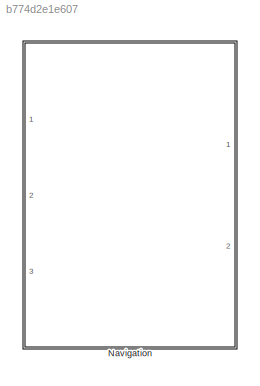
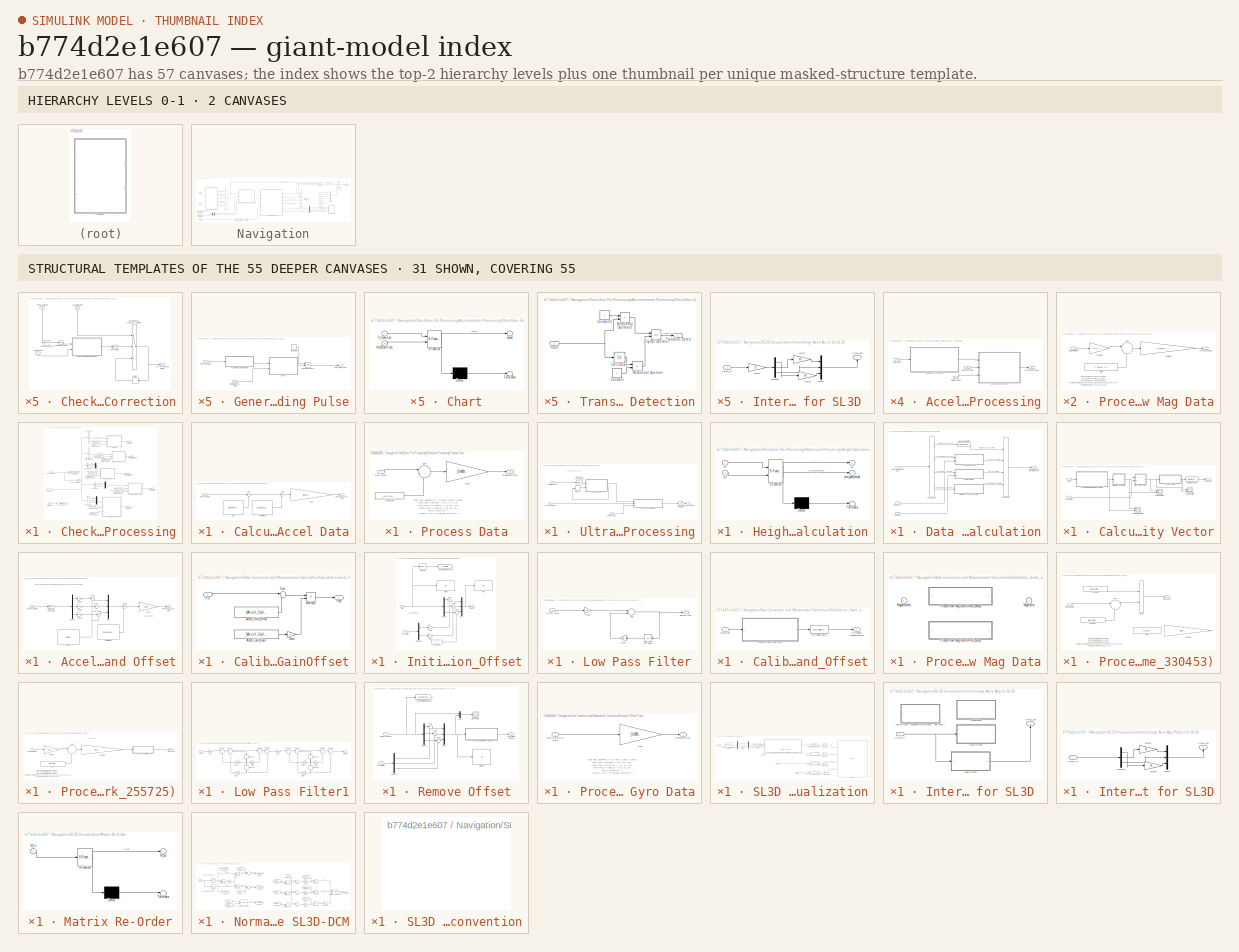
[diagram: thumbnail index - top-2 hierarchy levels (2 canvases) + 31 structural-template representatives of the remaining 55 canvases]
MODEL slx_b774d2e1e607
KIND library
BLOCK [SubSystem] Navigation
  Ports = [3, 2]
  RequestExecContextInheritance = off
BLOCK [BusCreator] Navigation/Bus Creator
  DisplayOption = bar
  Ports = [4, 1]
BLOCK [BusCreator] Navigation/Bus Creator1
  DisplayOption = bar
  Inputs = 5
  Ports = [5, 1]
BLOCK [BusCreator] Navigation/Bus Creator2
  DisplayOption = bar
  Inputs = 3
  Ports = [3, 1]
BLOCK [BusCreator] Navigation/Bus Creator3
  DisplayOption = bar
  Ports = [4, 1]
BLOCK [BusCreator] Navigation/Bus Creator4
  DisplayOption = bar
  Inputs = 2
  Ports = [2, 1]
BLOCK [Inport] Navigation/CheckSum
  IconDisplay = Port number
  Port = 2
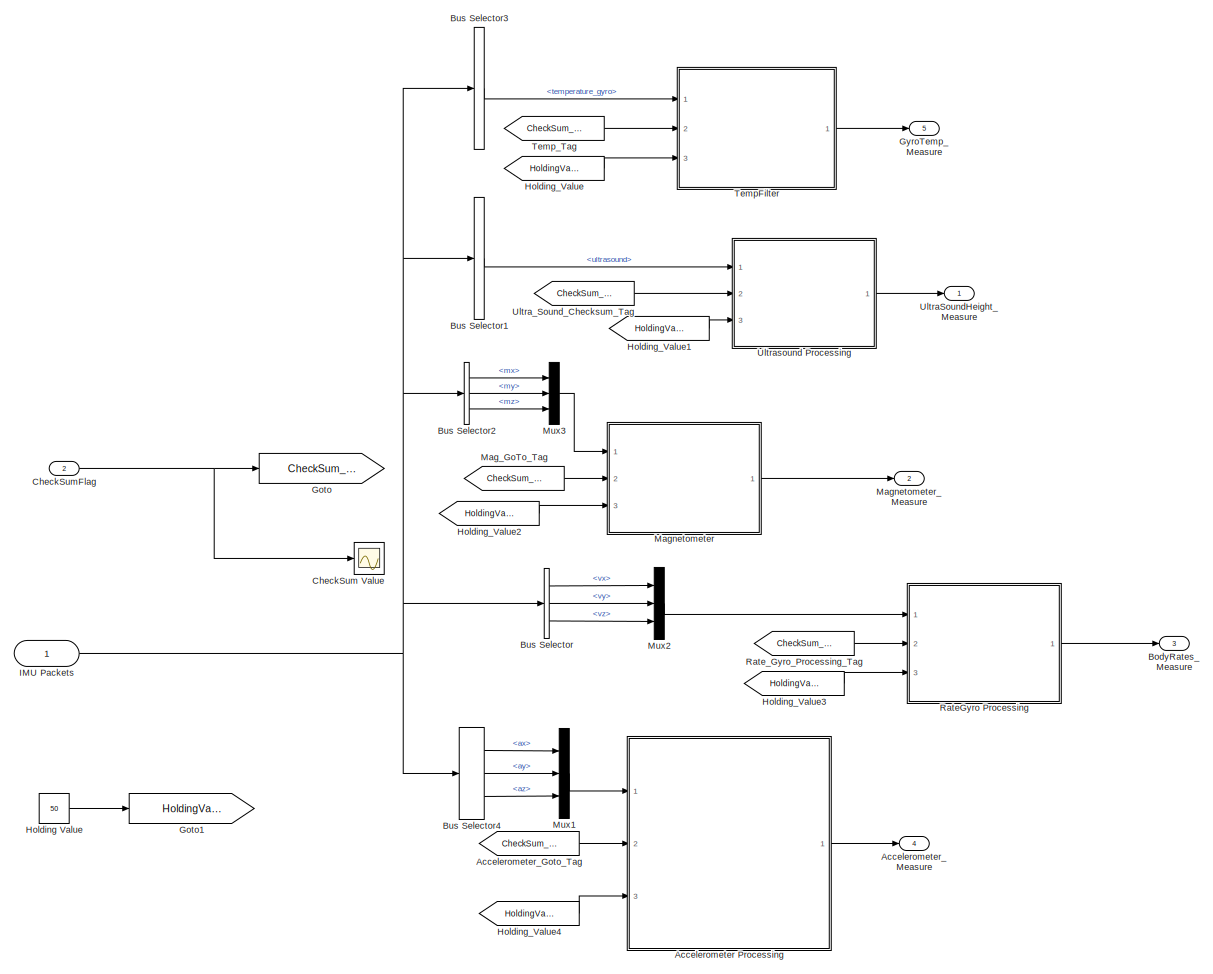
[diagram: Navigation/CheckSum Pre-Processing - part 1/1, most of the canvas]
BLOCK [SubSystem] Navigation/CheckSum Pre-Processing
  Ports = [2, 5]
  RTWSystemCode = Inline
  RequestExecContextInheritance = off
  TreatAsAtomicUnit = on
BLOCK [SubSystem] Navigation/CheckSum Pre-Processing/Accelerometer Processing
  Ports = [3, 1]
  RequestExecContextInheritance = off
BLOCK [SubSystem] Navigation/CheckSum Pre-Processing/Accelerometer Processing/Calculate Accel Data
  Commented = through
  Ports = [1, 1]
  RequestExecContextInheritance = off
BLOCK [Constant] Navigation/CheckSum Pre-Processing/Accelerometer Processing/Calculate Accel Data/Bias
  Value = [0 4096 4096]
BLOCK [Gain] Navigation/CheckSum Pre-Processing/Accelerometer Processing/Calculate Accel Data/Gain
  Gain = [0.001953125, 0.001953125, 0.001953125]
  OutDataTypeStr = Inherit: Inherit via internal rule
  ParamDataTypeStr = Inherit: Inherit via internal rule
  SaturateOnIntegerOverflow = off
BLOCK [Constant] Navigation/CheckSum Pre-Processing/Accelerometer Processing/Calculate Accel Data/Neutral Bias
  Value = [2048 2048 2048]
BLOCK [Outport] Navigation/CheckSum Pre-Processing/Accelerometer Processing/Calculate Accel Data/Processed Accel Data
  IconDisplay = Port number
BLOCK [Inport] Navigation/CheckSum Pre-Processing/Accelerometer Processing/Calculate Accel Data/Raw Accel Data
  IconDisplay = Port number
BLOCK [Sum] Navigation/CheckSum Pre-Processing/Accelerometer Processing/Calculate Accel Data/Sum
  IconShape = round
  InputSameDT = off
  Inputs = |-+
  OutDataTypeStr = Inherit: Inherit via internal rule
  Ports = [2, 1]
  SaturateOnIntegerOverflow = off
BLOCK [Sum] Navigation/CheckSum Pre-Processing/Accelerometer Processing/Calculate Accel Data/Sum1
  IconShape = round
  InputSameDT = off
  Inputs = |+-
  OutDataTypeStr = Inherit: Inherit via internal rule
  Ports = [2, 1]
  SaturateOnIntegerOverflow = off
BLOCK [SubSystem] Navigation/CheckSum Pre-Processing/Accelerometer Processing/CheckSum Correction
  Ports = [3, 1]
  RequestExecContextInheritance = off
BLOCK [Inport] Navigation/CheckSum Pre-Processing/Accelerometer Processing/CheckSum Correction/CalculatedData
  IconDisplay = Port number
BLOCK [Inport] Navigation/CheckSum Pre-Processing/Accelerometer Processing/CheckSum Correction/CheckSumFlag
  IconDisplay = Port number
  Port = 2
BLOCK [Reference] Navigation/CheckSum Pre-Processing/Accelerometer Processing/CheckSum Correction/Compare To Zero  REF=simulink/Logic and Bit
Operations/Compare
To Zero
  OutDataTypeStr = boolean
  Ports = [1, 1]
  SourceBlock = simulink/Logic and Bit\nOperations/Compare\nTo Zero
  SourceType = Compare To Zero
  ZeroCross = on
  relop = >
BLOCK [Delay] Navigation/CheckSum Pre-Processing/Accelerometer Processing/CheckSum Correction/Delay
  DelayLength = 3
  InitialCondition = 0
  InputPortMap = u0
  Ports = [1, 1]
BLOCK [SubSystem] Navigation/CheckSum Pre-Processing/Accelerometer Processing/CheckSum Correction/Generate Sample Holding Pulse
  Ports = [2, 1]
  RequestExecContextInheritance = off
BLOCK [SubSystem] Navigation/CheckSum Pre-Processing/Accelerometer Processing/CheckSum Correction/Generate Sample Holding Pulse/Chart
  ErrorFcn = Stateflow.Translate.translate
  PermitHierarchicalResolution = ExplicitOnly
  Ports = [2, 1]
  RequestExecContextInheritance = off
  SFBlockType = Chart
  TreatAsAtomicUnit = on
BLOCK [Demux] Navigation/CheckSum Pre-Processing/Accelerometer Processing/CheckSum Correction/Generate Sample Holding Pulse/Chart/ Demux 
  Outputs = 1
  Ports = [1, 1]
BLOCK [S-Function] Navigation/CheckSum Pre-Processing/Accelerometer Processing/CheckSum Correction/Generate Sample Holding Pulse/Chart/ SFunction 
  EnableBusSupport = off
  FunctionName = sf_sfun
  PortCounts = [2 2]
  Ports = [2, 2]
  Tag = Stateflow S-Function Navigation_KF_Lib 2
BLOCK [Terminator] Navigation/CheckSum Pre-Processing/Accelerometer Processing/CheckSum Correction/Generate Sample Holding Pulse/Chart/ Terminator 
BLOCK [Inport] Navigation/CheckSum Pre-Processing/Accelerometer Processing/CheckSum Correction/Generate Sample Holding Pulse/Chart/HoldDataTicks
  IconDisplay = Port number
  Port = 2
BLOCK [Inport] Navigation/CheckSum Pre-Processing/Accelerometer Processing/CheckSum Correction/Generate Sample Holding Pulse/Chart/if_transition
  IconDisplay = Port number
BLOCK [Outport] Navigation/CheckSum Pre-Processing/Accelerometer Processing/CheckSum Correction/Generate Sample Holding Pulse/Chart/output
  IconDisplay = Port number
BLOCK [Inport] Navigation/CheckSum Pre-Processing/Accelerometer Processing/CheckSum Correction/Generate Sample Holding Pulse/CheckSumFlag
  IconDisplay = Port number
BLOCK [Constant] Navigation/CheckSum Pre-Processing/Accelerometer Processing/CheckSum Correction/Generate Sample Holding Pulse/Constant2
BLOCK [Inport] Navigation/CheckSum Pre-Processing/Accelerometer Processing/CheckSum Correction/Generate Sample Holding Pulse/HoldDataTicks_Value
  IconDisplay = Port number
  Port = 2
BLOCK [Outport] Navigation/CheckSum Pre-Processing/Accelerometer Processing/CheckSum Correction/Generate Sample Holding Pulse/Hold_Data_Pulse
  IconDisplay = Port number
BLOCK [Logic] Navigation/CheckSum Pre-Processing/Accelerometer Processing/CheckSum Correction/Generate Sample Holding Pulse/Logical Operator1
  AllPortsSameDT = off
  OutDataTypeStr = boolean
  Ports = [2, 1]
BLOCK [SubSystem] Navigation/CheckSum Pre-Processing/Accelerometer Processing/CheckSum Correction/Generate Sample Holding Pulse/Transition Logic Detection
  Ports = [1, 1]
  RequestExecContextInheritance = off
BLOCK [Constant] Navigation/CheckSum Pre-Processing/Accelerometer Processing/CheckSum Correction/Generate Sample Holding Pulse/Transition Logic Detection/Constant
  Value = 0
BLOCK [Constant] Navigation/CheckSum Pre-Processing/Accelerometer Processing/CheckSum Correction/Generate Sample Holding Pulse/Transition Logic Detection/Constant1
BLOCK [Inport] Navigation/CheckSum Pre-Processing/Accelerometer Processing/CheckSum Correction/Generate Sample Holding Pulse/Transition Logic Detection/Input
  IconDisplay = Port number
BLOCK [Logic] Navigation/CheckSum Pre-Processing/Accelerometer Processing/CheckSum Correction/Generate Sample Holding Pulse/Transition Logic Detection/Logical Operator
  AllPortsSameDT = off
  OutDataTypeStr = boolean
  Ports = [2, 1]
BLOCK [RelationalOperator] Navigation/CheckSum Pre-Processing/Accelerometer Processing/CheckSum Correction/Generate Sample Holding Pulse/Transition Logic Detection/Relational Operator
  InputSameDT = off
  Operator = ==
  OutDataTypeStr = boolean
  Ports = [2, 1]
BLOCK [RelationalOperator] Navigation/CheckSum Pre-Processing/Accelerometer Processing/CheckSum Correction/Generate Sample Holding Pulse/Transition Logic Detection/Relational Operator1
  InputSameDT = off
  Operator = ==
  OutDataTypeStr = boolean
  Ports = [2, 1]
BLOCK [Outport] Navigation/CheckSum Pre-Processing/Accelerometer Processing/CheckSum Correction/Generate Sample Holding Pulse/Transition Logic Detection/Transition Detect
  IconDisplay = Port number
BLOCK [UnitDelay] Navigation/CheckSum Pre-Processing/Accelerometer Processing/CheckSum Correction/Generate Sample Holding Pulse/Transition Logic Detection/Unit Delay
  InputProcessing = Elements as channels (sample based)
  SampleTime = -1
BLOCK [Inport] Navigation/CheckSum Pre-Processing/Accelerometer Processing/CheckSum Correction/Holding Value
  IconDisplay = Port number
  Port = 3
BLOCK [Switch] Navigation/CheckSum Pre-Processing/Accelerometer Processing/CheckSum Correction/If True, we have good data, If false, we have bad data, With bad data, use previous good data from N samples ago and hold it on that value for M samples
  Criteria = u2 > Threshold
  InputSameDT = off
  SaturateOnIntegerOverflow = off
BLOCK [Logic] Navigation/CheckSum Pre-Processing/Accelerometer Processing/CheckSum Correction/Invert Logic
  AllPortsSameDT = off
  Operator = NOT
  OutDataTypeStr = boolean
  Ports = [1, 1]
BLOCK [Logic] Navigation/CheckSum Pre-Processing/Accelerometer Processing/CheckSum Correction/Logical Operator1
  AllPortsSameDT = off
  Operator = NOT
  OutDataTypeStr = boolean
  Ports = [1, 1]
BLOCK [Outport] Navigation/CheckSum Pre-Processing/Accelerometer Processing/CheckSum Correction/Pre-Processed Height
  IconDisplay = Port number
BLOCK [Inport] Navigation/CheckSum Pre-Processing/Accelerometer Processing/CheckSum Flag
  IconDisplay = Port number
  Port = 2
BLOCK [Inport] Navigation/CheckSum Pre-Processing/Accelerometer Processing/Holding Value
  IconDisplay = Port number
  Port = 3
BLOCK [Outport] Navigation/CheckSum Pre-Processing/Accelerometer Processing/Processed Data
  IconDisplay = Port number
BLOCK [Inport] Navigation/CheckSum Pre-Processing/Accelerometer Processing/Raw Data
  IconDisplay = Port number
BLOCK [From] Navigation/CheckSum Pre-Processing/Accelerometer_Goto_Tag
  GotoTag = CheckSum_Tag
BLOCK [Outport] Navigation/CheckSum Pre-Processing/Accelerometer_Measure
  IconDisplay = Port number
  Port = 4
BLOCK [Outport] Navigation/CheckSum Pre-Processing/BodyRates_Measure
  IconDisplay = Port number
  Port = 3
BLOCK [BusSelector] Navigation/CheckSum Pre-Processing/Bus Selector
  OutputSignals = vx,vy,vz
  Ports = [1, 3]
BLOCK [BusSelector] Navigation/CheckSum Pre-Processing/Bus Selector1
  OutputSignals = ultrasound
  Ports = [1, 1]
BLOCK [BusSelector] Navigation/CheckSum Pre-Processing/Bus Selector2
  OutputSignals = mx,my,mz
  Ports = [1, 3]
BLOCK [BusSelector] Navigation/CheckSum Pre-Processing/Bus Selector3
  OutputSignals = temperature_gyro
  Ports = [1, 1]
BLOCK [BusSelector] Navigation/CheckSum Pre-Processing/Bus Selector4
  OutputSignals = ax,ay,az
  Ports = [1, 3]
BLOCK [Scope] Navigation/CheckSum Pre-Processing/CheckSum Value
  Commented = on
  DataFormat = StructureWithTime
  Floating = off
  LimitDataPoints = off
  NumInputPorts = 1
  Ports = [1]
  SampleTime = 0
  SaveName = CheckSum
  SaveToWorkspace = on
  ShowLegends = off
  YMax = 2500
  YMin = 0
  ZoomMode = xonly
BLOCK [Inport] Navigation/CheckSum Pre-Processing/CheckSumFlag
  IconDisplay = Port number
  Port = 2
BLOCK [Goto] Navigation/CheckSum Pre-Processing/Goto
  GotoTag = CheckSum_Tag
  IconDisplay = Signal name
BLOCK [Goto] Navigation/CheckSum Pre-Processing/Goto1
  GotoTag = HoldingValue
  IconDisplay = Signal name
BLOCK [Outport] Navigation/CheckSum Pre-Processing/GyroTemp_Measure
  IconDisplay = Port number
  Port = 5
BLOCK [Constant] Navigation/CheckSum Pre-Processing/Holding Value
  Value = 50
BLOCK [From] Navigation/CheckSum Pre-Processing/Holding_Value
  GotoTag = HoldingValue
BLOCK [From] Navigation/CheckSum Pre-Processing/Holding_Value1
  GotoTag = HoldingValue
BLOCK [From] Navigation/CheckSum Pre-Processing/Holding_Value2
  GotoTag = HoldingValue
BLOCK [From] Navigation/CheckSum Pre-Processing/Holding_Value3
  GotoTag = HoldingValue
BLOCK [From] Navigation/CheckSum Pre-Processing/Holding_Value4
  GotoTag = HoldingValue
BLOCK [Inport] Navigation/CheckSum Pre-Processing/IMU Packets
  IconDisplay = Port number
BLOCK [From] Navigation/CheckSum Pre-Processing/Mag_GoTo_Tag
  GotoTag = CheckSum_Tag
BLOCK [SubSystem] Navigation/CheckSum Pre-Processing/Magnetometer
  Ports = [3, 1]
  RequestExecContextInheritance = off
BLOCK [SubSystem] Navigation/CheckSum Pre-Processing/Magnetometer/CheckSum Correction
  Ports = [3, 1]
  RequestExecContextInheritance = off
BLOCK [Inport] Navigation/CheckSum Pre-Processing/Magnetometer/CheckSum Correction/CalculatedData
  IconDisplay = Port number
BLOCK [Inport] Navigation/CheckSum Pre-Processing/Magnetometer/CheckSum Correction/CheckSumFlag
  IconDisplay = Port number
  Port = 2
BLOCK [Reference] Navigation/CheckSum Pre-Processing/Magnetometer/CheckSum Correction/Compare To Zero  REF=simulink/Logic and Bit
Operations/Compare
To Zero
  OutDataTypeStr = boolean
  Ports = [1, 1]
  SourceBlock = simulink/Logic and Bit\nOperations/Compare\nTo Zero
  SourceType = Compare To Zero
  ZeroCross = on
  relop = >
BLOCK [Delay] Navigation/CheckSum Pre-Processing/Magnetometer/CheckSum Correction/Delay
  DelayLength = 3
  InitialCondition = 0
  InputPortMap = u0
  Ports = [1, 1]
BLOCK [SubSystem] Navigation/CheckSum Pre-Processing/Magnetometer/CheckSum Correction/Generate Sample Holding Pulse
  Ports = [2, 1]
  RequestExecContextInheritance = off
BLOCK [SubSystem] Navigation/CheckSum Pre-Processing/Magnetometer/CheckSum Correction/Generate Sample Holding Pulse/Chart
  ErrorFcn = Stateflow.Translate.translate
  PermitHierarchicalResolution = ExplicitOnly
  Ports = [2, 1]
  RequestExecContextInheritance = off
  SFBlockType = Chart
  TreatAsAtomicUnit = on
BLOCK [Demux] Navigation/CheckSum Pre-Processing/Magnetometer/CheckSum Correction/Generate Sample Holding Pulse/Chart/ Demux 
  Outputs = 1
  Ports = [1, 1]
BLOCK [S-Function] Navigation/CheckSum Pre-Processing/Magnetometer/CheckSum Correction/Generate Sample Holding Pulse/Chart/ SFunction 
  EnableBusSupport = off
  FunctionName = sf_sfun
  PortCounts = [2 2]
  Ports = [2, 2]
  Tag = Stateflow S-Function Navigation_KF_Lib 5
BLOCK [Terminator] Navigation/CheckSum Pre-Processing/Magnetometer/CheckSum Correction/Generate Sample Holding Pulse/Chart/ Terminator 
BLOCK [Inport] Navigation/CheckSum Pre-Processing/Magnetometer/CheckSum Correction/Generate Sample Holding Pulse/Chart/HoldDataTicks
  IconDisplay = Port number
  Port = 2
BLOCK [Inport] Navigation/CheckSum Pre-Processing/Magnetometer/CheckSum Correction/Generate Sample Holding Pulse/Chart/if_transition
  IconDisplay = Port number
BLOCK [Outport] Navigation/CheckSum Pre-Processing/Magnetometer/CheckSum Correction/Generate Sample Holding Pulse/Chart/output
  IconDisplay = Port number
BLOCK [Inport] Navigation/CheckSum Pre-Processing/Magnetometer/CheckSum Correction/Generate Sample Holding Pulse/CheckSumFlag
  IconDisplay = Port number
BLOCK [Constant] Navigation/CheckSum Pre-Processing/Magnetometer/CheckSum Correction/Generate Sample Holding Pulse/Constant2
BLOCK [Inport] Navigation/CheckSum Pre-Processing/Magnetometer/CheckSum Correction/Generate Sample Holding Pulse/HoldDataTicks_Value
  IconDisplay = Port number
  Port = 2
BLOCK [Outport] Navigation/CheckSum Pre-Processing/Magnetometer/CheckSum Correction/Generate Sample Holding Pulse/Hold_Data_Pulse
  IconDisplay = Port number
BLOCK [Logic] Navigation/CheckSum Pre-Processing/Magnetometer/CheckSum Correction/Generate Sample Holding Pulse/Logical Operator1
  AllPortsSameDT = off
  OutDataTypeStr = boolean
  Ports = [2, 1]
BLOCK [SubSystem] Navigation/CheckSum Pre-Processing/Magnetometer/CheckSum Correction/Generate Sample Holding Pulse/Transition Logic Detection
  Ports = [1, 1]
  RequestExecContextInheritance = off
BLOCK [Constant] Navigation/CheckSum Pre-Processing/Magnetometer/CheckSum Correction/Generate Sample Holding Pulse/Transition Logic Detection/Constant
  Value = 0
BLOCK [Constant] Navigation/CheckSum Pre-Processing/Magnetometer/CheckSum Correction/Generate Sample Holding Pulse/Transition Logic Detection/Constant1
BLOCK [Inport] Navigation/CheckSum Pre-Processing/Magnetometer/CheckSum Correction/Generate Sample Holding Pulse/Transition Logic Detection/Input
  IconDisplay = Port number
BLOCK [Logic] Navigation/CheckSum Pre-Processing/Magnetometer/CheckSum Correction/Generate Sample Holding Pulse/Transition Logic Detection/Logical Operator
  AllPortsSameDT = off
  OutDataTypeStr = boolean
  Ports = [2, 1]
BLOCK [RelationalOperator] Navigation/CheckSum Pre-Processing/Magnetometer/CheckSum Correction/Generate Sample Holding Pulse/Transition Logic Detection/Relational Operator
  InputSameDT = off
  Operator = ==
  OutDataTypeStr = boolean
  Ports = [2, 1]
BLOCK [RelationalOperator] Navigation/CheckSum Pre-Processing/Magnetometer/CheckSum Correction/Generate Sample Holding Pulse/Transition Logic Detection/Relational Operator1
  InputSameDT = off
  Operator = ==
  OutDataTypeStr = boolean
  Ports = [2, 1]
BLOCK [Outport] Navigation/CheckSum Pre-Processing/Magnetometer/CheckSum Correction/Generate Sample Holding Pulse/Transition Logic Detection/Transition Detect
  IconDisplay = Port number
BLOCK [UnitDelay] Navigation/CheckSum Pre-Processing/Magnetometer/CheckSum Correction/Generate Sample Holding Pulse/Transition Logic Detection/Unit Delay
  InputProcessing = Elements as channels (sample based)
  SampleTime = -1
BLOCK [Inport] Navigation/CheckSum Pre-Processing/Magnetometer/CheckSum Correction/Holding Value
  IconDisplay = Port number
  Port = 3
BLOCK [Switch] Navigation/CheckSum Pre-Processing/Magnetometer/CheckSum Correction/If True, we have good data, If false, we have bad data, With bad data, use previous good data from N samples ago and hold it on that value for M samples
  Criteria = u2 > Threshold
  InputSameDT = off
  SaturateOnIntegerOverflow = off
BLOCK [Logic] Navigation/CheckSum Pre-Processing/Magnetometer/CheckSum Correction/Invert Logic
  AllPortsSameDT = off
  Operator = NOT
  OutDataTypeStr = boolean
  Ports = [1, 1]
BLOCK [Logic] Navigation/CheckSum Pre-Processing/Magnetometer/CheckSum Correction/Logical Operator1
  AllPortsSameDT = off
  Operator = NOT
  OutDataTypeStr = boolean
  Ports = [1, 1]
BLOCK [Outport] Navigation/CheckSum Pre-Processing/Magnetometer/CheckSum Correction/Pre-Processed Data
  IconDisplay = Port number
BLOCK [Inport] Navigation/CheckSum Pre-Processing/Magnetometer/CheckSum Flag
  IconDisplay = Port number
  Port = 2
BLOCK [Inport] Navigation/CheckSum Pre-Processing/Magnetometer/Holding Value
  IconDisplay = Port number
  Port = 3
BLOCK [Inport] Navigation/CheckSum Pre-Processing/Magnetometer/Magnetometer
  IconDisplay = Port number
BLOCK [SubSystem] Navigation/CheckSum Pre-Processing/Magnetometer/Process Raw Mag Data
  Commented = through
  Ports = [1, 1]
  RequestExecContextInheritance = off
BLOCK [Constant] Navigation/CheckSum Pre-Processing/Magnetometer/Process Raw Mag Data/Bias
  Value = [ 118.0, -65.0, 110.0 ]
BLOCK [Inport] Navigation/CheckSum Pre-Processing/Magnetometer/Process Raw Mag Data/Magnetometer
  IconDisplay = Port number
BLOCK [Outport] Navigation/CheckSum Pre-Processing/Magnetometer/Process Raw Mag Data/ProcessedData
  IconDisplay = Port number
BLOCK [Sum] Navigation/CheckSum Pre-Processing/Magnetometer/Process Raw Mag Data/Sum
  IconShape = round
  InputSameDT = off
  Inputs = |+-
  OutDataTypeStr = Inherit: Inherit via internal rule
  Ports = [2, 1]
  SaturateOnIntegerOverflow = off
BLOCK [Gain] Navigation/CheckSum Pre-Processing/Magnetometer/Process Raw Mag Data/postGain
  Gain = [0.0071492608, 0.0070882491, 0.0074057781]
  OutDataTypeStr = Inherit: Inherit via internal rule
  ParamDataTypeStr = Inherit: Inherit via internal rule
  SaturateOnIntegerOverflow = off
BLOCK [Gain] Navigation/CheckSum Pre-Processing/Magnetometer/Process Raw Mag Data/preGain
  Gain = [-1 1 -1]
  OutDataTypeStr = Inherit: Inherit via internal rule
  ParamDataTypeStr = Inherit: Inherit via internal rule
  SaturateOnIntegerOverflow = off
BLOCK [Outport] Navigation/CheckSum Pre-Processing/Magnetometer/Processed Data
  IconDisplay = Port number
BLOCK [Outport] Navigation/CheckSum Pre-Processing/Magnetometer_Measure
  IconDisplay = Port number
  Port = 2
BLOCK [Mux] Navigation/CheckSum Pre-Processing/Mux1
  DisplayOption = bar
  Inputs = 3
  Ports = [3, 1]
BLOCK [Mux] Navigation/CheckSum Pre-Processing/Mux2
  DisplayOption = bar
  Inputs = 3
  Ports = [3, 1]
BLOCK [Mux] Navigation/CheckSum Pre-Processing/Mux3
  DisplayOption = bar
  Inputs = 3
  Ports = [3, 1]
BLOCK [SubSystem] Navigation/CheckSum Pre-Processing/RateGyro Processing
  Ports = [3, 1]
  RequestExecContextInheritance = off
BLOCK [SubSystem] Navigation/CheckSum Pre-Processing/RateGyro Processing/CheckSum Correction
  Ports = [3, 1]
  RequestExecContextInheritance = off
BLOCK [Inport] Navigation/CheckSum Pre-Processing/RateGyro Processing/CheckSum Correction/CalculatedData
  IconDisplay = Port number
BLOCK [Inport] Navigation/CheckSum Pre-Processing/RateGyro Processing/CheckSum Correction/CheckSumFlag
  IconDisplay = Port number
  Port = 2
BLOCK [Reference] Navigation/CheckSum Pre-Processing/RateGyro Processing/CheckSum Correction/Compare To Zero  REF=simulink/Logic and Bit
Operations/Compare
To Zero
  OutDataTypeStr = boolean
  Ports = [1, 1]
  SourceBlock = simulink/Logic and Bit\nOperations/Compare\nTo Zero
  SourceType = Compare To Zero
  ZeroCross = on
  relop = >
BLOCK [Delay] Navigation/CheckSum Pre-Processing/RateGyro Processing/CheckSum Correction/Delay
  DelayLength = 3
  InitialCondition = 0
  InputPortMap = u0
  Ports = [1, 1]
BLOCK [SubSystem] Navigation/CheckSum Pre-Processing/RateGyro Processing/CheckSum Correction/Generate Sample Holding Pulse
  Ports = [2, 1]
  RequestExecContextInheritance = off
BLOCK [SubSystem] Navigation/CheckSum Pre-Processing/RateGyro Processing/CheckSum Correction/Generate Sample Holding Pulse/Chart
  ErrorFcn = Stateflow.Translate.translate
  PermitHierarchicalResolution = ExplicitOnly
  Ports = [2, 1]
  RequestExecContextInheritance = off
  SFBlockType = Chart
  TreatAsAtomicUnit = on
BLOCK [Demux] Navigation/CheckSum Pre-Processing/RateGyro Processing/CheckSum Correction/Generate Sample Holding Pulse/Chart/ Demux 
  Outputs = 1
  Ports = [1, 1]
BLOCK [S-Function] Navigation/CheckSum Pre-Processing/RateGyro Processing/CheckSum Correction/Generate Sample Holding Pulse/Chart/ SFunction 
  EnableBusSupport = off
  FunctionName = sf_sfun
  PortCounts = [2 2]
  Ports = [2, 2]
  Tag = Stateflow S-Function Navigation_KF_Lib 3
BLOCK [Terminator] Navigation/CheckSum Pre-Processing/RateGyro Processing/CheckSum Correction/Generate Sample Holding Pulse/Chart/ Terminator 
BLOCK [Inport] Navigation/CheckSum Pre-Processing/RateGyro Processing/CheckSum Correction/Generate Sample Holding Pulse/Chart/HoldDataTicks
  IconDisplay = Port number
  Port = 2
BLOCK [Inport] Navigation/CheckSum Pre-Processing/RateGyro Processing/CheckSum Correction/Generate Sample Holding Pulse/Chart/if_transition
  IconDisplay = Port number
BLOCK [Outport] Navigation/CheckSum Pre-Processing/RateGyro Processing/CheckSum Correction/Generate Sample Holding Pulse/Chart/output
  IconDisplay = Port number
BLOCK [Inport] Navigation/CheckSum Pre-Processing/RateGyro Processing/CheckSum Correction/Generate Sample Holding Pulse/CheckSumFlag
  IconDisplay = Port number
BLOCK [Constant] Navigation/CheckSum Pre-Processing/RateGyro Processing/CheckSum Correction/Generate Sample Holding Pulse/Constant2
BLOCK [Inport] Navigation/CheckSum Pre-Processing/RateGyro Processing/CheckSum Correction/Generate Sample Holding Pulse/HoldDataTicks_Value
  IconDisplay = Port number
  Port = 2
BLOCK [Outport] Navigation/CheckSum Pre-Processing/RateGyro Processing/CheckSum Correction/Generate Sample Holding Pulse/Hold_Data_Pulse
  IconDisplay = Port number
BLOCK [Logic] Navigation/CheckSum Pre-Processing/RateGyro Processing/CheckSum Correction/Generate Sample Holding Pulse/Logical Operator1
  AllPortsSameDT = off
  OutDataTypeStr = boolean
  Ports = [2, 1]
BLOCK [SubSystem] Navigation/CheckSum Pre-Processing/RateGyro Processing/CheckSum Correction/Generate Sample Holding Pulse/Transition Logic Detection
  Ports = [1, 1]
  RequestExecContextInheritance = off
BLOCK [Constant] Navigation/CheckSum Pre-Processing/RateGyro Processing/CheckSum Correction/Generate Sample Holding Pulse/Transition Logic Detection/Constant
  Value = 0
BLOCK [Constant] Navigation/CheckSum Pre-Processing/RateGyro Processing/CheckSum Correction/Generate Sample Holding Pulse/Transition Logic Detection/Constant1
BLOCK [Inport] Navigation/CheckSum Pre-Processing/RateGyro Processing/CheckSum Correction/Generate Sample Holding Pulse/Transition Logic Detection/Input
  IconDisplay = Port number
BLOCK [Logic] Navigation/CheckSum Pre-Processing/RateGyro Processing/CheckSum Correction/Generate Sample Holding Pulse/Transition Logic Detection/Logical Operator
  AllPortsSameDT = off
  OutDataTypeStr = boolean
  Ports = [2, 1]
BLOCK [RelationalOperator] Navigation/CheckSum Pre-Processing/RateGyro Processing/CheckSum Correction/Generate Sample Holding Pulse/Transition Logic Detection/Relational Operator
  InputSameDT = off
  Operator = ==
  OutDataTypeStr = boolean
  Ports = [2, 1]
BLOCK [RelationalOperator] Navigation/CheckSum Pre-Processing/RateGyro Processing/CheckSum Correction/Generate Sample Holding Pulse/Transition Logic Detection/Relational Operator1
  InputSameDT = off
  Operator = ==
  OutDataTypeStr = boolean
  Ports = [2, 1]
BLOCK [Outport] Navigation/CheckSum Pre-Processing/RateGyro Processing/CheckSum Correction/Generate Sample Holding Pulse/Transition Logic Detection/Transition Detect
  IconDisplay = Port number
BLOCK [UnitDelay] Navigation/CheckSum Pre-Processing/RateGyro Processing/CheckSum Correction/Generate Sample Holding Pulse/Transition Logic Detection/Unit Delay
  InputProcessing = Elements as channels (sample based)
  SampleTime = -1
BLOCK [Inport] Navigation/CheckSum Pre-Processing/RateGyro Processing/CheckSum Correction/Holding Value
  IconDisplay = Port number
  Port = 3
BLOCK [Switch] Navigation/CheckSum Pre-Processing/RateGyro Processing/CheckSum Correction/If True, we have good data, If false, we have bad data, With bad data, use previous good data from N samples ago and hold it on that value for M samples
  Criteria = u2 > Threshold
  InputSameDT = off
  SaturateOnIntegerOverflow = off
BLOCK [Logic] Navigation/CheckSum Pre-Processing/RateGyro Processing/CheckSum Correction/Invert Logic
  AllPortsSameDT = off
  Operator = NOT
  OutDataTypeStr = boolean
  Ports = [1, 1]
BLOCK [Logic] Navigation/CheckSum Pre-Processing/RateGyro Processing/CheckSum Correction/Logical Operator1
  AllPortsSameDT = off
  Operator = NOT
  OutDataTypeStr = boolean
  Ports = [1, 1]
BLOCK [Outport] Navigation/CheckSum Pre-Processing/RateGyro Processing/CheckSum Correction/Pre-Processed Height
  IconDisplay = Port number
BLOCK [Inport] Navigation/CheckSum Pre-Processing/RateGyro Processing/CheckSum Flag
  IconDisplay = Port number
  Port = 2
BLOCK [Inport] Navigation/CheckSum Pre-Processing/RateGyro Processing/Holding Value
  IconDisplay = Port number
  Port = 3
BLOCK [SubSystem] Navigation/CheckSum Pre-Processing/RateGyro Processing/Process Data
  Commented = through
  Ports = [1, 1]
  RequestExecContextInheritance = off
BLOCK [Constant] Navigation/CheckSum Pre-Processing/RateGyro Processing/Process Data/Constant
  Value = [0.0, 0.0, 0.0]
BLOCK [Gain] Navigation/CheckSum Pre-Processing/RateGyro Processing/Process Data/Gain
  Gain = [0.0609, 0.0609, 0.0609]
  OutDataTypeStr = Inherit: Inherit via internal rule
  ParamDataTypeStr = Inherit: Inherit via internal rule
  SaturateOnIntegerOverflow = off
BLOCK [Outport] Navigation/CheckSum Pre-Processing/RateGyro Processing/Process Data/Processed Data
  IconDisplay = Port number
BLOCK [Inport] Navigation/CheckSum Pre-Processing/RateGyro Processing/Process Data/Raw Data
  IconDisplay = Port number
BLOCK [Sum] Navigation/CheckSum Pre-Processing/RateGyro Processing/Process Data/Sum
  IconShape = round
  InputSameDT = off
  Inputs = |++
  OutDataTypeStr = Inherit: Inherit via internal rule
  Ports = [2, 1]
  SaturateOnIntegerOverflow = off
BLOCK [Outport] Navigation/CheckSum Pre-Processing/RateGyro Processing/Processed Data
  IconDisplay = Port number
BLOCK [Inport] Navigation/CheckSum Pre-Processing/RateGyro Processing/Raw Data
  IconDisplay = Port number
BLOCK [From] Navigation/CheckSum Pre-Processing/Rate_Gyro_Processing_Tag
  GotoTag = CheckSum_Tag
BLOCK [SubSystem] Navigation/CheckSum Pre-Processing/TempFilter
  Ports = [3, 1]
  RequestExecContextInheritance = off
BLOCK [SubSystem] Navigation/CheckSum Pre-Processing/TempFilter/CheckSum Correction
  Ports = [3, 1]
  RequestExecContextInheritance = off
BLOCK [Inport] Navigation/CheckSum Pre-Processing/TempFilter/CheckSum Correction/CalculatedData
  IconDisplay = Port number
BLOCK [Inport] Navigation/CheckSum Pre-Processing/TempFilter/CheckSum Correction/CheckSumFlag
  IconDisplay = Port number
  Port = 2
BLOCK [Reference] Navigation/CheckSum Pre-Processing/TempFilter/CheckSum Correction/Compare To Zero  REF=simulink/Logic and Bit
Operations/Compare
To Zero
  OutDataTypeStr = boolean
  Ports = [1, 1]
  SourceBlock = simulink/Logic and Bit\nOperations/Compare\nTo Zero
  SourceType = Compare To Zero
  ZeroCross = on
  relop = >
BLOCK [Delay] Navigation/CheckSum Pre-Processing/TempFilter/CheckSum Correction/Delay
  DelayLength = 3
  InitialCondition = 0
  InputPortMap = u0
  Ports = [1, 1]
BLOCK [SubSystem] Navigation/CheckSum Pre-Processing/TempFilter/CheckSum Correction/Generate Sample Holding Pulse
  Ports = [2, 1]
  RequestExecContextInheritance = off
BLOCK [SubSystem] Navigation/CheckSum Pre-Processing/TempFilter/CheckSum Correction/Generate Sample Holding Pulse/Chart
  ErrorFcn = Stateflow.Translate.translate
  PermitHierarchicalResolution = ExplicitOnly
  Ports = [2, 1]
  RequestExecContextInheritance = off
  SFBlockType = Chart
  TreatAsAtomicUnit = on
BLOCK [Demux] Navigation/CheckSum Pre-Processing/TempFilter/CheckSum Correction/Generate Sample Holding Pulse/Chart/ Demux 
  Outputs = 1
  Ports = [1, 1]
BLOCK [S-Function] Navigation/CheckSum Pre-Processing/TempFilter/CheckSum Correction/Generate Sample Holding Pulse/Chart/ SFunction 
  EnableBusSupport = off
  FunctionName = sf_sfun
  PortCounts = [2 2]
  Ports = [2, 2]
  Tag = Stateflow S-Function Navigation_KF_Lib 7
BLOCK [Terminator] Navigation/CheckSum Pre-Processing/TempFilter/CheckSum Correction/Generate Sample Holding Pulse/Chart/ Terminator 
BLOCK [Inport] Navigation/CheckSum Pre-Processing/TempFilter/CheckSum Correction/Generate Sample Holding Pulse/Chart/HoldDataTicks
  IconDisplay = Port number
  Port = 2
BLOCK [Inport] Navigation/CheckSum Pre-Processing/TempFilter/CheckSum Correction/Generate Sample Holding Pulse/Chart/if_transition
  IconDisplay = Port number
BLOCK [Outport] Navigation/CheckSum Pre-Processing/TempFilter/CheckSum Correction/Generate Sample Holding Pulse/Chart/output
  IconDisplay = Port number
BLOCK [Inport] Navigation/CheckSum Pre-Processing/TempFilter/CheckSum Correction/Generate Sample Holding Pulse/CheckSumFlag
  IconDisplay = Port number
BLOCK [Constant] Navigation/CheckSum Pre-Processing/TempFilter/CheckSum Correction/Generate Sample Holding Pulse/Constant2
BLOCK [Inport] Navigation/CheckSum Pre-Processing/TempFilter/CheckSum Correction/Generate Sample Holding Pulse/HoldDataTicks_Value
  IconDisplay = Port number
  Port = 2
BLOCK [Outport] Navigation/CheckSum Pre-Processing/TempFilter/CheckSum Correction/Generate Sample Holding Pulse/Hold_Data_Pulse
  IconDisplay = Port number
BLOCK [Logic] Navigation/CheckSum Pre-Processing/TempFilter/CheckSum Correction/Generate Sample Holding Pulse/Logical Operator1
  AllPortsSameDT = off
  OutDataTypeStr = boolean
  Ports = [2, 1]
BLOCK [SubSystem] Navigation/CheckSum Pre-Processing/TempFilter/CheckSum Correction/Generate Sample Holding Pulse/Transition Logic Detection
  Ports = [1, 1]
  RequestExecContextInheritance = off
BLOCK [Constant] Navigation/CheckSum Pre-Processing/TempFilter/CheckSum Correction/Generate Sample Holding Pulse/Transition Logic Detection/Constant
  Value = 0
BLOCK [Constant] Navigation/CheckSum Pre-Processing/TempFilter/CheckSum Correction/Generate Sample Holding Pulse/Transition Logic Detection/Constant1
BLOCK [Inport] Navigation/CheckSum Pre-Processing/TempFilter/CheckSum Correction/Generate Sample Holding Pulse/Transition Logic Detection/Input
  IconDisplay = Port number
BLOCK [Logic] Navigation/CheckSum Pre-Processing/TempFilter/CheckSum Correction/Generate Sample Holding Pulse/Transition Logic Detection/Logical Operator
  AllPortsSameDT = off
  OutDataTypeStr = boolean
  Ports = [2, 1]
BLOCK [RelationalOperator] Navigation/CheckSum Pre-Processing/TempFilter/CheckSum Correction/Generate Sample Holding Pulse/Transition Logic Detection/Relational Operator
  InputSameDT = off
  Operator = ==
  OutDataTypeStr = boolean
  Ports = [2, 1]
BLOCK [RelationalOperator] Navigation/CheckSum Pre-Processing/TempFilter/CheckSum Correction/Generate Sample Holding Pulse/Transition Logic Detection/Relational Operator1
  InputSameDT = off
  Operator = ==
  OutDataTypeStr = boolean
  Ports = [2, 1]
BLOCK [Outport] Navigation/CheckSum Pre-Processing/TempFilter/CheckSum Correction/Generate Sample Holding Pulse/Transition Logic Detection/Transition Detect
  IconDisplay = Port number
BLOCK [UnitDelay] Navigation/CheckSum Pre-Processing/TempFilter/CheckSum Correction/Generate Sample Holding Pulse/Transition Logic Detection/Unit Delay
  InputProcessing = Elements as channels (sample based)
  SampleTime = -1
BLOCK [Inport] Navigation/CheckSum Pre-Processing/TempFilter/CheckSum Correction/Holding Value
  IconDisplay = Port number
  Port = 3
BLOCK [Switch] Navigation/CheckSum Pre-Processing/TempFilter/CheckSum Correction/If True, we have good data, If false, we have bad data, With bad data, use previous good data from N samples ago and hold it on that value for M samples
  Criteria = u2 > Threshold
  InputSameDT = off
  SaturateOnIntegerOverflow = off
BLOCK [Logic] Navigation/CheckSum Pre-Processing/TempFilter/CheckSum Correction/Invert Logic
  AllPortsSameDT = off
  Operator = NOT
  OutDataTypeStr = boolean
  Ports = [1, 1]
BLOCK [Logic] Navigation/CheckSum Pre-Processing/TempFilter/CheckSum Correction/Logical Operator1
  AllPortsSameDT = off
  Operator = NOT
  OutDataTypeStr = boolean
  Ports = [1, 1]
BLOCK [Outport] Navigation/CheckSum Pre-Processing/TempFilter/CheckSum Correction/Pre-Processed Data
  IconDisplay = Port number
BLOCK [Inport] Navigation/CheckSum Pre-Processing/TempFilter/CheckSum Flag
  IconDisplay = Port number
  Port = 2
BLOCK [Inport] Navigation/CheckSum Pre-Processing/TempFilter/HoldingValue
  IconDisplay = Port number
  Port = 3
BLOCK [Inport] Navigation/CheckSum Pre-Processing/TempFilter/Magnetometer
  IconDisplay = Port number
BLOCK [SubSystem] Navigation/CheckSum Pre-Processing/TempFilter/Process Raw Mag Data
  Commented = through
  Ports = [1, 1]
  RequestExecContextInheritance = off
BLOCK [Constant] Navigation/CheckSum Pre-Processing/TempFilter/Process Raw Mag Data/Bias
  Value = [ 118.0, -65.0, 110.0 ]
BLOCK [Inport] Navigation/CheckSum Pre-Processing/TempFilter/Process Raw Mag Data/Magnetometer
  IconDisplay = Port number
BLOCK [Outport] Navigation/CheckSum Pre-Processing/TempFilter/Process Raw Mag Data/ProcessedData
  IconDisplay = Port number
BLOCK [Sum] Navigation/CheckSum Pre-Processing/TempFilter/Process Raw Mag Data/Sum
  IconShape = round
  InputSameDT = off
  Inputs = |+-
  OutDataTypeStr = Inherit: Inherit via internal rule
  Ports = [2, 1]
  SaturateOnIntegerOverflow = off
BLOCK [Gain] Navigation/CheckSum Pre-Processing/TempFilter/Process Raw Mag Data/postGain
  Gain = [0.0071492608, 0.0070882491, 0.0074057781]
  OutDataTypeStr = Inherit: Inherit via internal rule
  ParamDataTypeStr = Inherit: Inherit via internal rule
  SaturateOnIntegerOverflow = off
BLOCK [Gain] Navigation/CheckSum Pre-Processing/TempFilter/Process Raw Mag Data/preGain
  Gain = [-1 1 -1]
  OutDataTypeStr = Inherit: Inherit via internal rule
  ParamDataTypeStr = Inherit: Inherit via internal rule
  SaturateOnIntegerOverflow = off
BLOCK [Outport] Navigation/CheckSum Pre-Processing/TempFilter/Processed Data
  IconDisplay = Port number
BLOCK [From] Navigation/CheckSum Pre-Processing/Temp_Tag
  GotoTag = CheckSum_Tag
BLOCK [Outport] Navigation/CheckSum Pre-Processing/UltraSoundHeight_Measure
  IconDisplay = Port number
BLOCK [From] Navigation/CheckSum Pre-Processing/Ultra_Sound_Checksum_Tag
  GotoTag = CheckSum_Tag
BLOCK [SubSystem] Navigation/CheckSum Pre-Processing/Ultrasound Processing
  Ports = [3, 1]
  RequestExecContextInheritance = off
BLOCK [SubSystem] Navigation/CheckSum Pre-Processing/Ultrasound Processing/CheckSum Correction
  Ports = [3, 1]
  RequestExecContextInheritance = off
BLOCK [Inport] Navigation/CheckSum Pre-Processing/Ultrasound Processing/CheckSum Correction/CalculatedData
  IconDisplay = Port number
BLOCK [Inport] Navigation/CheckSum Pre-Processing/Ultrasound Processing/CheckSum Correction/CheckSumFlag
  IconDisplay = Port number
  Port = 2
BLOCK [Reference] Navigation/CheckSum Pre-Processing/Ultrasound Processing/CheckSum Correction/Compare To Zero  REF=simulink/Logic and Bit
Operations/Compare
To Zero
  OutDataTypeStr = boolean
  Ports = [1, 1]
  SourceBlock = simulink/Logic and Bit\nOperations/Compare\nTo Zero
  SourceType = Compare To Zero
  ZeroCross = on
  relop = >
BLOCK [Delay] Navigation/CheckSum Pre-Processing/Ultrasound Processing/CheckSum Correction/Delay
  DelayLength = 3
  InitialCondition = 0
  InputPortMap = u0
  Ports = [1, 1]
BLOCK [SubSystem] Navigation/CheckSum Pre-Processing/Ultrasound Processing/CheckSum Correction/Generate Sample Holding Pulse
  Ports = [2, 1]
  RequestExecContextInheritance = off
BLOCK [SubSystem] Navigation/CheckSum Pre-Processing/Ultrasound Processing/CheckSum Correction/Generate Sample Holding Pulse/Chart
  ErrorFcn = Stateflow.Translate.translate
  PermitHierarchicalResolution = ExplicitOnly
  Ports = [2, 1]
  RequestExecContextInheritance = off
  SFBlockType = Chart
  TreatAsAtomicUnit = on
BLOCK [Demux] Navigation/CheckSum Pre-Processing/Ultrasound Processing/CheckSum Correction/Generate Sample Holding Pulse/Chart/ Demux 
  Outputs = 1
  Ports = [1, 1]
BLOCK [S-Function] Navigation/CheckSum Pre-Processing/Ultrasound Processing/CheckSum Correction/Generate Sample Holding Pulse/Chart/ SFunction 
  EnableBusSupport = off
  FunctionName = sf_sfun
  PortCounts = [2 2]
  Ports = [2, 2]
  Tag = Stateflow S-Function Navigation_KF_Lib 6
BLOCK [Terminator] Navigation/CheckSum Pre-Processing/Ultrasound Processing/CheckSum Correction/Generate Sample Holding Pulse/Chart/ Terminator 
BLOCK [Inport] Navigation/CheckSum Pre-Processing/Ultrasound Processing/CheckSum Correction/Generate Sample Holding Pulse/Chart/HoldDataTicks
  IconDisplay = Port number
  Port = 2
BLOCK [Inport] Navigation/CheckSum Pre-Processing/Ultrasound Processing/CheckSum Correction/Generate Sample Holding Pulse/Chart/if_transition
  IconDisplay = Port number
BLOCK [Outport] Navigation/CheckSum Pre-Processing/Ultrasound Processing/CheckSum Correction/Generate Sample Holding Pulse/Chart/output
  IconDisplay = Port number
BLOCK [Inport] Navigation/CheckSum Pre-Processing/Ultrasound Processing/CheckSum Correction/Generate Sample Holding Pulse/CheckSumFlag
  IconDisplay = Port number
BLOCK [Constant] Navigation/CheckSum Pre-Processing/Ultrasound Processing/CheckSum Correction/Generate Sample Holding Pulse/Constant2
BLOCK [Inport] Navigation/CheckSum Pre-Processing/Ultrasound Processing/CheckSum Correction/Generate Sample Holding Pulse/HoldDataTicks_Value
  IconDisplay = Port number
  Port = 2
BLOCK [Outport] Navigation/CheckSum Pre-Processing/Ultrasound Processing/CheckSum Correction/Generate Sample Holding Pulse/Hold_Data_Pulse
  IconDisplay = Port number
BLOCK [Logic] Navigation/CheckSum Pre-Processing/Ultrasound Processing/CheckSum Correction/Generate Sample Holding Pulse/Logical Operator1
  AllPortsSameDT = off
  OutDataTypeStr = boolean
  Ports = [2, 1]
BLOCK [SubSystem] Navigation/CheckSum Pre-Processing/Ultrasound Processing/CheckSum Correction/Generate Sample Holding Pulse/Transition Logic Detection
  Ports = [1, 1]
  RequestExecContextInheritance = off
BLOCK [Constant] Navigation/CheckSum Pre-Processing/Ultrasound Processing/CheckSum Correction/Generate Sample Holding Pulse/Transition Logic Detection/Constant
  Value = 0
BLOCK [Constant] Navigation/CheckSum Pre-Processing/Ultrasound Processing/CheckSum Correction/Generate Sample Holding Pulse/Transition Logic Detection/Constant1
BLOCK [Inport] Navigation/CheckSum Pre-Processing/Ultrasound Processing/CheckSum Correction/Generate Sample Holding Pulse/Transition Logic Detection/Input
  IconDisplay = Port number
BLOCK [Logic] Navigation/CheckSum Pre-Processing/Ultrasound Processing/CheckSum Correction/Generate Sample Holding Pulse/Transition Logic Detection/Logical Operator
  AllPortsSameDT = off
  OutDataTypeStr = boolean
  Ports = [2, 1]
BLOCK [RelationalOperator] Navigation/CheckSum Pre-Processing/Ultrasound Processing/CheckSum Correction/Generate Sample Holding Pulse/Transition Logic Detection/Relational Operator
  InputSameDT = off
  Operator = ==
  OutDataTypeStr = boolean
  Ports = [2, 1]
BLOCK [RelationalOperator] Navigation/CheckSum Pre-Processing/Ultrasound Processing/CheckSum Correction/Generate Sample Holding Pulse/Transition Logic Detection/Relational Operator1
  InputSameDT = off
  Operator = ==
  OutDataTypeStr = boolean
  Ports = [2, 1]
BLOCK [Outport] Navigation/CheckSum Pre-Processing/Ultrasound Processing/CheckSum Correction/Generate Sample Holding Pulse/Transition Logic Detection/Transition Detect
  IconDisplay = Port number
BLOCK [UnitDelay] Navigation/CheckSum Pre-Processing/Ultrasound Processing/CheckSum Correction/Generate Sample Holding Pulse/Transition Logic Detection/Unit Delay
  InputProcessing = Elements as channels (sample based)
  SampleTime = -1
BLOCK [Inport] Navigation/CheckSum Pre-Processing/Ultrasound Processing/CheckSum Correction/Holding Value
  IconDisplay = Port number
  Port = 3
BLOCK [Switch] Navigation/CheckSum Pre-Processing/Ultrasound Processing/CheckSum Correction/If True, we have good data, If false, we have bad data, With bad data, use previous good data from N samples ago and hold it on that value for M samples
  Criteria = u2 > Threshold
  InputSameDT = off
  SaturateOnIntegerOverflow = off
BLOCK [Logic] Navigation/CheckSum Pre-Processing/Ultrasound Processing/CheckSum Correction/Invert Logic
  AllPortsSameDT = off
  Operator = NOT
  OutDataTypeStr = boolean
  Ports = [1, 1]
BLOCK [Logic] Navigation/CheckSum Pre-Processing/Ultrasound Processing/CheckSum Correction/Logical Operator1
  AllPortsSameDT = off
  Operator = NOT
  OutDataTypeStr = boolean
  Ports = [1, 1]
BLOCK [Outport] Navigation/CheckSum Pre-Processing/Ultrasound Processing/CheckSum Correction/Pre-Processed Height
  IconDisplay = Port number
BLOCK [Inport] Navigation/CheckSum Pre-Processing/Ultrasound Processing/CheckSum Flag
  IconDisplay = Port number
  Port = 2
BLOCK [DataTypeConversion] Navigation/CheckSum Pre-Processing/Ultrasound Processing/Data Type Conversion1
  RndMeth = Floor
  SaturateOnIntegerOverflow = off
BLOCK [Delay] Navigation/CheckSum Pre-Processing/Ultrasound Processing/Delay1
  DelayLength = 1
  InitialCondition = 0
  InputPortMap = u0
  Ports = [1, 1]
BLOCK [SubSystem] Navigation/CheckSum Pre-Processing/Ultrasound Processing/Height Calculation
  ErrorFcn = Stateflow.Translate.translate
  PermitHierarchicalResolution = ExplicitOnly
  Ports = [2, 2]
  RequestExecContextInheritance = off
  SFBlockType = MATLAB Function
  TreatAsAtomicUnit = on
BLOCK [Demux] Navigation/CheckSum Pre-Processing/Ultrasound Processing/Height Calculation/ Demux 
  Outputs = 1
  Ports = [1, 1]
BLOCK [S-Function] Navigation/CheckSum Pre-Processing/Ultrasound Processing/Height Calculation/ SFunction 
  EnableBusSupport = off
  FunctionName = sf_sfun
  PortCounts = [2 3]
  Ports = [2, 3]
  Tag = Stateflow S-Function Navigation_KF_Lib 8
BLOCK [Terminator] Navigation/CheckSum Pre-Processing/Ultrasound Processing/Height Calculation/ Terminator 
BLOCK [Outport] Navigation/CheckSum Pre-Processing/Ultrasound Processing/Height Calculation/prev_good_height
  IconDisplay = Port number
  Port = 2
BLOCK [Inport] Navigation/CheckSum Pre-Processing/Ultrasound Processing/Height Calculation/u
  IconDisplay = Port number
BLOCK [Outport] Navigation/CheckSum Pre-Processing/Ultrasound Processing/Height Calculation/y
  IconDisplay = Port number
BLOCK [Inport] Navigation/CheckSum Pre-Processing/Ultrasound Processing/Height Calculation/z_1
  IconDisplay = Port number
  Port = 2
BLOCK [Inport] Navigation/CheckSum Pre-Processing/Ultrasound Processing/Holding Value
  IconDisplay = Port number
  Port = 3
BLOCK [Outport] Navigation/CheckSum Pre-Processing/Ultrasound Processing/Processed Data
  IconDisplay = Port number
BLOCK [Inport] Navigation/CheckSum Pre-Processing/Ultrasound Processing/Raw Ultrasound
  IconDisplay = Port number
BLOCK [Saturate] Navigation/CheckSum Pre-Processing/Ultrasound Processing/Saturation1
  InputPortMap = u0
  LowerLimit = 0
  Ports = [1, 1]
  UpperLimit = 100e3
BLOCK [Outport] Navigation/Controller_Data_Bus
  IconDisplay = Port number
BLOCK [SubSystem] Navigation/Data Conversion and Measurement Calculation
  Ports = [3, 1]
  RequestExecContextInheritance = off
BLOCK [BusCreator] Navigation/Data Conversion and Measurement Calculation/Bus Creator1
  DisplayOption = bar
  Ports = [4, 1]
BLOCK [BusSelector] Navigation/Data Conversion and Measurement Calculation/Bus Selector
  OutputSignals = Ultrasound_Measure,Accelerometer_Measure,BodyRates_Measure,Magnetometer_Measure
  Ports = [1, 4]
BLOCK [SubSystem] Navigation/Data Conversion and Measurement Calculation/Calculate Gravity Vector
  Ports = [2, 1]
  RequestExecContextInheritance = off
BLOCK [Inport] Navigation/Data Conversion and Measurement Calculation/Calculate Gravity Vector/Accel
  IconDisplay = Port number
BLOCK [Outport] Navigation/Data Conversion and Measurement Calculation/Calculate Gravity Vector/Accel_Norm
  IconDisplay = Port number
BLOCK [Inport] Navigation/Data Conversion and Measurement Calculation/Calculate Gravity Vector/Accel_Offset
  IconDisplay = Port number
  Port = 2
BLOCK [SubSystem] Navigation/Data Conversion and Measurement Calculation/Calculate Gravity Vector/Accelerometer Neutral Gain and Offset
  Ports = [1, 1]
  RequestExecContextInheritance = off
BLOCK [Constant] Navigation/Data Conversion and Measurement Calculation/Calculate Gravity Vector/Accelerometer Neutral Gain and Offset/Bias
  Value = [4096]
BLOCK [DataTypeConversion] Navigation/Data Conversion and Measurement Calculation/Calculate Gravity Vector/Accelerometer Neutral Gain and Offset/Data Type Conversion
  OutDataTypeStr = int16
  RndMeth = Floor
  SaturateOnIntegerOverflow = off
BLOCK [Demux] Navigation/Data Conversion and Measurement Calculation/Calculate Gravity Vector/Accelerometer Neutral Gain and Offset/Demux
  DisplayOption = bar
  Outputs = 3
  Ports = [1, 3]
BLOCK [Gain] Navigation/Data Conversion and Measurement Calculation/Calculate Gravity Vector/Accelerometer Neutral Gain and Offset/Gain
  Gain = 1/512
  OutDataTypeStr = Inherit: Inherit via internal rule
  ParamDataTypeStr = Inherit: Inherit via internal rule
  SaturateOnIntegerOverflow = off
BLOCK [Gain] Navigation/Data Conversion and Measurement Calculation/Calculate Gravity Vector/Accelerometer Neutral Gain and Offset/Gain1
  Gain = -1
  OutDataTypeStr = double
  ParamDataTypeStr = Inherit: Inherit via internal rule
  SaturateOnIntegerOverflow = off
BLOCK [Gain] Navigation/Data Conversion and Measurement Calculation/Calculate Gravity Vector/Accelerometer Neutral Gain and Offset/Gain2
  Gain = -1
  OutDataTypeStr = double
  ParamDataTypeStr = Inherit: Inherit via internal rule
  SaturateOnIntegerOverflow = off
BLOCK [Gain] Navigation/Data Conversion and Measurement Calculation/Calculate Gravity Vector/Accelerometer Neutral Gain and Offset/Gain3
  Gain = -1
  OutDataTypeStr = double
  ParamDataTypeStr = Inherit: Inherit via internal rule
  SaturateOnIntegerOverflow = off
BLOCK [Mux] Navigation/Data Conversion and Measurement Calculation/Calculate Gravity Vector/Accelerometer Neutral Gain and Offset/Mux
  DisplayOption = bar
  Inputs = 3
  Ports = [3, 1]
BLOCK [Constant] Navigation/Data Conversion and Measurement Calculation/Calculate Gravity Vector/Accelerometer Neutral Gain and Offset/Neutral Bias
  Value = [2048 2048 2048]
BLOCK [Outport] Navigation/Data Conversion and Measurement Calculation/Calculate Gravity Vector/Accelerometer Neutral Gain and Offset/Processed Accel Data
  IconDisplay = Port number
BLOCK [Inport] Navigation/Data Conversion and Measurement Calculation/Calculate Gravity Vector/Accelerometer Neutral Gain and Offset/Raw Accel Data
  IconDisplay = Port number
BLOCK [Sum] Navigation/Data Conversion and Measurement Calculation/Calculate Gravity Vector/Accelerometer Neutral Gain and Offset/Sum
  IconShape = round
  InputSameDT = off
  Inputs = |++
  OutDataTypeStr = Inherit: Inherit via internal rule
  Ports = [2, 1]
  SaturateOnIntegerOverflow = off
BLOCK [Sum] Navigation/Data Conversion and Measurement Calculation/Calculate Gravity Vector/Accelerometer Neutral Gain and Offset/Sum1
  IconShape = round
  InputSameDT = off
  Inputs = |+-
  OutDataTypeStr = Inherit: Inherit via internal rule
  Ports = [2, 1]
  SaturateOnIntegerOverflow = off
BLOCK [Sum] Navigation/Data Conversion and Measurement Calculation/Calculate Gravity Vector/Accelerometer Neutral Gain and Offset/Sum2
  IconShape = round
  InputSameDT = off
  Inputs = |++
  OutDataTypeStr = Inherit: Inherit via internal rule
  Ports = [2, 1]
  SaturateOnIntegerOverflow = off
BLOCK [Sum] Navigation/Data Conversion and Measurement Calculation/Calculate Gravity Vector/Accelerometer Neutral Gain and Offset/Sum3
  IconShape = round
  InputSameDT = off
  Inputs = |++
  OutDataTypeStr = Inherit: Inherit via internal rule
  Ports = [2, 1]
  SaturateOnIntegerOverflow = off
BLOCK [SubSystem] Navigation/Data Conversion and Measurement Calculation/Calculate Gravity Vector/Calibration_GainOffset
  Ports = [1, 1]
  RequestExecContextInheritance = off
BLOCK [Constant] Navigation/Data Conversion and Measurement Calculation/Calculate Gravity Vector/Calibration_GainOffset/Accel_Calib_Gain
  AttributesFormatString = %<Value>
  Value = [Accel_Calib_Gain.Gain_X Accel_Calib_Gain.Gain_Y Accel_Calib_Gain.Gain_Z]
BLOCK [Constant] Navigation/Data Conversion and Measurement Calculation/Calculate Gravity Vector/Calibration_GainOffset/Accel_Calib_Offset
  AttributesFormatString = %<Value>
  Value = [Accel_Calib_Offset.Gain_X  Accel_Calib_Offset.Gain_Y  Accel_Calib_Offset.Gain_Z]
BLOCK [Gain] Navigation/Data Conversion and Measurement Calculation/Calculate Gravity Vector/Calibration_GainOffset/Gain
  Gain = -1
  ParamDataTypeStr = Inherit: Inherit via internal rule
  SaturateOnIntegerOverflow = off
BLOCK [Product] Navigation/Data Conversion and Measurement Calculation/Calculate Gravity Vector/Calibration_GainOffset/Multiply
  InputSameDT = off
  Inputs = */
  OutDataTypeStr = Inherit: Inherit via internal rule
  Ports = [2, 1]
  RndMeth = Floor
  SaturateOnIntegerOverflow = off
BLOCK [Outport] Navigation/Data Conversion and Measurement Calculation/Calculate Gravity Vector/Calibration_GainOffset/Post
  IconDisplay = Port number
BLOCK [Inport] Navigation/Data Conversion and Measurement Calculation/Calculate Gravity Vector/Calibration_GainOffset/Pre
  IconDisplay = Port number
BLOCK [Sum] Navigation/Data Conversion and Measurement Calculation/Calculate Gravity Vector/Calibration_GainOffset/Sum
  IconShape = round
  InputSameDT = off
  Inputs = |+-
  OutDataTypeStr = Inherit: Inherit via internal rule
  Ports = [2, 1]
  SaturateOnIntegerOverflow = off
BLOCK [Scope] Navigation/Data Conversion and Measurement Calculation/Calculate Gravity Vector/Compare Calibration
  DataFormat = StructureWithTime
  Floating = off
  LimitDataPoints = off
  NumInputPorts = 2
  Ports = [2]
  SampleTime = 0
  SaveName = AccelProcessed_Record1
  ShowLegends = off
  TimeRange = 6.848856838354834
  YMax = 0.05~0.05
  YMin = -1.05~-1
  ZoomMode = yonly
BLOCK [Scope] Navigation/Data Conversion and Measurement Calculation/Calculate Gravity Vector/Compare Filter
  DataFormat = StructureWithTime
  Floating = off
  LimitDataPoints = off
  NumInputPorts = 2
  Ports = [2]
  SampleTime = 0
  SaveName = AccelProcessed_Record2
  ShowLegends = off
  TimeRange = 6.848856838354834
  YMax = 0.05~0.05
  YMin = -1.05~-1
BLOCK [Scope] Navigation/Data Conversion and Measurement Calculation/Calculate Gravity Vector/Compare Offset
  DataFormat = StructureWithTime
  Floating = off
  LimitDataPoints = off
  NumInputPorts = 2
  Ports = [2]
  SampleTime = 0
  SaveName = AccelProcessed_Record
  ShowLegends = off
  TimeRange = 6.848856838354834
  YMax = 0.05~0.05
  YMin = -1.05~-1.05
  ZoomMode = yonly
BLOCK [SubSystem] Navigation/Data Conversion and Measurement Calculation/Calculate Gravity Vector/InitialCondition_Offset
  Ports = [2, 1]
  RequestExecContextInheritance = off
BLOCK [Inport] Navigation/Data Conversion and Measurement Calculation/Calculate Gravity Vector/InitialCondition_Offset/Accel_Offset
  IconDisplay = Port number
  Port = 2
BLOCK [Display] Navigation/Data Conversion and Measurement Calculation/Calculate Gravity Vector/InitialCondition_Offset/After
  Decimation = 1
  Ports = [1]
BLOCK [Display] Navigation/Data Conversion and Measurement Calculation/Calculate Gravity Vector/InitialCondition_Offset/Before
  Decimation = 1
  Ports = [1]
BLOCK [Constant] Navigation/Data Conversion and Measurement Calculation/Calculate Gravity Vector/InitialCondition_Offset/Constant2
  Value = 0
BLOCK [Demux] Navigation/Data Conversion and Measurement Calculation/Calculate Gravity Vector/InitialCondition_Offset/Demux
  DisplayOption = bar
  Outputs = 3
  Ports = [1, 3]
BLOCK [Demux] Navigation/Data Conversion and Measurement Calculation/Calculate Gravity Vector/InitialCondition_Offset/Demux1
  DisplayOption = bar
  Outputs = 2
  Ports = [1, 2]
BLOCK [Gain] Navigation/Data Conversion and Measurement Calculation/Calculate Gravity Vector/InitialCondition_Offset/Gain
  OutDataTypeStr = Inherit: Inherit via internal rule
  ParamDataTypeStr = Inherit: Inherit via internal rule
  SaturateOnIntegerOverflow = off
BLOCK [Gain] Navigation/Data Conversion and Measurement Calculation/Calculate Gravity Vector/InitialCondition_Offset/Gain1
  OutDataTypeStr = Inherit: Inherit via internal rule
  ParamDataTypeStr = Inherit: Inherit via internal rule
  SaturateOnIntegerOverflow = off
BLOCK [Mux] Navigation/Data Conversion and Measurement Calculation/Calculate Gravity Vector/InitialCondition_Offset/Mux1
  DisplayOption = bar
  Inputs = 3
  Ports = [3, 1]
BLOCK [Outport] Navigation/Data Conversion and Measurement Calculation/Calculate Gravity Vector/InitialCondition_Offset/Post
  IconDisplay = Port number
BLOCK [Inport] Navigation/Data Conversion and Measurement Calculation/Calculate Gravity Vector/InitialCondition_Offset/Pre
  IconDisplay = Port number
BLOCK [Selector] Navigation/Data Conversion and Measurement Calculation/Calculate Gravity Vector/InitialCondition_Offset/Selector
  Indices = [1 2]
  InputPortWidth = 3
  Ports = [1, 1]
BLOCK [Goto] Navigation/Data Conversion and Measurement Calculation/Calculate Gravity Vector/InitialCondition_Offset/Send to StateFlow Logic
  GotoTag = AccelOffset
  TagVisibility = global
BLOCK [Sum] Navigation/Data Conversion and Measurement Calculation/Calculate Gravity Vector/InitialCondition_Offset/Sum
  IconShape = round
  InputSameDT = off
  Inputs = |+-
  OutDataTypeStr = Inherit: Inherit via internal rule
  Ports = [2, 1]
  SaturateOnIntegerOverflow = off
BLOCK [Sum] Navigation/Data Conversion and Measurement Calculation/Calculate Gravity Vector/InitialCondition_Offset/Sum1
  IconShape = round
  InputSameDT = off
  Inputs = |+-
  OutDataTypeStr = Inherit: Inherit via internal rule
  Ports = [2, 1]
  SaturateOnIntegerOverflow = off
BLOCK [Sum] Navigation/Data Conversion and Measurement Calculation/Calculate Gravity Vector/InitialCondition_Offset/Sum2
  IconShape = round
  InputSameDT = off
  Inputs = |+-
  OutDataTypeStr = Inherit: Inherit via internal rule
  Ports = [2, 1]
  SaturateOnIntegerOverflow = off
BLOCK [SubSystem] Navigation/Data Conversion and Measurement Calculation/Calculate Gravity Vector/Low Pass Filter
  Ports = [1, 1]
  RequestExecContextInheritance = off
BLOCK [Sum] Navigation/Data Conversion and Measurement Calculation/Calculate Gravity Vector/Low Pass Filter/Add
  InputSameDT = off
  OutDataTypeStr = Inherit: Inherit via internal rule
  Ports = [2, 1]
  SaturateOnIntegerOverflow = off
BLOCK [Outport] Navigation/Data Conversion and Measurement Calculation/Calculate Gravity Vector/Low Pass Filter/Filtered Accel
  IconDisplay = Port number
BLOCK [Gain] Navigation/Data Conversion and Measurement Calculation/Calculate Gravity Vector/Low Pass Filter/Gain
  Gain = 0.8
  OutDataTypeStr = Inherit: Inherit via internal rule
  ParamDataTypeStr = Inherit: Inherit via internal rule
  SaturateOnIntegerOverflow = off
BLOCK [Gain] Navigation/Data Conversion and Measurement Calculation/Calculate Gravity Vector/Low Pass Filter/Gain1
  Gain = 0.2
  OutDataTypeStr = Inherit: Inherit via internal rule
  ParamDataTypeStr = Inherit: Inherit via internal rule
  SaturateOnIntegerOverflow = off
BLOCK [Inport] Navigation/Data Conversion and Measurement Calculation/Calculate Gravity Vector/Low Pass Filter/Offset Accel
  IconDisplay = Port number
BLOCK [UnitDelay] Navigation/Data Conversion and Measurement Calculation/Calculate Gravity Vector/Low Pass Filter/Unit Delay
  InputProcessing = Elements as channels (sample based)
  SampleTime = -1
BLOCK [Reference] Navigation/Data Conversion and Measurement Calculation/Calculate Gravity Vector/Normalize Vector  REF=vrlib/Utilities/Normalize Vector
  Ports = [1, 1]
  SourceBlock = vrlib/Utilities/Normalize Vector
  SourceType = Normalize Vector
  maxzero = 0
BLOCK [SubSystem] Navigation/Data Conversion and Measurement Calculation/Calibration_Scale_and_Offset
  Ports = [1, 1]
  RequestExecContextInheritance = off
BLOCK [Reference] Navigation/Data Conversion and Measurement Calculation/Calibration_Scale_and_Offset/Normalize Vector  REF=vrlib/Utilities/Normalize Vector
  Ports = [1, 1]
  SourceBlock = vrlib/Utilities/Normalize Vector
  SourceType = Normalize Vector
  maxzero = 0
BLOCK [Outport] Navigation/Data Conversion and Measurement Calculation/Calibration_Scale_and_Offset/Normalized  Magnetometer
  IconDisplay = Port number
BLOCK [SubSystem] Navigation/Data Conversion and Measurement Calculation/Calibration_Scale_and_Offset/Process Raw Mag Data
  OverrideUsingVariant = TempVariantA
  Ports = [1, 1]
  RequestExecContextInheritance = off
  Variant = on
BLOCK [Outport] Navigation/Data Conversion and Measurement Calculation/Calibration_Scale_and_Offset/Process Raw Mag Data/MagVector
  IconDisplay = Port number
BLOCK [Inport] Navigation/Data Conversion and Measurement Calculation/Calibration_Scale_and_Offset/Process Raw Mag Data/Magnetometer
  IconDisplay = Port number
BLOCK [SubSystem] Navigation/Data Conversion and Measurement Calculation/Calibration_Scale_and_Offset/Process Raw Mag Data/Process Raw Mag Data (Home_330453)
  Ports = [1, 1]
  RequestExecContextInheritance = off
  VariantControl = TempVariantA
BLOCK [Constant] Navigation/Data Conversion and Measurement Calculation/Calibration_Scale_and_Offset/Process Raw Mag Data/Process Raw Mag Data (Home_330453)/Bias
  Commented = on
  Value = [-23 4.3 1.44]
BLOCK [Constant] Navigation/Data Conversion and Measurement Calculation/Calibration_Scale_and_Offset/Process Raw Mag Data/Process Raw Mag Data (Home_330453)/Constant
  AttributesFormatString = %<Value>
  Value = [Mag_Calib_Offset_Vector.Gain_X Mag_Calib_Offset_Vector.Gain_Y Mag_Calib_Offset_Vector.Gain_Z]
BLOCK [Constant] Navigation/Data Conversion and Measurement Calculation/Calibration_Scale_and_Offset/Process Raw Mag Data/Process Raw Mag Data (Home_330453)/Constant1
  AttributesFormatString = %<Value>
  Value = [Mag_Calib_Gain_Vector.Gain_X Mag_Calib_Gain_Vector.Gain_Y Mag_Calib_Gain_Vector.Gain_Z]
BLOCK [Product] Navigation/Data Conversion and Measurement Calculation/Calibration_Scale_and_Offset/Process Raw Mag Data/Process Raw Mag Data (Home_330453)/Divide
  InputSameDT = off
  Inputs = /*
  OutDataTypeStr = Inherit: Inherit via internal rule
  Ports = [2, 1]
  RndMeth = Floor
  SaturateOnIntegerOverflow = off
BLOCK [Outport] Navigation/Data Conversion and Measurement Calculation/Calibration_Scale_and_Offset/Process Raw Mag Data/Process Raw Mag Data (Home_330453)/MagVector
  IconDisplay = Port number
BLOCK [Inport] Navigation/Data Conversion and Measurement Calculation/Calibration_Scale_and_Offset/Process Raw Mag Data/Process Raw Mag Data (Home_330453)/Magnetometer
  IconDisplay = Port number
BLOCK [Sum] Navigation/Data Conversion and Measurement Calculation/Calibration_Scale_and_Offset/Process Raw Mag Data/Process Raw Mag Data (Home_330453)/Sum
  IconShape = round
  InputSameDT = off
  Inputs = |+-
  OutDataTypeStr = Inherit: Inherit via internal rule
  Ports = [2, 1]
  SaturateOnIntegerOverflow = off
BLOCK [Gain] Navigation/Data Conversion and Measurement Calculation/Calibration_Scale_and_Offset/Process Raw Mag Data/Process Raw Mag Data (Home_330453)/postGain
  Commented = on
  Gain = 1./[187 163 139]
  OutDataTypeStr = Inherit: Inherit via internal rule
  ParamDataTypeStr = Inherit: Inherit via internal rule
  SaturateOnIntegerOverflow = off
BLOCK [SubSystem] Navigation/Data Conversion and Measurement Calculation/Calibration_Scale_and_Offset/Process Raw Mag Data/Process Raw Mag Data (Work_255725)
  Ports = [1, 1]
  RequestExecContextInheritance = off
  VariantControl = TempVariantB
BLOCK [Constant] Navigation/Data Conversion and Measurement Calculation/Calibration_Scale_and_Offset/Process Raw Mag Data/Process Raw Mag Data (Work_255725)/Bias
  Value = [2.93 18.9 77.5]
BLOCK [SubSystem] Navigation/Data Conversion and Measurement Calculation/Calibration_Scale_and_Offset/Process Raw Mag Data/Process Raw Mag Data (Work_255725)/Low Pass Filter1
  Commented = through
  Ports = [1, 1]
  RequestExecContextInheritance = off
BLOCK [Delay] Navigation/Data Conversion and Measurement Calculation/Calibration_Scale_and_Offset/Process Raw Mag Data/Process Raw Mag Data (Work_255725)/Low Pass Filter1/Delay11
  DelayLength = 1
  InitialCondition = 0
  InputPortMap = u0
  Ports = [1, 1]
BLOCK [Delay] Navigation/Data Conversion and Measurement Calculation/Calibration_Scale_and_Offset/Process Raw Mag Data/Process Raw Mag Data (Work_255725)/Low Pass Filter1/Delay12
  DelayLength = 1
  InitialCondition = 0
  InputPortMap = u0
  Ports = [1, 1]
BLOCK [Delay] Navigation/Data Conversion and Measurement Calculation/Calibration_Scale_and_Offset/Process Raw Mag Data/Process Raw Mag Data (Work_255725)/Low Pass Filter1/Delay21
  DelayLength = 1
  InitialCondition = 0
  InputPortMap = u0
  Ports = [1, 1]
BLOCK [Delay] Navigation/Data Conversion and Measurement Calculation/Calibration_Scale_and_Offset/Process Raw Mag Data/Process Raw Mag Data (Work_255725)/Low Pass Filter1/Delay22
  DelayLength = 1
  InitialCondition = 0
  InputPortMap = u0
  Ports = [1, 1]
BLOCK [Inport] Navigation/Data Conversion and Measurement Calculation/Calibration_Scale_and_Offset/Process Raw Mag Data/Process Raw Mag Data (Work_255725)/Low Pass Filter1/Input
  IconDisplay = Port number
BLOCK [Outport] Navigation/Data Conversion and Measurement Calculation/Calibration_Scale_and_Offset/Process Raw Mag Data/Process Raw Mag Data (Work_255725)/Low Pass Filter1/Output
  IconDisplay = Port number
BLOCK [Sum] Navigation/Data Conversion and Measurement Calculation/Calibration_Scale_and_Offset/Process Raw Mag Data/Process Raw Mag Data (Work_255725)/Low Pass Filter1/SumA21
  IconShape = round
  InputSameDT = off
  Inputs = |+-
  Ports = [2, 1]
  RndMeth = Nearest
BLOCK [Sum] Navigation/Data Conversion and Measurement Calculation/Calibration_Scale_and_Offset/Process Raw Mag Data/Process Raw Mag Data (Work_255725)/Low Pass Filter1/SumA22
  IconShape = round
  InputSameDT = off
  Inputs = |+-
  Ports = [2, 1]
  RndMeth = Nearest
BLOCK [Sum] Navigation/Data Conversion and Measurement Calculation/Calibration_Scale_and_Offset/Process Raw Mag Data/Process Raw Mag Data (Work_255725)/Low Pass Filter1/SumA31
  IconShape = round
  InputSameDT = off
  Inputs = |+-
  Ports = [2, 1]
  RndMeth = Nearest
BLOCK [Sum] Navigation/Data Conversion and Measurement Calculation/Calibration_Scale_and_Offset/Process Raw Mag Data/Process Raw Mag Data (Work_255725)/Low Pass Filter1/SumA32
  IconShape = round
  InputSameDT = off
  Inputs = |+-
  Ports = [2, 1]
  RndMeth = Nearest
BLOCK [Sum] Navigation/Data Conversion and Measurement Calculation/Calibration_Scale_and_Offset/Process Raw Mag Data/Process Raw Mag Data (Work_255725)/Low Pass Filter1/SumB21
  IconShape = round
  InputSameDT = off
  Inputs = |++
  Ports = [2, 1]
  RndMeth = Nearest
BLOCK [Sum] Navigation/Data Conversion and Measurement Calculation/Calibration_Scale_and_Offset/Process Raw Mag Data/Process Raw Mag Data (Work_255725)/Low Pass Filter1/SumB22
  IconShape = round
  InputSameDT = off
  Inputs = |++
  Ports = [2, 1]
  RndMeth = Nearest
BLOCK [Sum] Navigation/Data Conversion and Measurement Calculation/Calibration_Scale_and_Offset/Process Raw Mag Data/Process Raw Mag Data (Work_255725)/Low Pass Filter1/SumB31
  IconShape = round
  InputSameDT = off
  Inputs = |++
  Ports = [2, 1]
  RndMeth = Nearest
BLOCK [Sum] Navigation/Data Conversion and Measurement Calculation/Calibration_Scale_and_Offset/Process Raw Mag Data/Process Raw Mag Data (Work_255725)/Low Pass Filter1/SumB32
  IconShape = round
  InputSameDT = off
  Inputs = |++
  Ports = [2, 1]
  RndMeth = Nearest
BLOCK [Gain] Navigation/Data Conversion and Measurement Calculation/Calibration_Scale_and_Offset/Process Raw Mag Data/Process Raw Mag Data (Work_255725)/Low Pass Filter1/a(2)(1)
  Gain = -1.2246464819911413
  ParamDataTypeStr = double
  RndMeth = Nearest
BLOCK [Gain] Navigation/Data Conversion and Measurement Calculation/Calibration_Scale_and_Offset/Process Raw Mag Data/Process Raw Mag Data (Work_255725)/Low Pass Filter1/a(2)(2)
  Gain = -1.3465055478176402
  ParamDataTypeStr = double
  RndMeth = Nearest
BLOCK [Gain] Navigation/Data Conversion and Measurement Calculation/Calibration_Scale_and_Offset/Process Raw Mag Data/Process Raw Mag Data (Work_255725)/Low Pass Filter1/a(3)(1)
  Gain = 0.42616417218876096
  ParamDataTypeStr = double
  RndMeth = Nearest
BLOCK [Gain] Navigation/Data Conversion and Measurement Calculation/Calibration_Scale_and_Offset/Process Raw Mag Data/Process Raw Mag Data (Work_255725)/Low Pass Filter1/a(3)(2)
  Gain = 0.77448341373041674
  ParamDataTypeStr = double
  RndMeth = Nearest
BLOCK [Gain] Navigation/Data Conversion and Measurement Calculation/Calibration_Scale_and_Offset/Process Raw Mag Data/Process Raw Mag Data (Work_255725)/Low Pass Filter1/b(2)(1)
  Gain = 0.98859289939093931
  ParamDataTypeStr = double
  RndMeth = Nearest
BLOCK [Gain] Navigation/Data Conversion and Measurement Calculation/Calibration_Scale_and_Offset/Process Raw Mag Data/Process Raw Mag Data (Work_255725)/Low Pass Filter1/b(2)(2)
  Gain = -0.57608730768019933
  ParamDataTypeStr = double
  RndMeth = Nearest
BLOCK [Gain] Navigation/Data Conversion and Measurement Calculation/Calibration_Scale_and_Offset/Process Raw Mag Data/Process Raw Mag Data (Work_255725)/Low Pass Filter1/s(1)
  Gain = 0.64277503697032301
  ParamDataTypeStr = double
  RndMeth = Nearest
BLOCK [Gain] Navigation/Data Conversion and Measurement Calculation/Calibration_Scale_and_Offset/Process Raw Mag Data/Process Raw Mag Data (Work_255725)/Low Pass Filter1/s(2)
  Gain = 0.031169178920745725
  ParamDataTypeStr = double
  RndMeth = Nearest
BLOCK [Outport] Navigation/Data Conversion and Measurement Calculation/Calibration_Scale_and_Offset/Process Raw Mag Data/Process Raw Mag Data (Work_255725)/MagVector
  IconDisplay = Port number
BLOCK [Inport] Navigation/Data Conversion and Measurement Calculation/Calibration_Scale_and_Offset/Process Raw Mag Data/Process Raw Mag Data (Work_255725)/Magnetometer
  IconDisplay = Port number
BLOCK [Sum] Navigation/Data Conversion and Measurement Calculation/Calibration_Scale_and_Offset/Process Raw Mag Data/Process Raw Mag Data (Work_255725)/Sum
  IconShape = round
  InputSameDT = off
  Inputs = |+-
  OutDataTypeStr = Inherit: Inherit via internal rule
  Ports = [2, 1]
  SaturateOnIntegerOverflow = off
BLOCK [Gain] Navigation/Data Conversion and Measurement Calculation/Calibration_Scale_and_Offset/Process Raw Mag Data/Process Raw Mag Data (Work_255725)/postGain
  Gain = 1./[167 135 132]
  OutDataTypeStr = Inherit: Inherit via internal rule
  ParamDataTypeStr = Inherit: Inherit via internal rule
  SaturateOnIntegerOverflow = off
BLOCK [Gain] Navigation/Data Conversion and Measurement Calculation/Calibration_Scale_and_Offset/Process Raw Mag Data/Process Raw Mag Data (Work_255725)/preGain
  Commented = through
  Gain = [1 1 1]
  OutDataTypeStr = Inherit: Inherit via internal rule
  ParamDataTypeStr = Inherit: Inherit via internal rule
  SaturateOnIntegerOverflow = off
BLOCK [Inport] Navigation/Data Conversion and Measurement Calculation/Calibration_Scale_and_Offset/RawMag
  IconDisplay = Port number
BLOCK [Inport] Navigation/Data Conversion and Measurement Calculation/MeasurementDataBus
  IconDisplay = Port number
BLOCK [Outport] Navigation/Data Conversion and Measurement Calculation/Measurement_Calculation_Bus
  IconDisplay = Port number
BLOCK [Inport] Navigation/Data Conversion and Measurement Calculation/OffsetAccel
  IconDisplay = Port number
  Port = 2
BLOCK [Inport] Navigation/Data Conversion and Measurement Calculation/OffsetGyro
  IconDisplay = Port number
  Port = 3
BLOCK [SubSystem] Navigation/Data Conversion and Measurement Calculation/Remove Offset
  Ports = [2, 1]
  RequestExecContextInheritance = off
BLOCK [Scope] Navigation/Data Conversion and Measurement Calculation/Remove Offset/BeforeAfter
  DataFormat = StructureWithTime
  Floating = off
  LimitDataPoints = off
  NumInputPorts = 1
  Ports = [1]
  SampleTime = 0
  SaveName = ScopeData1
  ShowLegends = off
  YMax = 40
  YMin = -40
  ZoomMode = yonly
BLOCK [Demux] Navigation/Data Conversion and Measurement Calculation/Remove Offset/Demux
  DisplayOption = bar
  Outputs = 3
  Ports = [1, 3]
BLOCK [Demux] Navigation/Data Conversion and Measurement Calculation/Remove Offset/Demux1
  DisplayOption = bar
  Outputs = 3
  Ports = [1, 3]
BLOCK [Display] Navigation/Data Conversion and Measurement Calculation/Remove Offset/Display
  Decimation = 1
  Ports = [1]
BLOCK [Inport] Navigation/Data Conversion and Measurement Calculation/Remove Offset/Gyro Offset
  IconDisplay = Port number
  Port = 2
BLOCK [Outport] Navigation/Data Conversion and Measurement Calculation/Remove Offset/Gyro Offset Remove
  IconDisplay = Port number
BLOCK [Mux] Navigation/Data Conversion and Measurement Calculation/Remove Offset/Mux
  DisplayOption = bar
  Inputs = 2
  Ports = [2, 1]
BLOCK [Mux] Navigation/Data Conversion and Measurement Calculation/Remove Offset/Mux1
  DisplayOption = bar
  Inputs = 3
  Ports = [3, 1]
BLOCK [SubSystem] Navigation/Data Conversion and Measurement Calculation/Remove Offset/Process Raw Rate Gyro Data
  Ports = [1, 1]
  RequestExecContextInheritance = off
BLOCK [Gain] Navigation/Data Conversion and Measurement Calculation/Remove Offset/Process Raw Rate Gyro Data/Gain
  Gain = [0.0609, 0.0609, 0.0609]
  OutDataTypeStr = Inherit: Inherit via internal rule
  ParamDataTypeStr = double
  SaturateOnIntegerOverflow = off
BLOCK [Outport] Navigation/Data Conversion and Measurement Calculation/Remove Offset/Process Raw Rate Gyro Data/Processed Data
  IconDisplay = Port number
BLOCK [Inport] Navigation/Data Conversion and Measurement Calculation/Remove Offset/Process Raw Rate Gyro Data/Raw Rate Gyro Data
  IconDisplay = Port number
BLOCK [Inport] Navigation/Data Conversion and Measurement Calculation/Remove Offset/Raw Gyro Values
  IconDisplay = Port number
BLOCK [Goto] Navigation/Data Conversion and Measurement Calculation/Remove Offset/Send to StateFlow Logic
  GotoTag = GyroOffset_Tag
  TagVisibility = global
BLOCK [Sum] Navigation/Data Conversion and Measurement Calculation/Remove Offset/Sum
  IconShape = round
  InputSameDT = off
  Inputs = |+-
  OutDataTypeStr = Inherit: Inherit via internal rule
  Ports = [2, 1]
  SaturateOnIntegerOverflow = off
BLOCK [Sum] Navigation/Data Conversion and Measurement Calculation/Remove Offset/Sum1
  IconShape = round
  InputSameDT = off
  Inputs = |+-
  OutDataTypeStr = Inherit: Inherit via internal rule
  Ports = [2, 1]
  SaturateOnIntegerOverflow = off
BLOCK [Sum] Navigation/Data Conversion and Measurement Calculation/Remove Offset/Sum2
  IconShape = round
  InputSameDT = off
  Inputs = |+-
  OutDataTypeStr = Inherit: Inherit via internal rule
  Ports = [2, 1]
  SaturateOnIntegerOverflow = off
BLOCK [SignalSpecification] Navigation/Data Conversion and Measurement Calculation/Signal Specification
BLOCK [DataStoreRead] Navigation/Data Store Read1
  DataStoreName = Offset_Gyro
  Ports = [0, 1]
BLOCK [DataStoreRead] Navigation/Data Store Read2
  DataStoreName = Offset_Accel
  Ports = [0, 1]
BLOCK [DataTypeConversion] Navigation/Data Type Conversion
  OutDataTypeStr = int16
  RndMeth = Floor
  SaturateOnIntegerOverflow = off
BLOCK [Demux] Navigation/Demux
  DisplayOption = bar
  Outputs = [3 3 3]
  Ports = [1, 3]
BLOCK [Demux] Navigation/Demux1
  DisplayOption = bar
  Outputs = [2 3]
  Ports = [1, 2]
BLOCK [Inport] Navigation/IMU Data Bus
  IconDisplay = Port number
  OutDataTypeStr = Bus: IMU_Packets
BLOCK [ModelReference] Navigation/Kalman Filter State Estimation
  CopyOfModelName = Navigation_KF_Subsystem_child.slx
  DefaultDataLogging = off
  ModelNameDialog = Navigation_KF_Subsystem_child.slx
  ModelReferenceVersion = 1.54
  Ports = [2, 6]
BLOCK [Mux] Navigation/Mux1
  DisplayOption = bar
  Inputs = 2
  Ports = [2, 1]
BLOCK [SubSystem] Navigation/SL3D Visualization
  Commented = on
  Ports = [4]
  RequestExecContextInheritance = off
BLOCK [Inport] Navigation/SL3D Visualization/DCM_Input
  IconDisplay = Port number
  Port = 4
BLOCK [Demux] Navigation/SL3D Visualization/Demux
  DisplayOption = bar
  Outputs = 3
  Ports = [1, 3]
BLOCK [Reference] Navigation/SL3D Visualization/Direction Cosine Matrix to Rotation Angles1  REF=aerolibtransform2/Direction Cosine Matrix
to Rotation Angles
  AttributesFormatString = Rotation Order: %<rotationOrder>
  Ports = [1, 1]
  SourceBlock = aerolibtransform2/Direction Cosine Matrix\nto Rotation Angles
  SourceType = DCM2Ang
  lim = ZeroR3
  rotationOrder = XYZ
BLOCK [Gain] Navigation/SL3D Visualization/Gain
  ParamDataTypeStr = Inherit: Inherit via internal rule
  SaturateOnIntegerOverflow = off
BLOCK [Inport] Navigation/SL3D Visualization/GravVector
  IconDisplay = Port number
BLOCK [SubSystem] Navigation/SL3D Visualization/Interchange Axes Accel for SL3D 
  Ports = [1, 1]
  RequestExecContextInheritance = off
BLOCK [Demux] Navigation/SL3D Visualization/Interchange Axes Accel for SL3D /Demux1
  DisplayOption = bar
  Outputs = 3
  Ports = [1, 3]
BLOCK [Gain] Navigation/SL3D Visualization/Interchange Axes Accel for SL3D /Gain1
  Gain = 3
  OutDataTypeStr = Inherit: Inherit via internal rule
  ParamDataTypeStr = Inherit: Inherit via internal rule
  SaturateOnIntegerOverflow = off
BLOCK [Gain] Navigation/SL3D Visualization/Interchange Axes Accel for SL3D /Gain2
  OutDataTypeStr = Inherit: Inherit via internal rule
  ParamDataTypeStr = Inherit: Inherit via internal rule
  SaturateOnIntegerOverflow = off
BLOCK [Gain] Navigation/SL3D Visualization/Interchange Axes Accel for SL3D /Gain3
  OutDataTypeStr = Inherit: Inherit via internal rule
  ParamDataTypeStr = Inherit: Inherit via internal rule
  SaturateOnIntegerOverflow = off
BLOCK [Mux] Navigation/SL3D Visualization/Interchange Axes Accel for SL3D /Mux2
  DisplayOption = bar
  Inputs = 3
  Ports = [3, 1]
BLOCK [Inport] Navigation/SL3D Visualization/Interchange Axes Accel for SL3D /VRML_in
  IconDisplay = Port number
BLOCK [Outport] Navigation/SL3D Visualization/Interchange Axes Accel for SL3D /VRML_out
  IconDisplay = Port number
BLOCK [SubSystem] Navigation/SL3D Visualization/Interchange Axes Mag for SL3D 
  Ports = [1, 1]
  RequestExecContextInheritance = off
BLOCK [SubSystem] Navigation/SL3D Visualization/Interchange Axes Mag for SL3D /Home Drone
  Ports = [1, 1]
  RequestExecContextInheritance = off
BLOCK [Demux] Navigation/SL3D Visualization/Interchange Axes Mag for SL3D /Home Drone/Demux1
  DisplayOption = bar
  Outputs = 3
  Ports = [1, 3]
BLOCK [Gain] Navigation/SL3D Visualization/Interchange Axes Mag for SL3D /Home Drone/Gain
  Gain = -1
  OutDataTypeStr = Inherit: Inherit via internal rule
  ParamDataTypeStr = Inherit: Inherit via internal rule
  SaturateOnIntegerOverflow = off
BLOCK [Gain] Navigation/SL3D Visualization/Interchange Axes Mag for SL3D /Home Drone/Gain1
  OutDataTypeStr = Inherit: Inherit via internal rule
  ParamDataTypeStr = Inherit: Inherit via internal rule
  SaturateOnIntegerOverflow = off
BLOCK [Gain] Navigation/SL3D Visualization/Interchange Axes Mag for SL3D /Home Drone/Gain2
  OutDataTypeStr = Inherit: Inherit via internal rule
  ParamDataTypeStr = Inherit: Inherit via internal rule
  SaturateOnIntegerOverflow = off
BLOCK [Inport] Navigation/SL3D Visualization/Interchange Axes Mag for SL3D /Home Drone/In1
  IconDisplay = Port number
BLOCK [Mux] Navigation/SL3D Visualization/Interchange Axes Mag for SL3D /Home Drone/Mux2
  DisplayOption = bar
  Inputs = 3
  Ports = [3, 1]
BLOCK [Outport] Navigation/SL3D Visualization/Interchange Axes Mag for SL3D /Home Drone/Out1
  IconDisplay = Port number
BLOCK [SubSystem] Navigation/SL3D Visualization/Interchange Axes Mag for SL3D /Subsystem
  Commented = on
  Ports = [1, 1]
  RequestExecContextInheritance = off
BLOCK [Demux] Navigation/SL3D Visualization/Interchange Axes Mag for SL3D /Subsystem/Demux1
  DisplayOption = bar
  Outputs = 3
  Ports = [1, 3]
BLOCK [Gain] Navigation/SL3D Visualization/Interchange Axes Mag for SL3D /Subsystem/Gain
  OutDataTypeStr = Inherit: Inherit via internal rule
  ParamDataTypeStr = Inherit: Inherit via internal rule
  SaturateOnIntegerOverflow = off
BLOCK [Gain] Navigation/SL3D Visualization/Interchange Axes Mag for SL3D /Subsystem/Gain1
  Gain = -1
  OutDataTypeStr = Inherit: Inherit via internal rule
  ParamDataTypeStr = Inherit: Inherit via internal rule
  SaturateOnIntegerOverflow = off
BLOCK [Gain] Navigation/SL3D Visualization/Interchange Axes Mag for SL3D /Subsystem/Gain2
  Gain = -1
  OutDataTypeStr = Inherit: Inherit via internal rule
  ParamDataTypeStr = Inherit: Inherit via internal rule
  SaturateOnIntegerOverflow = off
BLOCK [Inport] Navigation/SL3D Visualization/Interchange Axes Mag for SL3D /Subsystem/In1
  IconDisplay = Port number
BLOCK [Mux] Navigation/SL3D Visualization/Interchange Axes Mag for SL3D /Subsystem/Mux2
  DisplayOption = bar
  Inputs = 3
  Ports = [3, 1]
BLOCK [Outport] Navigation/SL3D Visualization/Interchange Axes Mag for SL3D /Subsystem/Out1
  IconDisplay = Port number
BLOCK [Inport] Navigation/SL3D Visualization/Interchange Axes Mag for SL3D /VRML_in
  IconDisplay = Port number
BLOCK [Outport] Navigation/SL3D Visualization/Interchange Axes Mag for SL3D /VRML_out
  IconDisplay = Port number
BLOCK [SubSystem] Navigation/SL3D Visualization/Interchange Axes Mag for SL3D /Work Drone
  Ports = [1, 1]
  RequestExecContextInheritance = off
BLOCK [SubSystem] Navigation/SL3D Visualization/Interchange Axes Mag for SL3D /Work Drone - supposed work drone .. not really
  Ports = [1, 1]
  RequestExecContextInheritance = off
BLOCK [Demux] Navigation/SL3D Visualization/Interchange Axes Mag for SL3D /Work Drone - supposed work drone .. not really/Demux1
  DisplayOption = bar
  Outputs = 3
  Ports = [1, 3]
BLOCK [Gain] Navigation/SL3D Visualization/Interchange Axes Mag for SL3D /Work Drone - supposed work drone .. not really/Gain
  Gain = -1
  OutDataTypeStr = Inherit: Inherit via internal rule
  ParamDataTypeStr = Inherit: Inherit via internal rule
  SaturateOnIntegerOverflow = off
BLOCK [Gain] Navigation/SL3D Visualization/Interchange Axes Mag for SL3D /Work Drone - supposed work drone .. not really/Gain1
  OutDataTypeStr = Inherit: Inherit via internal rule
  ParamDataTypeStr = Inherit: Inherit via internal rule
  SaturateOnIntegerOverflow = off
BLOCK [Gain] Navigation/SL3D Visualization/Interchange Axes Mag for SL3D /Work Drone - supposed work drone .. not really/Gain2
  Gain = -1
  OutDataTypeStr = Inherit: Inherit via internal rule
  ParamDataTypeStr = Inherit: Inherit via internal rule
  SaturateOnIntegerOverflow = off
BLOCK [Inport] Navigation/SL3D Visualization/Interchange Axes Mag for SL3D /Work Drone - supposed work drone .. not really/In1
  IconDisplay = Port number
BLOCK [Mux] Navigation/SL3D Visualization/Interchange Axes Mag for SL3D /Work Drone - supposed work drone .. not really/Mux2
  DisplayOption = bar
  Inputs = 3
  Ports = [3, 1]
BLOCK [Outport] Navigation/SL3D Visualization/Interchange Axes Mag for SL3D /Work Drone - supposed work drone .. not really/Out1
  IconDisplay = Port number
BLOCK [Demux] Navigation/SL3D Visualization/Interchange Axes Mag for SL3D /Work Drone/Demux1
  DisplayOption = bar
  Outputs = 3
  Ports = [1, 3]
BLOCK [Gain] Navigation/SL3D Visualization/Interchange Axes Mag for SL3D /Work Drone/Gain
  Gain = -1
  OutDataTypeStr = Inherit: Inherit via internal rule
  ParamDataTypeStr = Inherit: Inherit via internal rule
  SaturateOnIntegerOverflow = off
BLOCK [Gain] Navigation/SL3D Visualization/Interchange Axes Mag for SL3D /Work Drone/Gain1
  OutDataTypeStr = Inherit: Inherit via internal rule
  ParamDataTypeStr = Inherit: Inherit via internal rule
  SaturateOnIntegerOverflow = off
BLOCK [Gain] Navigation/SL3D Visualization/Interchange Axes Mag for SL3D /Work Drone/Gain2
  OutDataTypeStr = Inherit: Inherit via internal rule
  ParamDataTypeStr = Inherit: Inherit via internal rule
  SaturateOnIntegerOverflow = off
BLOCK [Inport] Navigation/SL3D Visualization/Interchange Axes Mag for SL3D /Work Drone/In1
  IconDisplay = Port number
BLOCK [Mux] Navigation/SL3D Visualization/Interchange Axes Mag for SL3D /Work Drone/Mux2
  DisplayOption = bar
  Inputs = 3
  Ports = [3, 1]
BLOCK [Outport] Navigation/SL3D Visualization/Interchange Axes Mag for SL3D /Work Drone/Out1
  IconDisplay = Port number
BLOCK [SubSystem] Navigation/SL3D Visualization/Interchange Axis Mag Project for SL3D
  Ports = [1, 1]
  RequestExecContextInheritance = off
BLOCK [Demux] Navigation/SL3D Visualization/Interchange Axis Mag Project for SL3D/Demux1
  DisplayOption = bar
  Outputs = 3
  Ports = [1, 3]
BLOCK [Gain] Navigation/SL3D Visualization/Interchange Axis Mag Project for SL3D/Gain2
  OutDataTypeStr = Inherit: Inherit via internal rule
  ParamDataTypeStr = Inherit: Inherit via internal rule
  SaturateOnIntegerOverflow = off
BLOCK [Gain] Navigation/SL3D Visualization/Interchange Axis Mag Project for SL3D/Gain3
  OutDataTypeStr = Inherit: Inherit via internal rule
  ParamDataTypeStr = Inherit: Inherit via internal rule
  SaturateOnIntegerOverflow = off
BLOCK [Mux] Navigation/SL3D Visualization/Interchange Axis Mag Project for SL3D/Mux2
  DisplayOption = bar
  Inputs = 3
  Ports = [3, 1]
BLOCK [Inport] Navigation/SL3D Visualization/Interchange Axis Mag Project for SL3D/VRML_in
  IconDisplay = Port number
BLOCK [Outport] Navigation/SL3D Visualization/Interchange Axis Mag Project for SL3D/VRML_out
  IconDisplay = Port number
BLOCK [Inport] Navigation/SL3D Visualization/MagVector
  IconDisplay = Port number
  Port = 3
BLOCK [Inport] Navigation/SL3D Visualization/MagXY
  IconDisplay = Port number
  Port = 2
BLOCK [SubSystem] Navigation/SL3D Visualization/Matrix Re-Order
  ErrorFcn = Stateflow.Translate.translate
  PermitHierarchicalResolution = ExplicitOnly
  Ports = [1, 1]
  RequestExecContextInheritance = off
  SFBlockType = MATLAB Function
  TreatAsAtomicUnit = on
BLOCK [Demux] Navigation/SL3D Visualization/Matrix Re-Order/ Demux 
  Outputs = 1
  Ports = [1, 1]
BLOCK [S-Function] Navigation/SL3D Visualization/Matrix Re-Order/ SFunction 
  EnableBusSupport = off
  FunctionName = sf_sfun
  PortCounts = [1 2]
  Ports = [1, 2]
  Tag = Stateflow S-Function Navigation_KF_Lib 14
BLOCK [Terminator] Navigation/SL3D Visualization/Matrix Re-Order/ Terminator 
BLOCK [Inport] Navigation/SL3D Visualization/Matrix Re-Order/M_in
  IconDisplay = Port number
BLOCK [Outport] Navigation/SL3D Visualization/Matrix Re-Order/M_out
  IconDisplay = Port number
BLOCK [Mux] Navigation/SL3D Visualization/Mux
  DisplayOption = bar
  Inputs = 3
  Ports = [3, 1]
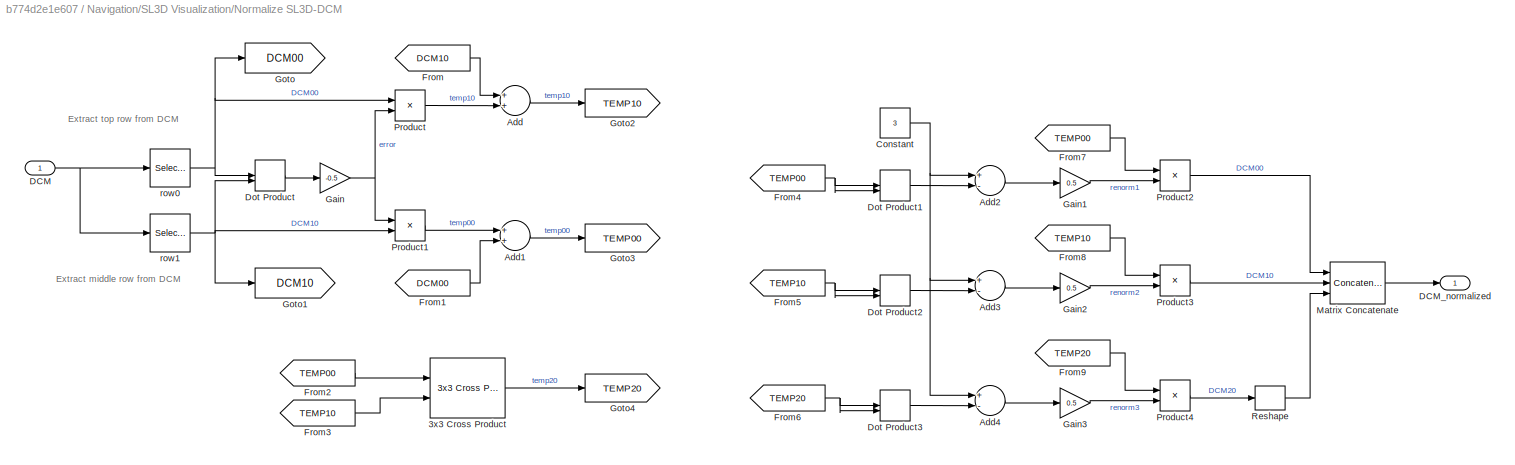
BLOCK [SubSystem] Navigation/SL3D Visualization/Normalize SL3D-DCM
  Ports = [1, 1]
  RequestExecContextInheritance = off
  TreatAsAtomicUnit = on
BLOCK [Reference] Navigation/SL3D Visualization/Normalize SL3D-DCM/3x3 Cross Product  REF=aerolibutil/3x3 Cross Product
  Ports = [2, 1]
  SourceBlock = aerolibutil/3x3 Cross Product
  SourceType = CrossProduct
BLOCK [Sum] Navigation/SL3D Visualization/Normalize SL3D-DCM/Add
  InputSameDT = off
  OutDataTypeStr = Inherit: Inherit via internal rule
  Ports = [2, 1]
  SaturateOnIntegerOverflow = off
BLOCK [Sum] Navigation/SL3D Visualization/Normalize SL3D-DCM/Add1
  InputSameDT = off
  OutDataTypeStr = Inherit: Inherit via internal rule
  Ports = [2, 1]
  SaturateOnIntegerOverflow = off
BLOCK [Sum] Navigation/SL3D Visualization/Normalize SL3D-DCM/Add2
  InputSameDT = off
  Inputs = +-
  OutDataTypeStr = Inherit: Inherit via internal rule
  Ports = [2, 1]
  SaturateOnIntegerOverflow = off
BLOCK [Sum] Navigation/SL3D Visualization/Normalize SL3D-DCM/Add3
  InputSameDT = off
  Inputs = +-
  OutDataTypeStr = Inherit: Inherit via internal rule
  Ports = [2, 1]
  SaturateOnIntegerOverflow = off
BLOCK [Sum] Navigation/SL3D Visualization/Normalize SL3D-DCM/Add4
  InputSameDT = off
  Inputs = +-
  OutDataTypeStr = Inherit: Inherit via internal rule
  Ports = [2, 1]
  SaturateOnIntegerOverflow = off
BLOCK [Constant] Navigation/SL3D Visualization/Normalize SL3D-DCM/Constant
  OutDataTypeStr = double
  SampleTime = -1
  Value = 3
BLOCK [Inport] Navigation/SL3D Visualization/Normalize SL3D-DCM/DCM
  IconDisplay = Port number
  OutDataTypeStr = double
  PortDimensions = [3,3]
BLOCK [Outport] Navigation/SL3D Visualization/Normalize SL3D-DCM/DCM_normalized
  IconDisplay = Port number
  OutDataTypeStr = double
BLOCK [DotProduct] Navigation/SL3D Visualization/Normalize SL3D-DCM/Dot Product
  OutDataTypeStr = Inherit: Inherit via internal rule
BLOCK [DotProduct] Navigation/SL3D Visualization/Normalize SL3D-DCM/Dot Product1
  OutDataTypeStr = Inherit: Inherit via internal rule
BLOCK [DotProduct] Navigation/SL3D Visualization/Normalize SL3D-DCM/Dot Product2
  OutDataTypeStr = Inherit: Inherit via internal rule
BLOCK [DotProduct] Navigation/SL3D Visualization/Normalize SL3D-DCM/Dot Product3
  OutDataTypeStr = Inherit: Inherit via internal rule
BLOCK [From] Navigation/SL3D Visualization/Normalize SL3D-DCM/From
  GotoTag = DCM10
BLOCK [From] Navigation/SL3D Visualization/Normalize SL3D-DCM/From1
  GotoTag = DCM00
BLOCK [From] Navigation/SL3D Visualization/Normalize SL3D-DCM/From2
  GotoTag = TEMP00
BLOCK [From] Navigation/SL3D Visualization/Normalize SL3D-DCM/From3
  GotoTag = TEMP10
BLOCK [From] Navigation/SL3D Visualization/Normalize SL3D-DCM/From4
  GotoTag = TEMP00
BLOCK [From] Navigation/SL3D Visualization/Normalize SL3D-DCM/From5
  GotoTag = TEMP10
BLOCK [From] Navigation/SL3D Visualization/Normalize SL3D-DCM/From6
  GotoTag = TEMP20
BLOCK [From] Navigation/SL3D Visualization/Normalize SL3D-DCM/From7
  GotoTag = TEMP00
BLOCK [From] Navigation/SL3D Visualization/Normalize SL3D-DCM/From8
  GotoTag = TEMP10
BLOCK [From] Navigation/SL3D Visualization/Normalize SL3D-DCM/From9
  GotoTag = TEMP20
BLOCK [Gain] Navigation/SL3D Visualization/Normalize SL3D-DCM/Gain
  Gain = -0.5
  OutDataTypeStr = Inherit: Inherit via internal rule
  ParamDataTypeStr = Inherit: Inherit via internal rule
  SaturateOnIntegerOverflow = off
BLOCK [Gain] Navigation/SL3D Visualization/Normalize SL3D-DCM/Gain1
  Gain = 0.5
  OutDataTypeStr = single
  ParamDataTypeStr = Inherit: Inherit via internal rule
  SaturateOnIntegerOverflow = off
BLOCK [Gain] Navigation/SL3D Visualization/Normalize SL3D-DCM/Gain2
  Gain = 0.5
  OutDataTypeStr = single
  ParamDataTypeStr = Inherit: Inherit via internal rule
  SaturateOnIntegerOverflow = off
BLOCK [Gain] Navigation/SL3D Visualization/Normalize SL3D-DCM/Gain3
  Gain = 0.5
  OutDataTypeStr = single
  ParamDataTypeStr = Inherit: Inherit via internal rule
  SaturateOnIntegerOverflow = off
BLOCK [Goto] Navigation/SL3D Visualization/Normalize SL3D-DCM/Goto
  GotoTag = DCM00
BLOCK [Goto] Navigation/SL3D Visualization/Normalize SL3D-DCM/Goto1
  GotoTag = DCM10
BLOCK [Goto] Navigation/SL3D Visualization/Normalize SL3D-DCM/Goto2
  GotoTag = TEMP10
BLOCK [Goto] Navigation/SL3D Visualization/Normalize SL3D-DCM/Goto3
  GotoTag = TEMP00
BLOCK [Goto] Navigation/SL3D Visualization/Normalize SL3D-DCM/Goto4
  GotoTag = TEMP20
BLOCK [Concatenate] Navigation/SL3D Visualization/Normalize SL3D-DCM/Matrix Concatenate
  Mode = Multidimensional array
  NumInputs = 3
  Ports = [3, 1]
BLOCK [Product] Navigation/SL3D Visualization/Normalize SL3D-DCM/Product
  InputSameDT = off
  OutDataTypeStr = Inherit: Inherit via internal rule
  Ports = [2, 1]
  SaturateOnIntegerOverflow = off
BLOCK [Product] Navigation/SL3D Visualization/Normalize SL3D-DCM/Product1
  InputSameDT = off
  OutDataTypeStr = Inherit: Inherit via internal rule
  Ports = [2, 1]
  SaturateOnIntegerOverflow = off
BLOCK [Product] Navigation/SL3D Visualization/Normalize SL3D-DCM/Product2
  InputSameDT = off
  OutDataTypeStr = Inherit: Inherit via internal rule
  Ports = [2, 1]
  SaturateOnIntegerOverflow = off
BLOCK [Product] Navigation/SL3D Visualization/Normalize SL3D-DCM/Product3
  InputSameDT = off
  OutDataTypeStr = Inherit: Inherit via internal rule
  Ports = [2, 1]
  SaturateOnIntegerOverflow = off
BLOCK [Product] Navigation/SL3D Visualization/Normalize SL3D-DCM/Product4
  InputSameDT = off
  OutDataTypeStr = Inherit: Inherit via internal rule
  Ports = [2, 1]
  SaturateOnIntegerOverflow = off
BLOCK [Reshape] Navigation/SL3D Visualization/Normalize SL3D-DCM/Reshape
  OutputDimensionality = Row vector (2-D)
  Ports = [1, 1]
BLOCK [Selector] Navigation/SL3D Visualization/Normalize SL3D-DCM/row0
  IndexMode = Zero-based
  IndexOptions = Index vector (dialog),Index vector (dialog)
  Indices = 0,[0:2]
  InputPortWidth = 3
  NumberOfDimensions = 2
  OutputSizes = 1,1
  Ports = [1, 1]
BLOCK [Selector] Navigation/SL3D Visualization/Normalize SL3D-DCM/row1
  IndexMode = Zero-based
  IndexOptions = Index vector (dialog),Index vector (dialog)
  Indices = 1,[0:2]
  InputPortWidth = 3
  NumberOfDimensions = 2
  OutputSizes = 1,1
  Ports = [1, 1]
BLOCK [RateTransition] Navigation/SL3D Visualization/Rate Transition1
BLOCK [RateTransition] Navigation/SL3D Visualization/Rate Transition2
BLOCK [RateTransition] Navigation/SL3D Visualization/Rate Transition3
BLOCK [RateTransition] Navigation/SL3D Visualization/Rate Transition4
BLOCK [Reference] Navigation/SL3D Visualization/Rotation Angles to Direction Cosine Matrix  REF=aerolibtransform2/Rotation Angles to
Direction Cosine Matrix
  AttributesFormatString = Rotation Order: %<rotationOrder>
  Ports = [1, 1]
  SourceBlock = aerolibtransform2/Rotation Angles to\nDirection Cosine Matrix
  SourceType = Ang2DCM
  rotationOrder = XYZ
BLOCK [Reference] Navigation/SL3D Visualization/Rotation Matrix to VRML Rotation1  REF=vrlib/Utilities/Rotation Matrix
to VRML Rotation
  Ports = [1, 1]
  SourceBlock = vrlib/Utilities/Rotation Matrix\nto VRML Rotation
  SourceType = Rotation Matrix to VRML Rotation
  maxzero = 1e-12
BLOCK [SubSystem] Navigation/SL3D Visualization/SL3D DCM Output - used to adjust axes to fit wit SL3D convention
  Ports = []
  RequestExecContextInheritance = off
BLOCK [Reference] Navigation/SL3D Visualization/VR Sink1  REF=vrlib/VR Sink
  AllowVariableSize = off
  AutoView = off
  FieldsWritten = Plane.rotation.4.1.1.double#mag_point.translation.3.1.1.double#grav_point.translation.3.1.1.double#mag_projection_point.translation.3.1.1.double
  InstantiateOnLoad = on
  Ports = [4]
  RemoteChange = off
  RemoteView = off
  SampleTime = 0.02
  SourceBlock = vrlib/VR Sink
  SourceType = Virtual Reality Sink
  VideoDimensions = []
  ViewEnable = on
  WorldFileName = vrml8_grav_2.WRL
BLOCK [Inport] Navigation/StateTrigger
  IconDisplay = Port number
  OutDataTypeStr = Enum: Drone_StateModeType
  Port = 3
BLOCK [Outport] Navigation/Telemetry_Data_Bus
  IconDisplay = Port number
  Port = 2
BLOCK [UnitDelay] Navigation/Unit Delay
  InputProcessing = Elements as channels (sample based)
  SampleTime = -1
ANNOTATION Navigation/CheckSum Pre-Processing/Magnetometer/Process Raw Mag Data: magnetometer[ 0 ] = - ( float ) navdata.mx ; magnetometer[ 1 ] = ( float ) navdata.my ; magnetometer[ 2 ] = - ( float ) navdata.mz ; const float Sensitivity[ 3 ] = { 0.0071492608 , 0.0070882491 , 0.0074057781 } ; const float Neutral[ 3 ] = { 118.0 , - 65.0 , 110.0 } ;
ANNOTATION Navigation/CheckSum Pre-Processing/RateGyro Processing/Process Data: const float Sensitivity[ 3 ] = { 0.0609 , 0.0609 , 0.0609 } ; const float Neutral[ 3 ] = { 0.0 , 0.0 , 0.0 } ; const int16_t Offset[ 3 ] = { - 73 , 14 , - 13 } ; const int16_t Noises[ 3 ] = { 35 , 35 , 15 } ; int16_t vRaws[ 3 ] = { Navdata :: IMU :: Gyroscope :: getRawX (), Navdata :: IMU :: Gyroscope :: getRawY (), Navdata :: IMU :: Gyroscope :: getRawZ () } ; gyroscope[i] = vRaws[i] * Gyroscope ...<+34ch>
ANNOTATION Navigation/CheckSum Pre-Processing/TempFilter/Process Raw Mag Data: magnetometer[ 0 ] = - ( float ) navdata.mx ; magnetometer[ 1 ] = ( float ) navdata.my ; magnetometer[ 2 ] = - ( float ) navdata.mz ; const float Sensitivity[ 3 ] = { 0.0071492608 , 0.0070882491 , 0.0074057781 } ; const float Neutral[ 3 ] = { 118.0 , - 65.0 , 110.0 } ;
ANNOTATION Navigation/CheckSum Pre-Processing/Ultrasound Processing: '192.168.1.1' 1 17725
ANNOTATION Navigation/Data Conversion and Measurement Calculation/Calculate Gravity Vector/Accelerometer Neutral Gain and Offset: (1/512)g /LSB
ANNOTATION Navigation/Data Conversion and Measurement Calculation/Calculate Gravity Vector/Accelerometer Neutral Gain and Offset: All axes were invereted here, both implementations in paparazzi and student team seem to do this
ANNOTATION Navigation/Data Conversion and Measurement Calculation/Calculate Gravity Vector/InitialCondition_Offset: For Home Drone
ANNOTATION Navigation/Data Conversion and Measurement Calculation/Calibration_Scale_and_Offset/Process Raw Mag Data/Process Raw Mag Data (Home_330453): magnetometer[ 0 ] = - ( float ) navdata.mx ; magnetometer[ 1 ] = ( float ) navdata.my ; magnetometer[ 2 ] = - ( float ) navdata.mz ; const float Sensitivity[ 3 ] = { 0.0071492608 , 0.0070882491 , 0.0074057781 } ; const float Neutral[ 3 ] = { 118.0 , - 65.0 , 110.0 } ;
ANNOTATION Navigation/Data Conversion and Measurement Calculation/Calibration_Scale_and_Offset/Process Raw Mag Data/Process Raw Mag Data (Work_255725): 158 145 136
ANNOTATION Navigation/Data Conversion and Measurement Calculation/Calibration_Scale_and_Offset/Process Raw Mag Data/Process Raw Mag Data (Work_255725): magnetometer[ 0 ] = - ( float ) navdata.mx ; magnetometer[ 1 ] = ( float ) navdata.my ; magnetometer[ 2 ] = - ( float ) navdata.mz ; const float Sensitivity[ 3 ] = { 0.0071492608 , 0.0070882491 , 0.0074057781 } ; const float Neutral[ 3 ] = { 118.0 , - 65.0 , 110.0 } ;
ANNOTATION Navigation/Data Conversion and Measurement Calculation/Remove Offset/Process Raw Rate Gyro Data: const float Sensitivity[ 3 ] = { 0.0609 , 0.0609 , 0.0609 } ; const float Neutral[ 3 ] = { 0.0 , 0.0 , 0.0 } ; const int16_t Offset[ 3 ] = { - 73 , 14 , - 13 } ; const int16_t Noises[ 3 ] = { 35 , 35 , 15 } ; int16_t vRaws[ 3 ] = { Navdata :: IMU :: Gyroscope :: getRawX (), Navdata :: IMU :: Gyroscope :: getRawY (), Navdata :: IMU :: Gyroscope :: getRawZ () } ; gyroscope[i] = vRaws[i] * Gyroscope ...<+34ch>
ANNOTATION Navigation/SL3D Visualization/Interchange Axes Mag for SL3D /Home Drone: This comes close, however, it doesnt seem that the axis changes properly ie: i rotate drone, the green dot follows it. This tells me the Z-axis is not properly placed
ANNOTATION Navigation/SL3D Visualization/Interchange Axes Mag for SL3D /Home Drone: x
ANNOTATION Navigation/SL3D Visualization/Interchange Axes Mag for SL3D /Home Drone: y
ANNOTATION Navigation/SL3D Visualization/Interchange Axes Mag for SL3D /Home Drone: z
ANNOTATION Navigation/SL3D Visualization/Interchange Axes Mag for SL3D /Subsystem: This comes close, however, it doesnt seem that the axis changes properly ie: i rotate drone, the green dot follows it. This tells me the Z-axis is not properly placed
ANNOTATION Navigation/SL3D Visualization/Interchange Axes Mag for SL3D /Subsystem: x
ANNOTATION Navigation/SL3D Visualization/Interchange Axes Mag for SL3D /Subsystem: y
ANNOTATION Navigation/SL3D Visualization/Interchange Axes Mag for SL3D /Subsystem: z
ANNOTATION Navigation/SL3D Visualization/Interchange Axes Mag for SL3D /Work Drone: This comes close, however, it doesnt seem that the axis changes properly ie: i rotate drone, the green dot follows it. This tells me the Z-axis is not properly placed
ANNOTATION Navigation/SL3D Visualization/Interchange Axes Mag for SL3D /Work Drone: x
ANNOTATION Navigation/SL3D Visualization/Interchange Axes Mag for SL3D /Work Drone: y
ANNOTATION Navigation/SL3D Visualization/Interchange Axes Mag for SL3D /Work Drone: z
ANNOTATION Navigation/SL3D Visualization/Interchange Axes Mag for SL3D /Work Drone - supposed work drone .. not really: This comes close, however, it doesnt seem that the axis changes properly ie: i rotate drone, the green dot follows it. This tells me the Z-axis is not properly placed
ANNOTATION Navigation/SL3D Visualization/Interchange Axes Mag for SL3D /Work Drone - supposed work drone .. not really: x
ANNOTATION Navigation/SL3D Visualization/Interchange Axes Mag for SL3D /Work Drone - supposed work drone .. not really: y
ANNOTATION Navigation/SL3D Visualization/Interchange Axes Mag for SL3D /Work Drone - supposed work drone .. not really: z
ANNOTATION Navigation/SL3D Visualization/Normalize SL3D-DCM: Extract middle row from DCM
ANNOTATION Navigation/SL3D Visualization/Normalize SL3D-DCM: Extract top row from DCM
NET Navigation/Bus Creator1:1 -> Navigation/Bus Creator2:1, Navigation/Data Conversion and Measurement Calculation:1
LINE Navigation/Bus Creator2:1 -> Navigation/Telemetry_Data_Bus:1
LINE Navigation/Bus Creator3:1 -> Navigation/Bus Creator2:3
LINE Navigation/Bus Creator4:1 -> Navigation/Bus Creator2:2
LINE Navigation/Bus Creator:1 -> Navigation/Controller_Data_Bus:1
LINE Navigation/CheckSum Pre-Processing/Accelerometer Processing/Calculate Accel Data/Bias:1 -> Navigation/CheckSum Pre-Processing/Accelerometer Processing/Calculate Accel Data/Sum:2
LINE Navigation/CheckSum Pre-Processing/Accelerometer Processing/Calculate Accel Data/Gain:1 -> Navigation/CheckSum Pre-Processing/Accelerometer Processing/Calculate Accel Data/Processed Accel Data:1
LINE Navigation/CheckSum Pre-Processing/Accelerometer Processing/Calculate Accel Data/Neutral Bias:1 -> Navigation/CheckSum Pre-Processing/Accelerometer Processing/Calculate Accel Data/Sum1:2
LINE Navigation/CheckSum Pre-Processing/Accelerometer Processing/Calculate Accel Data/Raw Accel Data:1 -> Navigation/CheckSum Pre-Processing/Accelerometer Processing/Calculate Accel Data/Sum:1
LINE Navigation/CheckSum Pre-Processing/Accelerometer Processing/Calculate Accel Data/Sum1:1 -> Navigation/CheckSum Pre-Processing/Accelerometer Processing/Calculate Accel Data/Gain:1
LINE Navigation/CheckSum Pre-Processing/Accelerometer Processing/Calculate Accel Data/Sum:1 -> Navigation/CheckSum Pre-Processing/Accelerometer Processing/Calculate Accel Data/Sum1:1
LINE Navigation/CheckSum Pre-Processing/Accelerometer Processing/Calculate Accel Data:1 -> Navigation/CheckSum Pre-Processing/Accelerometer Processing/CheckSum Correction:1
LINE Navigation/CheckSum Pre-Processing/Accelerometer Processing/CheckSum Correction/CalculatedData:1 -> Navigation/CheckSum Pre-Processing/Accelerometer Processing/CheckSum Correction/If True, we have good data, If false, we have bad data, With bad data, use previous good data from N samples ago and hold it on that value for M samples:1
LINE Navigation/CheckSum Pre-Processing/Accelerometer Processing/CheckSum Correction/CheckSumFlag:1 -> Navigation/CheckSum Pre-Processing/Accelerometer Processing/CheckSum Correction/Compare To Zero:1
LINE Navigation/CheckSum Pre-Processing/Accelerometer Processing/CheckSum Correction/Compare To Zero:1 -> Navigation/CheckSum Pre-Processing/Accelerometer Processing/CheckSum Correction/Logical Operator1:1
LINE Navigation/CheckSum Pre-Processing/Accelerometer Processing/CheckSum Correction/Delay:1 -> Navigation/CheckSum Pre-Processing/Accelerometer Processing/CheckSum Correction/If True, we have good data, If false, we have bad data, With bad data, use previous good data from N samples ago and hold it on that value for M samples:3
LINE Navigation/CheckSum Pre-Processing/Accelerometer Processing/CheckSum Correction/Generate Sample Holding Pulse/Chart:1 -> Navigation/CheckSum Pre-Processing/Accelerometer Processing/CheckSum Correction/Generate Sample Holding Pulse/Logical Operator1:2
LINE Navigation/CheckSum Pre-Processing/Accelerometer Processing/CheckSum Correction/Generate Sample Holding Pulse/CheckSumFlag:1 -> Navigation/CheckSum Pre-Processing/Accelerometer Processing/CheckSum Correction/Generate Sample Holding Pulse/Transition Logic Detection:1
LINE Navigation/CheckSum Pre-Processing/Accelerometer Processing/CheckSum Correction/Generate Sample Holding Pulse/Constant2:1 -> Navigation/CheckSum Pre-Processing/Accelerometer Processing/CheckSum Correction/Generate Sample Holding Pulse/Logical Operator1:1
LINE Navigation/CheckSum Pre-Processing/Accelerometer Processing/CheckSum Correction/Generate Sample Holding Pulse/HoldDataTicks_Value:1 -> Navigation/CheckSum Pre-Processing/Accelerometer Processing/CheckSum Correction/Generate Sample Holding Pulse/Chart:2
LINE Navigation/CheckSum Pre-Processing/Accelerometer Processing/CheckSum Correction/Generate Sample Holding Pulse/Logical Operator1:1 -> Navigation/CheckSum Pre-Processing/Accelerometer Processing/CheckSum Correction/Generate Sample Holding Pulse/Hold_Data_Pulse:1
LINE Navigation/CheckSum Pre-Processing/Accelerometer Processing/CheckSum Correction/Generate Sample Holding Pulse/Transition Logic Detection/Constant1:1 -> Navigation/CheckSum Pre-Processing/Accelerometer Processing/CheckSum Correction/Generate Sample Holding Pulse/Transition Logic Detection/Relational Operator1:1
LINE Navigation/CheckSum Pre-Processing/Accelerometer Processing/CheckSum Correction/Generate Sample Holding Pulse/Transition Logic Detection/Constant:1 -> Navigation/CheckSum Pre-Processing/Accelerometer Processing/CheckSum Correction/Generate Sample Holding Pulse/Transition Logic Detection/Relational Operator:2
NET Navigation/CheckSum Pre-Processing/Accelerometer Processing/CheckSum Correction/Generate Sample Holding Pulse/Transition Logic Detection/Input:1 -> Navigation/CheckSum Pre-Processing/Accelerometer Processing/CheckSum Correction/Generate Sample Holding Pulse/Transition Logic Detection/Relational Operator1:2, Navigation/CheckSum Pre-Processing/Accelerometer Processing/CheckSum Correction/Generate Sample Holding Pulse/Transition Logic Detection/Unit Delay:1
LINE Navigation/CheckSum Pre-Processing/Accelerometer Processing/CheckSum Correction/Generate Sample Holding Pulse/Transition Logic Detection/Logical Operator:1 -> Navigation/CheckSum Pre-Processing/Accelerometer Processing/CheckSum Correction/Generate Sample Holding Pulse/Transition Logic Detection/Transition Detect:1
LINE Navigation/CheckSum Pre-Processing/Accelerometer Processing/CheckSum Correction/Generate Sample Holding Pulse/Transition Logic Detection/Relational Operator1:1 -> Navigation/CheckSum Pre-Processing/Accelerometer Processing/CheckSum Correction/Generate Sample Holding Pulse/Transition Logic Detection/Logical Operator:1
LINE Navigation/CheckSum Pre-Processing/Accelerometer Processing/CheckSum Correction/Generate Sample Holding Pulse/Transition Logic Detection/Relational Operator:1 -> Navigation/CheckSum Pre-Processing/Accelerometer Processing/CheckSum Correction/Generate Sample Holding Pulse/Transition Logic Detection/Logical Operator:2
LINE Navigation/CheckSum Pre-Processing/Accelerometer Processing/CheckSum Correction/Generate Sample Holding Pulse/Transition Logic Detection/Unit Delay:1 -> Navigation/CheckSum Pre-Processing/Accelerometer Processing/CheckSum Correction/Generate Sample Holding Pulse/Transition Logic Detection/Relational Operator:1
LINE Navigation/CheckSum Pre-Processing/Accelerometer Processing/CheckSum Correction/Generate Sample Holding Pulse/Transition Logic Detection:1 -> Navigation/CheckSum Pre-Processing/Accelerometer Processing/CheckSum Correction/Generate Sample Holding Pulse/Chart:1
LINE Navigation/CheckSum Pre-Processing/Accelerometer Processing/CheckSum Correction/Generate Sample Holding Pulse:1 -> Navigation/CheckSum Pre-Processing/Accelerometer Processing/CheckSum Correction/Invert Logic:1
LINE Navigation/CheckSum Pre-Processing/Accelerometer Processing/CheckSum Correction/Holding Value:1 -> Navigation/CheckSum Pre-Processing/Accelerometer Processing/CheckSum Correction/Generate Sample Holding Pulse:2
NET Navigation/CheckSum Pre-Processing/Accelerometer Processing/CheckSum Correction/If True, we have good data, If false, we have bad data, With bad data, use previous good data from N samples ago and hold it on that value for M samples:1 -> Navigation/CheckSum Pre-Processing/Accelerometer Processing/CheckSum Correction/Delay:1, Navigation/CheckSum Pre-Processing/Accelerometer Processing/CheckSum Correction/Pre-Processed Height:1
LINE Navigation/CheckSum Pre-Processing/Accelerometer Processing/CheckSum Correction/Invert Logic:1 -> Navigation/CheckSum Pre-Processing/Accelerometer Processing/CheckSum Correction/If True, we have good data, If false, we have bad data, With bad data, use previous good data from N samples ago and hold it on that value for M samples:2
LINE Navigation/CheckSum Pre-Processing/Accelerometer Processing/CheckSum Correction/Logical Operator1:1 -> Navigation/CheckSum Pre-Processing/Accelerometer Processing/CheckSum Correction/Generate Sample Holding Pulse:1
LINE Navigation/CheckSum Pre-Processing/Accelerometer Processing/CheckSum Correction:1 -> Navigation/CheckSum Pre-Processing/Accelerometer Processing/Processed Data:1
LINE Navigation/CheckSum Pre-Processing/Accelerometer Processing/CheckSum Flag:1 -> Navigation/CheckSum Pre-Processing/Accelerometer Processing/CheckSum Correction:2
LINE Navigation/CheckSum Pre-Processing/Accelerometer Processing/Holding Value:1 -> Navigation/CheckSum Pre-Processing/Accelerometer Processing/CheckSum Correction:3
LINE Navigation/CheckSum Pre-Processing/Accelerometer Processing/Raw Data:1 -> Navigation/CheckSum Pre-Processing/Accelerometer Processing/Calculate Accel Data:1
LINE Navigation/CheckSum Pre-Processing/Accelerometer Processing:1 -> Navigation/CheckSum Pre-Processing/Accelerometer_Measure:1
LINE Navigation/CheckSum Pre-Processing/Accelerometer_Goto_Tag:1 -> Navigation/CheckSum Pre-Processing/Accelerometer Processing:2
LINE Navigation/CheckSum Pre-Processing/Bus Selector1:1 -> Navigation/CheckSum Pre-Processing/Ultrasound Processing:1
LINE Navigation/CheckSum Pre-Processing/Bus Selector2:1 -> Navigation/CheckSum Pre-Processing/Mux3:1
LINE Navigation/CheckSum Pre-Processing/Bus Selector2:2 -> Navigation/CheckSum Pre-Processing/Mux3:2
LINE Navigation/CheckSum Pre-Processing/Bus Selector2:3 -> Navigation/CheckSum Pre-Processing/Mux3:3
LINE Navigation/CheckSum Pre-Processing/Bus Selector3:1 -> Navigation/CheckSum Pre-Processing/TempFilter:1
LINE Navigation/CheckSum Pre-Processing/Bus Selector4:1 -> Navigation/CheckSum Pre-Processing/Mux1:1
LINE Navigation/CheckSum Pre-Processing/Bus Selector4:2 -> Navigation/CheckSum Pre-Processing/Mux1:2
LINE Navigation/CheckSum Pre-Processing/Bus Selector4:3 -> Navigation/CheckSum Pre-Processing/Mux1:3
LINE Navigation/CheckSum Pre-Processing/Bus Selector:1 -> Navigation/CheckSum Pre-Processing/Mux2:1
LINE Navigation/CheckSum Pre-Processing/Bus Selector:2 -> Navigation/CheckSum Pre-Processing/Mux2:2
LINE Navigation/CheckSum Pre-Processing/Bus Selector:3 -> Navigation/CheckSum Pre-Processing/Mux2:3
NET Navigation/CheckSum Pre-Processing/CheckSumFlag:1 -> Navigation/CheckSum Pre-Processing/CheckSum Value:1, Navigation/CheckSum Pre-Processing/Goto:1
LINE Navigation/CheckSum Pre-Processing/Holding Value:1 -> Navigation/CheckSum Pre-Processing/Goto1:1
LINE Navigation/CheckSum Pre-Processing/Holding_Value1:1 -> Navigation/CheckSum Pre-Processing/Ultrasound Processing:3
LINE Navigation/CheckSum Pre-Processing/Holding_Value2:1 -> Navigation/CheckSum Pre-Processing/Magnetometer:3
LINE Navigation/CheckSum Pre-Processing/Holding_Value3:1 -> Navigation/CheckSum Pre-Processing/RateGyro Processing:3
LINE Navigation/CheckSum Pre-Processing/Holding_Value4:1 -> Navigation/CheckSum Pre-Processing/Accelerometer Processing:3
LINE Navigation/CheckSum Pre-Processing/Holding_Value:1 -> Navigation/CheckSum Pre-Processing/TempFilter:3
NET Navigation/CheckSum Pre-Processing/IMU Packets:1 -> Navigation/CheckSum Pre-Processing/Bus Selector1:1, Navigation/CheckSum Pre-Processing/Bus Selector2:1, Navigation/CheckSum Pre-Processing/Bus Selector3:1, Navigation/CheckSum Pre-Processing/Bus Selector4:1, Navigation/CheckSum Pre-Processing/Bus Selector:1
LINE Navigation/CheckSum Pre-Processing/Mag_GoTo_Tag:1 -> Navigation/CheckSum Pre-Processing/Magnetometer:2
LINE Navigation/CheckSum Pre-Processing/Magnetometer/CheckSum Correction/CalculatedData:1 -> Navigation/CheckSum Pre-Processing/Magnetometer/CheckSum Correction/If True, we have good data, If false, we have bad data, With bad data, use previous good data from N samples ago and hold it on that value for M samples:1
LINE Navigation/CheckSum Pre-Processing/Magnetometer/CheckSum Correction/CheckSumFlag:1 -> Navigation/CheckSum Pre-Processing/Magnetometer/CheckSum Correction/Compare To Zero:1
LINE Navigation/CheckSum Pre-Processing/Magnetometer/CheckSum Correction/Compare To Zero:1 -> Navigation/CheckSum Pre-Processing/Magnetometer/CheckSum Correction/Logical Operator1:1
LINE Navigation/CheckSum Pre-Processing/Magnetometer/CheckSum Correction/Delay:1 -> Navigation/CheckSum Pre-Processing/Magnetometer/CheckSum Correction/If True, we have good data, If false, we have bad data, With bad data, use previous good data from N samples ago and hold it on that value for M samples:3
LINE Navigation/CheckSum Pre-Processing/Magnetometer/CheckSum Correction/Generate Sample Holding Pulse/Chart:1 -> Navigation/CheckSum Pre-Processing/Magnetometer/CheckSum Correction/Generate Sample Holding Pulse/Logical Operator1:2
LINE Navigation/CheckSum Pre-Processing/Magnetometer/CheckSum Correction/Generate Sample Holding Pulse/CheckSumFlag:1 -> Navigation/CheckSum Pre-Processing/Magnetometer/CheckSum Correction/Generate Sample Holding Pulse/Transition Logic Detection:1
LINE Navigation/CheckSum Pre-Processing/Magnetometer/CheckSum Correction/Generate Sample Holding Pulse/Constant2:1 -> Navigation/CheckSum Pre-Processing/Magnetometer/CheckSum Correction/Generate Sample Holding Pulse/Logical Operator1:1
LINE Navigation/CheckSum Pre-Processing/Magnetometer/CheckSum Correction/Generate Sample Holding Pulse/HoldDataTicks_Value:1 -> Navigation/CheckSum Pre-Processing/Magnetometer/CheckSum Correction/Generate Sample Holding Pulse/Chart:2
LINE Navigation/CheckSum Pre-Processing/Magnetometer/CheckSum Correction/Generate Sample Holding Pulse/Logical Operator1:1 -> Navigation/CheckSum Pre-Processing/Magnetometer/CheckSum Correction/Generate Sample Holding Pulse/Hold_Data_Pulse:1
LINE Navigation/CheckSum Pre-Processing/Magnetometer/CheckSum Correction/Generate Sample Holding Pulse/Transition Logic Detection/Constant1:1 -> Navigation/CheckSum Pre-Processing/Magnetometer/CheckSum Correction/Generate Sample Holding Pulse/Transition Logic Detection/Relational Operator1:1
LINE Navigation/CheckSum Pre-Processing/Magnetometer/CheckSum Correction/Generate Sample Holding Pulse/Transition Logic Detection/Constant:1 -> Navigation/CheckSum Pre-Processing/Magnetometer/CheckSum Correction/Generate Sample Holding Pulse/Transition Logic Detection/Relational Operator:2
NET Navigation/CheckSum Pre-Processing/Magnetometer/CheckSum Correction/Generate Sample Holding Pulse/Transition Logic Detection/Input:1 -> Navigation/CheckSum Pre-Processing/Magnetometer/CheckSum Correction/Generate Sample Holding Pulse/Transition Logic Detection/Relational Operator1:2, Navigation/CheckSum Pre-Processing/Magnetometer/CheckSum Correction/Generate Sample Holding Pulse/Transition Logic Detection/Unit Delay:1
LINE Navigation/CheckSum Pre-Processing/Magnetometer/CheckSum Correction/Generate Sample Holding Pulse/Transition Logic Detection/Logical Operator:1 -> Navigation/CheckSum Pre-Processing/Magnetometer/CheckSum Correction/Generate Sample Holding Pulse/Transition Logic Detection/Transition Detect:1
LINE Navigation/CheckSum Pre-Processing/Magnetometer/CheckSum Correction/Generate Sample Holding Pulse/Transition Logic Detection/Relational Operator1:1 -> Navigation/CheckSum Pre-Processing/Magnetometer/CheckSum Correction/Generate Sample Holding Pulse/Transition Logic Detection/Logical Operator:1
LINE Navigation/CheckSum Pre-Processing/Magnetometer/CheckSum Correction/Generate Sample Holding Pulse/Transition Logic Detection/Relational Operator:1 -> Navigation/CheckSum Pre-Processing/Magnetometer/CheckSum Correction/Generate Sample Holding Pulse/Transition Logic Detection/Logical Operator:2
LINE Navigation/CheckSum Pre-Processing/Magnetometer/CheckSum Correction/Generate Sample Holding Pulse/Transition Logic Detection/Unit Delay:1 -> Navigation/CheckSum Pre-Processing/Magnetometer/CheckSum Correction/Generate Sample Holding Pulse/Transition Logic Detection/Relational Operator:1
LINE Navigation/CheckSum Pre-Processing/Magnetometer/CheckSum Correction/Generate Sample Holding Pulse/Transition Logic Detection:1 -> Navigation/CheckSum Pre-Processing/Magnetometer/CheckSum Correction/Generate Sample Holding Pulse/Chart:1
LINE Navigation/CheckSum Pre-Processing/Magnetometer/CheckSum Correction/Generate Sample Holding Pulse:1 -> Navigation/CheckSum Pre-Processing/Magnetometer/CheckSum Correction/Invert Logic:1
LINE Navigation/CheckSum Pre-Processing/Magnetometer/CheckSum Correction/Holding Value:1 -> Navigation/CheckSum Pre-Processing/Magnetometer/CheckSum Correction/Generate Sample Holding Pulse:2
NET Navigation/CheckSum Pre-Processing/Magnetometer/CheckSum Correction/If True, we have good data, If false, we have bad data, With bad data, use previous good data from N samples ago and hold it on that value for M samples:1 -> Navigation/CheckSum Pre-Processing/Magnetometer/CheckSum Correction/Delay:1, Navigation/CheckSum Pre-Processing/Magnetometer/CheckSum Correction/Pre-Processed Data:1
LINE Navigation/CheckSum Pre-Processing/Magnetometer/CheckSum Correction/Invert Logic:1 -> Navigation/CheckSum Pre-Processing/Magnetometer/CheckSum Correction/If True, we have good data, If false, we have bad data, With bad data, use previous good data from N samples ago and hold it on that value for M samples:2
LINE Navigation/CheckSum Pre-Processing/Magnetometer/CheckSum Correction/Logical Operator1:1 -> Navigation/CheckSum Pre-Processing/Magnetometer/CheckSum Correction/Generate Sample Holding Pulse:1
LINE Navigation/CheckSum Pre-Processing/Magnetometer/CheckSum Correction:1 -> Navigation/CheckSum Pre-Processing/Magnetometer/Processed Data:1
LINE Navigation/CheckSum Pre-Processing/Magnetometer/CheckSum Flag:1 -> Navigation/CheckSum Pre-Processing/Magnetometer/CheckSum Correction:2
LINE Navigation/CheckSum Pre-Processing/Magnetometer/Holding Value:1 -> Navigation/CheckSum Pre-Processing/Magnetometer/CheckSum Correction:3
LINE Navigation/CheckSum Pre-Processing/Magnetometer/Magnetometer:1 -> Navigation/CheckSum Pre-Processing/Magnetometer/Process Raw Mag Data:1
LINE Navigation/CheckSum Pre-Processing/Magnetometer/Process Raw Mag Data/Bias:1 -> Navigation/CheckSum Pre-Processing/Magnetometer/Process Raw Mag Data/Sum:2
LINE Navigation/CheckSum Pre-Processing/Magnetometer/Process Raw Mag Data/Magnetometer:1 -> Navigation/CheckSum Pre-Processing/Magnetometer/Process Raw Mag Data/preGain:1
LINE Navigation/CheckSum Pre-Processing/Magnetometer/Process Raw Mag Data/Sum:1 -> Navigation/CheckSum Pre-Processing/Magnetometer/Process Raw Mag Data/postGain:1
LINE Navigation/CheckSum Pre-Processing/Magnetometer/Process Raw Mag Data/postGain:1 -> Navigation/CheckSum Pre-Processing/Magnetometer/Process Raw Mag Data/ProcessedData:1
LINE Navigation/CheckSum Pre-Processing/Magnetometer/Process Raw Mag Data/preGain:1 -> Navigation/CheckSum Pre-Processing/Magnetometer/Process Raw Mag Data/Sum:1
LINE Navigation/CheckSum Pre-Processing/Magnetometer/Process Raw Mag Data:1 -> Navigation/CheckSum Pre-Processing/Magnetometer/CheckSum Correction:1
LINE Navigation/CheckSum Pre-Processing/Magnetometer:1 -> Navigation/CheckSum Pre-Processing/Magnetometer_Measure:1
LINE Navigation/CheckSum Pre-Processing/Mux1:1 -> Navigation/CheckSum Pre-Processing/Accelerometer Processing:1
LINE Navigation/CheckSum Pre-Processing/Mux2:1 -> Navigation/CheckSum Pre-Processing/RateGyro Processing:1
LINE Navigation/CheckSum Pre-Processing/Mux3:1 -> Navigation/CheckSum Pre-Processing/Magnetometer:1
LINE Navigation/CheckSum Pre-Processing/RateGyro Processing/CheckSum Correction/CalculatedData:1 -> Navigation/CheckSum Pre-Processing/RateGyro Processing/CheckSum Correction/If True, we have good data, If false, we have bad data, With bad data, use previous good data from N samples ago and hold it on that value for M samples:1
LINE Navigation/CheckSum Pre-Processing/RateGyro Processing/CheckSum Correction/CheckSumFlag:1 -> Navigation/CheckSum Pre-Processing/RateGyro Processing/CheckSum Correction/Compare To Zero:1
LINE Navigation/CheckSum Pre-Processing/RateGyro Processing/CheckSum Correction/Compare To Zero:1 -> Navigation/CheckSum Pre-Processing/RateGyro Processing/CheckSum Correction/Logical Operator1:1
LINE Navigation/CheckSum Pre-Processing/RateGyro Processing/CheckSum Correction/Delay:1 -> Navigation/CheckSum Pre-Processing/RateGyro Processing/CheckSum Correction/If True, we have good data, If false, we have bad data, With bad data, use previous good data from N samples ago and hold it on that value for M samples:3
LINE Navigation/CheckSum Pre-Processing/RateGyro Processing/CheckSum Correction/Generate Sample Holding Pulse/Chart:1 -> Navigation/CheckSum Pre-Processing/RateGyro Processing/CheckSum Correction/Generate Sample Holding Pulse/Logical Operator1:2
LINE Navigation/CheckSum Pre-Processing/RateGyro Processing/CheckSum Correction/Generate Sample Holding Pulse/CheckSumFlag:1 -> Navigation/CheckSum Pre-Processing/RateGyro Processing/CheckSum Correction/Generate Sample Holding Pulse/Transition Logic Detection:1
LINE Navigation/CheckSum Pre-Processing/RateGyro Processing/CheckSum Correction/Generate Sample Holding Pulse/Constant2:1 -> Navigation/CheckSum Pre-Processing/RateGyro Processing/CheckSum Correction/Generate Sample Holding Pulse/Logical Operator1:1
LINE Navigation/CheckSum Pre-Processing/RateGyro Processing/CheckSum Correction/Generate Sample Holding Pulse/HoldDataTicks_Value:1 -> Navigation/CheckSum Pre-Processing/RateGyro Processing/CheckSum Correction/Generate Sample Holding Pulse/Chart:2
LINE Navigation/CheckSum Pre-Processing/RateGyro Processing/CheckSum Correction/Generate Sample Holding Pulse/Logical Operator1:1 -> Navigation/CheckSum Pre-Processing/RateGyro Processing/CheckSum Correction/Generate Sample Holding Pulse/Hold_Data_Pulse:1
LINE Navigation/CheckSum Pre-Processing/RateGyro Processing/CheckSum Correction/Generate Sample Holding Pulse/Transition Logic Detection/Constant1:1 -> Navigation/CheckSum Pre-Processing/RateGyro Processing/CheckSum Correction/Generate Sample Holding Pulse/Transition Logic Detection/Relational Operator1:1
LINE Navigation/CheckSum Pre-Processing/RateGyro Processing/CheckSum Correction/Generate Sample Holding Pulse/Transition Logic Detection/Constant:1 -> Navigation/CheckSum Pre-Processing/RateGyro Processing/CheckSum Correction/Generate Sample Holding Pulse/Transition Logic Detection/Relational Operator:2
NET Navigation/CheckSum Pre-Processing/RateGyro Processing/CheckSum Correction/Generate Sample Holding Pulse/Transition Logic Detection/Input:1 -> Navigation/CheckSum Pre-Processing/RateGyro Processing/CheckSum Correction/Generate Sample Holding Pulse/Transition Logic Detection/Relational Operator1:2, Navigation/CheckSum Pre-Processing/RateGyro Processing/CheckSum Correction/Generate Sample Holding Pulse/Transition Logic Detection/Unit Delay:1
LINE Navigation/CheckSum Pre-Processing/RateGyro Processing/CheckSum Correction/Generate Sample Holding Pulse/Transition Logic Detection/Logical Operator:1 -> Navigation/CheckSum Pre-Processing/RateGyro Processing/CheckSum Correction/Generate Sample Holding Pulse/Transition Logic Detection/Transition Detect:1
LINE Navigation/CheckSum Pre-Processing/RateGyro Processing/CheckSum Correction/Generate Sample Holding Pulse/Transition Logic Detection/Relational Operator1:1 -> Navigation/CheckSum Pre-Processing/RateGyro Processing/CheckSum Correction/Generate Sample Holding Pulse/Transition Logic Detection/Logical Operator:1
LINE Navigation/CheckSum Pre-Processing/RateGyro Processing/CheckSum Correction/Generate Sample Holding Pulse/Transition Logic Detection/Relational Operator:1 -> Navigation/CheckSum Pre-Processing/RateGyro Processing/CheckSum Correction/Generate Sample Holding Pulse/Transition Logic Detection/Logical Operator:2
LINE Navigation/CheckSum Pre-Processing/RateGyro Processing/CheckSum Correction/Generate Sample Holding Pulse/Transition Logic Detection/Unit Delay:1 -> Navigation/CheckSum Pre-Processing/RateGyro Processing/CheckSum Correction/Generate Sample Holding Pulse/Transition Logic Detection/Relational Operator:1
LINE Navigation/CheckSum Pre-Processing/RateGyro Processing/CheckSum Correction/Generate Sample Holding Pulse/Transition Logic Detection:1 -> Navigation/CheckSum Pre-Processing/RateGyro Processing/CheckSum Correction/Generate Sample Holding Pulse/Chart:1
LINE Navigation/CheckSum Pre-Processing/RateGyro Processing/CheckSum Correction/Generate Sample Holding Pulse:1 -> Navigation/CheckSum Pre-Processing/RateGyro Processing/CheckSum Correction/Invert Logic:1
LINE Navigation/CheckSum Pre-Processing/RateGyro Processing/CheckSum Correction/Holding Value:1 -> Navigation/CheckSum Pre-Processing/RateGyro Processing/CheckSum Correction/Generate Sample Holding Pulse:2
NET Navigation/CheckSum Pre-Processing/RateGyro Processing/CheckSum Correction/If True, we have good data, If false, we have bad data, With bad data, use previous good data from N samples ago and hold it on that value for M samples:1 -> Navigation/CheckSum Pre-Processing/RateGyro Processing/CheckSum Correction/Delay:1, Navigation/CheckSum Pre-Processing/RateGyro Processing/CheckSum Correction/Pre-Processed Height:1
LINE Navigation/CheckSum Pre-Processing/RateGyro Processing/CheckSum Correction/Invert Logic:1 -> Navigation/CheckSum Pre-Processing/RateGyro Processing/CheckSum Correction/If True, we have good data, If false, we have bad data, With bad data, use previous good data from N samples ago and hold it on that value for M samples:2
LINE Navigation/CheckSum Pre-Processing/RateGyro Processing/CheckSum Correction/Logical Operator1:1 -> Navigation/CheckSum Pre-Processing/RateGyro Processing/CheckSum Correction/Generate Sample Holding Pulse:1
LINE Navigation/CheckSum Pre-Processing/RateGyro Processing/CheckSum Correction:1 -> Navigation/CheckSum Pre-Processing/RateGyro Processing/Processed Data:1
LINE Navigation/CheckSum Pre-Processing/RateGyro Processing/CheckSum Flag:1 -> Navigation/CheckSum Pre-Processing/RateGyro Processing/CheckSum Correction:2
LINE Navigation/CheckSum Pre-Processing/RateGyro Processing/Holding Value:1 -> Navigation/CheckSum Pre-Processing/RateGyro Processing/CheckSum Correction:3
LINE Navigation/CheckSum Pre-Processing/RateGyro Processing/Process Data/Constant:1 -> Navigation/CheckSum Pre-Processing/RateGyro Processing/Process Data/Sum:2
LINE Navigation/CheckSum Pre-Processing/RateGyro Processing/Process Data/Gain:1 -> Navigation/CheckSum Pre-Processing/RateGyro Processing/Process Data/Processed Data:1
LINE Navigation/CheckSum Pre-Processing/RateGyro Processing/Process Data/Raw Data:1 -> Navigation/CheckSum Pre-Processing/RateGyro Processing/Process Data/Sum:1
LINE Navigation/CheckSum Pre-Processing/RateGyro Processing/Process Data/Sum:1 -> Navigation/CheckSum Pre-Processing/RateGyro Processing/Process Data/Gain:1
LINE Navigation/CheckSum Pre-Processing/RateGyro Processing/Process Data:1 -> Navigation/CheckSum Pre-Processing/RateGyro Processing/CheckSum Correction:1
LINE Navigation/CheckSum Pre-Processing/RateGyro Processing/Raw Data:1 -> Navigation/CheckSum Pre-Processing/RateGyro Processing/Process Data:1
LINE Navigation/CheckSum Pre-Processing/RateGyro Processing:1 -> Navigation/CheckSum Pre-Processing/BodyRates_Measure:1
LINE Navigation/CheckSum Pre-Processing/Rate_Gyro_Processing_Tag:1 -> Navigation/CheckSum Pre-Processing/RateGyro Processing:2
LINE Navigation/CheckSum Pre-Processing/TempFilter/CheckSum Correction/CalculatedData:1 -> Navigation/CheckSum Pre-Processing/TempFilter/CheckSum Correction/If True, we have good data, If false, we have bad data, With bad data, use previous good data from N samples ago and hold it on that value for M samples:1
LINE Navigation/CheckSum Pre-Processing/TempFilter/CheckSum Correction/CheckSumFlag:1 -> Navigation/CheckSum Pre-Processing/TempFilter/CheckSum Correction/Compare To Zero:1
LINE Navigation/CheckSum Pre-Processing/TempFilter/CheckSum Correction/Compare To Zero:1 -> Navigation/CheckSum Pre-Processing/TempFilter/CheckSum Correction/Logical Operator1:1
LINE Navigation/CheckSum Pre-Processing/TempFilter/CheckSum Correction/Delay:1 -> Navigation/CheckSum Pre-Processing/TempFilter/CheckSum Correction/If True, we have good data, If false, we have bad data, With bad data, use previous good data from N samples ago and hold it on that value for M samples:3
LINE Navigation/CheckSum Pre-Processing/TempFilter/CheckSum Correction/Generate Sample Holding Pulse/Chart:1 -> Navigation/CheckSum Pre-Processing/TempFilter/CheckSum Correction/Generate Sample Holding Pulse/Logical Operator1:2
LINE Navigation/CheckSum Pre-Processing/TempFilter/CheckSum Correction/Generate Sample Holding Pulse/CheckSumFlag:1 -> Navigation/CheckSum Pre-Processing/TempFilter/CheckSum Correction/Generate Sample Holding Pulse/Transition Logic Detection:1
LINE Navigation/CheckSum Pre-Processing/TempFilter/CheckSum Correction/Generate Sample Holding Pulse/Constant2:1 -> Navigation/CheckSum Pre-Processing/TempFilter/CheckSum Correction/Generate Sample Holding Pulse/Logical Operator1:1
LINE Navigation/CheckSum Pre-Processing/TempFilter/CheckSum Correction/Generate Sample Holding Pulse/HoldDataTicks_Value:1 -> Navigation/CheckSum Pre-Processing/TempFilter/CheckSum Correction/Generate Sample Holding Pulse/Chart:2
LINE Navigation/CheckSum Pre-Processing/TempFilter/CheckSum Correction/Generate Sample Holding Pulse/Logical Operator1:1 -> Navigation/CheckSum Pre-Processing/TempFilter/CheckSum Correction/Generate Sample Holding Pulse/Hold_Data_Pulse:1
LINE Navigation/CheckSum Pre-Processing/TempFilter/CheckSum Correction/Generate Sample Holding Pulse/Transition Logic Detection/Constant1:1 -> Navigation/CheckSum Pre-Processing/TempFilter/CheckSum Correction/Generate Sample Holding Pulse/Transition Logic Detection/Relational Operator1:1
LINE Navigation/CheckSum Pre-Processing/TempFilter/CheckSum Correction/Generate Sample Holding Pulse/Transition Logic Detection/Constant:1 -> Navigation/CheckSum Pre-Processing/TempFilter/CheckSum Correction/Generate Sample Holding Pulse/Transition Logic Detection/Relational Operator:2
NET Navigation/CheckSum Pre-Processing/TempFilter/CheckSum Correction/Generate Sample Holding Pulse/Transition Logic Detection/Input:1 -> Navigation/CheckSum Pre-Processing/TempFilter/CheckSum Correction/Generate Sample Holding Pulse/Transition Logic Detection/Relational Operator1:2, Navigation/CheckSum Pre-Processing/TempFilter/CheckSum Correction/Generate Sample Holding Pulse/Transition Logic Detection/Unit Delay:1
LINE Navigation/CheckSum Pre-Processing/TempFilter/CheckSum Correction/Generate Sample Holding Pulse/Transition Logic Detection/Logical Operator:1 -> Navigation/CheckSum Pre-Processing/TempFilter/CheckSum Correction/Generate Sample Holding Pulse/Transition Logic Detection/Transition Detect:1
LINE Navigation/CheckSum Pre-Processing/TempFilter/CheckSum Correction/Generate Sample Holding Pulse/Transition Logic Detection/Relational Operator1:1 -> Navigation/CheckSum Pre-Processing/TempFilter/CheckSum Correction/Generate Sample Holding Pulse/Transition Logic Detection/Logical Operator:1
LINE Navigation/CheckSum Pre-Processing/TempFilter/CheckSum Correction/Generate Sample Holding Pulse/Transition Logic Detection/Relational Operator:1 -> Navigation/CheckSum Pre-Processing/TempFilter/CheckSum Correction/Generate Sample Holding Pulse/Transition Logic Detection/Logical Operator:2
LINE Navigation/CheckSum Pre-Processing/TempFilter/CheckSum Correction/Generate Sample Holding Pulse/Transition Logic Detection/Unit Delay:1 -> Navigation/CheckSum Pre-Processing/TempFilter/CheckSum Correction/Generate Sample Holding Pulse/Transition Logic Detection/Relational Operator:1
LINE Navigation/CheckSum Pre-Processing/TempFilter/CheckSum Correction/Generate Sample Holding Pulse/Transition Logic Detection:1 -> Navigation/CheckSum Pre-Processing/TempFilter/CheckSum Correction/Generate Sample Holding Pulse/Chart:1
LINE Navigation/CheckSum Pre-Processing/TempFilter/CheckSum Correction/Generate Sample Holding Pulse:1 -> Navigation/CheckSum Pre-Processing/TempFilter/CheckSum Correction/Invert Logic:1
LINE Navigation/CheckSum Pre-Processing/TempFilter/CheckSum Correction/Holding Value:1 -> Navigation/CheckSum Pre-Processing/TempFilter/CheckSum Correction/Generate Sample Holding Pulse:2
NET Navigation/CheckSum Pre-Processing/TempFilter/CheckSum Correction/If True, we have good data, If false, we have bad data, With bad data, use previous good data from N samples ago and hold it on that value for M samples:1 -> Navigation/CheckSum Pre-Processing/TempFilter/CheckSum Correction/Delay:1, Navigation/CheckSum Pre-Processing/TempFilter/CheckSum Correction/Pre-Processed Data:1
LINE Navigation/CheckSum Pre-Processing/TempFilter/CheckSum Correction/Invert Logic:1 -> Navigation/CheckSum Pre-Processing/TempFilter/CheckSum Correction/If True, we have good data, If false, we have bad data, With bad data, use previous good data from N samples ago and hold it on that value for M samples:2
LINE Navigation/CheckSum Pre-Processing/TempFilter/CheckSum Correction/Logical Operator1:1 -> Navigation/CheckSum Pre-Processing/TempFilter/CheckSum Correction/Generate Sample Holding Pulse:1
LINE Navigation/CheckSum Pre-Processing/TempFilter/CheckSum Correction:1 -> Navigation/CheckSum Pre-Processing/TempFilter/Processed Data:1
LINE Navigation/CheckSum Pre-Processing/TempFilter/CheckSum Flag:1 -> Navigation/CheckSum Pre-Processing/TempFilter/CheckSum Correction:2
LINE Navigation/CheckSum Pre-Processing/TempFilter/HoldingValue:1 -> Navigation/CheckSum Pre-Processing/TempFilter/CheckSum Correction:3
LINE Navigation/CheckSum Pre-Processing/TempFilter/Magnetometer:1 -> Navigation/CheckSum Pre-Processing/TempFilter/Process Raw Mag Data:1
LINE Navigation/CheckSum Pre-Processing/TempFilter/Process Raw Mag Data/Bias:1 -> Navigation/CheckSum Pre-Processing/TempFilter/Process Raw Mag Data/Sum:2
LINE Navigation/CheckSum Pre-Processing/TempFilter/Process Raw Mag Data/Magnetometer:1 -> Navigation/CheckSum Pre-Processing/TempFilter/Process Raw Mag Data/preGain:1
LINE Navigation/CheckSum Pre-Processing/TempFilter/Process Raw Mag Data/Sum:1 -> Navigation/CheckSum Pre-Processing/TempFilter/Process Raw Mag Data/postGain:1
LINE Navigation/CheckSum Pre-Processing/TempFilter/Process Raw Mag Data/postGain:1 -> Navigation/CheckSum Pre-Processing/TempFilter/Process Raw Mag Data/ProcessedData:1
LINE Navigation/CheckSum Pre-Processing/TempFilter/Process Raw Mag Data/preGain:1 -> Navigation/CheckSum Pre-Processing/TempFilter/Process Raw Mag Data/Sum:1
LINE Navigation/CheckSum Pre-Processing/TempFilter/Process Raw Mag Data:1 -> Navigation/CheckSum Pre-Processing/TempFilter/CheckSum Correction:1
LINE Navigation/CheckSum Pre-Processing/TempFilter:1 -> Navigation/CheckSum Pre-Processing/GyroTemp_Measure:1
LINE Navigation/CheckSum Pre-Processing/Temp_Tag:1 -> Navigation/CheckSum Pre-Processing/TempFilter:2
LINE Navigation/CheckSum Pre-Processing/Ultra_Sound_Checksum_Tag:1 -> Navigation/CheckSum Pre-Processing/Ultrasound Processing:2
LINE Navigation/CheckSum Pre-Processing/Ultrasound Processing/CheckSum Correction/CalculatedData:1 -> Navigation/CheckSum Pre-Processing/Ultrasound Processing/CheckSum Correction/If True, we have good data, If false, we have bad data, With bad data, use previous good data from N samples ago and hold it on that value for M samples:1
LINE Navigation/CheckSum Pre-Processing/Ultrasound Processing/CheckSum Correction/CheckSumFlag:1 -> Navigation/CheckSum Pre-Processing/Ultrasound Processing/CheckSum Correction/Compare To Zero:1
LINE Navigation/CheckSum Pre-Processing/Ultrasound Processing/CheckSum Correction/Compare To Zero:1 -> Navigation/CheckSum Pre-Processing/Ultrasound Processing/CheckSum Correction/Logical Operator1:1
LINE Navigation/CheckSum Pre-Processing/Ultrasound Processing/CheckSum Correction/Delay:1 -> Navigation/CheckSum Pre-Processing/Ultrasound Processing/CheckSum Correction/If True, we have good data, If false, we have bad data, With bad data, use previous good data from N samples ago and hold it on that value for M samples:3
LINE Navigation/CheckSum Pre-Processing/Ultrasound Processing/CheckSum Correction/Generate Sample Holding Pulse/Chart:1 -> Navigation/CheckSum Pre-Processing/Ultrasound Processing/CheckSum Correction/Generate Sample Holding Pulse/Logical Operator1:2
LINE Navigation/CheckSum Pre-Processing/Ultrasound Processing/CheckSum Correction/Generate Sample Holding Pulse/CheckSumFlag:1 -> Navigation/CheckSum Pre-Processing/Ultrasound Processing/CheckSum Correction/Generate Sample Holding Pulse/Transition Logic Detection:1
LINE Navigation/CheckSum Pre-Processing/Ultrasound Processing/CheckSum Correction/Generate Sample Holding Pulse/Constant2:1 -> Navigation/CheckSum Pre-Processing/Ultrasound Processing/CheckSum Correction/Generate Sample Holding Pulse/Logical Operator1:1
LINE Navigation/CheckSum Pre-Processing/Ultrasound Processing/CheckSum Correction/Generate Sample Holding Pulse/HoldDataTicks_Value:1 -> Navigation/CheckSum Pre-Processing/Ultrasound Processing/CheckSum Correction/Generate Sample Holding Pulse/Chart:2
LINE Navigation/CheckSum Pre-Processing/Ultrasound Processing/CheckSum Correction/Generate Sample Holding Pulse/Logical Operator1:1 -> Navigation/CheckSum Pre-Processing/Ultrasound Processing/CheckSum Correction/Generate Sample Holding Pulse/Hold_Data_Pulse:1
LINE Navigation/CheckSum Pre-Processing/Ultrasound Processing/CheckSum Correction/Generate Sample Holding Pulse/Transition Logic Detection/Constant1:1 -> Navigation/CheckSum Pre-Processing/Ultrasound Processing/CheckSum Correction/Generate Sample Holding Pulse/Transition Logic Detection/Relational Operator1:1
LINE Navigation/CheckSum Pre-Processing/Ultrasound Processing/CheckSum Correction/Generate Sample Holding Pulse/Transition Logic Detection/Constant:1 -> Navigation/CheckSum Pre-Processing/Ultrasound Processing/CheckSum Correction/Generate Sample Holding Pulse/Transition Logic Detection/Relational Operator:2
NET Navigation/CheckSum Pre-Processing/Ultrasound Processing/CheckSum Correction/Generate Sample Holding Pulse/Transition Logic Detection/Input:1 -> Navigation/CheckSum Pre-Processing/Ultrasound Processing/CheckSum Correction/Generate Sample Holding Pulse/Transition Logic Detection/Relational Operator1:2, Navigation/CheckSum Pre-Processing/Ultrasound Processing/CheckSum Correction/Generate Sample Holding Pulse/Transition Logic Detection/Unit Delay:1
LINE Navigation/CheckSum Pre-Processing/Ultrasound Processing/CheckSum Correction/Generate Sample Holding Pulse/Transition Logic Detection/Logical Operator:1 -> Navigation/CheckSum Pre-Processing/Ultrasound Processing/CheckSum Correction/Generate Sample Holding Pulse/Transition Logic Detection/Transition Detect:1
LINE Navigation/CheckSum Pre-Processing/Ultrasound Processing/CheckSum Correction/Generate Sample Holding Pulse/Transition Logic Detection/Relational Operator1:1 -> Navigation/CheckSum Pre-Processing/Ultrasound Processing/CheckSum Correction/Generate Sample Holding Pulse/Transition Logic Detection/Logical Operator:1
LINE Navigation/CheckSum Pre-Processing/Ultrasound Processing/CheckSum Correction/Generate Sample Holding Pulse/Transition Logic Detection/Relational Operator:1 -> Navigation/CheckSum Pre-Processing/Ultrasound Processing/CheckSum Correction/Generate Sample Holding Pulse/Transition Logic Detection/Logical Operator:2
LINE Navigation/CheckSum Pre-Processing/Ultrasound Processing/CheckSum Correction/Generate Sample Holding Pulse/Transition Logic Detection/Unit Delay:1 -> Navigation/CheckSum Pre-Processing/Ultrasound Processing/CheckSum Correction/Generate Sample Holding Pulse/Transition Logic Detection/Relational Operator:1
LINE Navigation/CheckSum Pre-Processing/Ultrasound Processing/CheckSum Correction/Generate Sample Holding Pulse/Transition Logic Detection:1 -> Navigation/CheckSum Pre-Processing/Ultrasound Processing/CheckSum Correction/Generate Sample Holding Pulse/Chart:1
LINE Navigation/CheckSum Pre-Processing/Ultrasound Processing/CheckSum Correction/Generate Sample Holding Pulse:1 -> Navigation/CheckSum Pre-Processing/Ultrasound Processing/CheckSum Correction/Invert Logic:1
LINE Navigation/CheckSum Pre-Processing/Ultrasound Processing/CheckSum Correction/Holding Value:1 -> Navigation/CheckSum Pre-Processing/Ultrasound Processing/CheckSum Correction/Generate Sample Holding Pulse:2
NET Navigation/CheckSum Pre-Processing/Ultrasound Processing/CheckSum Correction/If True, we have good data, If false, we have bad data, With bad data, use previous good data from N samples ago and hold it on that value for M samples:1 -> Navigation/CheckSum Pre-Processing/Ultrasound Processing/CheckSum Correction/Delay:1, Navigation/CheckSum Pre-Processing/Ultrasound Processing/CheckSum Correction/Pre-Processed Height:1
LINE Navigation/CheckSum Pre-Processing/Ultrasound Processing/CheckSum Correction/Invert Logic:1 -> Navigation/CheckSum Pre-Processing/Ultrasound Processing/CheckSum Correction/If True, we have good data, If false, we have bad data, With bad data, use previous good data from N samples ago and hold it on that value for M samples:2
LINE Navigation/CheckSum Pre-Processing/Ultrasound Processing/CheckSum Correction/Logical Operator1:1 -> Navigation/CheckSum Pre-Processing/Ultrasound Processing/CheckSum Correction/Generate Sample Holding Pulse:1
LINE Navigation/CheckSum Pre-Processing/Ultrasound Processing/CheckSum Correction:1 -> Navigation/CheckSum Pre-Processing/Ultrasound Processing/Saturation1:1
LINE Navigation/CheckSum Pre-Processing/Ultrasound Processing/CheckSum Flag:1 -> Navigation/CheckSum Pre-Processing/Ultrasound Processing/CheckSum Correction:2
LINE Navigation/CheckSum Pre-Processing/Ultrasound Processing/Data Type Conversion1:1 -> Navigation/CheckSum Pre-Processing/Ultrasound Processing/Height Calculation:1
LINE Navigation/CheckSum Pre-Processing/Ultrasound Processing/Delay1:1 -> Navigation/CheckSum Pre-Processing/Ultrasound Processing/Height Calculation:2
LINE Navigation/CheckSum Pre-Processing/Ultrasound Processing/Height Calculation:1 -> Navigation/CheckSum Pre-Processing/Ultrasound Processing/CheckSum Correction:1
LINE Navigation/CheckSum Pre-Processing/Ultrasound Processing/Height Calculation:2 -> Navigation/CheckSum Pre-Processing/Ultrasound Processing/Delay1:1
LINE Navigation/CheckSum Pre-Processing/Ultrasound Processing/Holding Value:1 -> Navigation/CheckSum Pre-Processing/Ultrasound Processing/CheckSum Correction:3
LINE Navigation/CheckSum Pre-Processing/Ultrasound Processing/Raw Ultrasound:1 -> Navigation/CheckSum Pre-Processing/Ultrasound Processing/Data Type Conversion1:1
LINE Navigation/CheckSum Pre-Processing/Ultrasound Processing/Saturation1:1 -> Navigation/CheckSum Pre-Processing/Ultrasound Processing/Processed Data:1
LINE Navigation/CheckSum Pre-Processing/Ultrasound Processing:1 -> Navigation/CheckSum Pre-Processing/UltraSoundHeight_Measure:1
LINE Navigation/CheckSum Pre-Processing:1 -> Navigation/Bus Creator1:1
LINE Navigation/CheckSum Pre-Processing:2 -> Navigation/Bus Creator1:2
LINE Navigation/CheckSum Pre-Processing:3 -> Navigation/Bus Creator1:3
LINE Navigation/CheckSum Pre-Processing:4 -> Navigation/Bus Creator1:4
LINE Navigation/CheckSum Pre-Processing:5 -> Navigation/Bus Creator1:5
LINE Navigation/CheckSum:1 -> Navigation/CheckSum Pre-Processing:2
LINE Navigation/Data Conversion and Measurement Calculation/Bus Creator1:1 -> Navigation/Data Conversion and Measurement Calculation/Measurement_Calculation_Bus:1
LINE Navigation/Data Conversion and Measurement Calculation/Bus Selector:1 -> Navigation/Data Conversion and Measurement Calculation/Signal Specification:1
LINE Navigation/Data Conversion and Measurement Calculation/Bus Selector:2 -> Navigation/Data Conversion and Measurement Calculation/Calculate Gravity Vector:1
LINE Navigation/Data Conversion and Measurement Calculation/Bus Selector:3 -> Navigation/Data Conversion and Measurement Calculation/Remove Offset:1
LINE Navigation/Data Conversion and Measurement Calculation/Bus Selector:4 -> Navigation/Data Conversion and Measurement Calculation/Calibration_Scale_and_Offset:1
LINE Navigation/Data Conversion and Measurement Calculation/Calculate Gravity Vector/Accel:1 -> Navigation/Data Conversion and Measurement Calculation/Calculate Gravity Vector/Accelerometer Neutral Gain and Offset:1
LINE Navigation/Data Conversion and Measurement Calculation/Calculate Gravity Vector/Accel_Offset:1 -> Navigation/Data Conversion and Measurement Calculation/Calculate Gravity Vector/InitialCondition_Offset:2
NET Navigation/Data Conversion and Measurement Calculation/Calculate Gravity Vector/Accelerometer Neutral Gain and Offset/Bias:1 -> Navigation/Data Conversion and Measurement Calculation/Calculate Gravity Vector/Accelerometer Neutral Gain and Offset/Sum2:2, Navigation/Data Conversion and Measurement Calculation/Calculate Gravity Vector/Accelerometer Neutral Gain and Offset/Sum3:2, Navigation/Data Conversion and Measurement Calculation/Calculate Gravity Vector/Accelerometer Neutral Gain and Offset/Sum:2
LINE Navigation/Data Conversion and Measurement Calculation/Calculate Gravity Vector/Accelerometer Neutral Gain and Offset/Data Type Conversion:1 -> Navigation/Data Conversion and Measurement Calculation/Calculate Gravity Vector/Accelerometer Neutral Gain and Offset/Demux:1
LINE Navigation/Data Conversion and Measurement Calculation/Calculate Gravity Vector/Accelerometer Neutral Gain and Offset/Demux:1 -> Navigation/Data Conversion and Measurement Calculation/Calculate Gravity Vector/Accelerometer Neutral Gain and Offset/Gain1:1
LINE Navigation/Data Conversion and Measurement Calculation/Calculate Gravity Vector/Accelerometer Neutral Gain and Offset/Demux:2 -> Navigation/Data Conversion and Measurement Calculation/Calculate Gravity Vector/Accelerometer Neutral Gain and Offset/Gain2:1
LINE Navigation/Data Conversion and Measurement Calculation/Calculate Gravity Vector/Accelerometer Neutral Gain and Offset/Demux:3 -> Navigation/Data Conversion and Measurement Calculation/Calculate Gravity Vector/Accelerometer Neutral Gain and Offset/Gain3:1
LINE Navigation/Data Conversion and Measurement Calculation/Calculate Gravity Vector/Accelerometer Neutral Gain and Offset/Gain1:1 -> Navigation/Data Conversion and Measurement Calculation/Calculate Gravity Vector/Accelerometer Neutral Gain and Offset/Sum3:1
LINE Navigation/Data Conversion and Measurement Calculation/Calculate Gravity Vector/Accelerometer Neutral Gain and Offset/Gain2:1 -> Navigation/Data Conversion and Measurement Calculation/Calculate Gravity Vector/Accelerometer Neutral Gain and Offset/Sum:1
LINE Navigation/Data Conversion and Measurement Calculation/Calculate Gravity Vector/Accelerometer Neutral Gain and Offset/Gain3:1 -> Navigation/Data Conversion and Measurement Calculation/Calculate Gravity Vector/Accelerometer Neutral Gain and Offset/Sum2:1
LINE Navigation/Data Conversion and Measurement Calculation/Calculate Gravity Vector/Accelerometer Neutral Gain and Offset/Gain:1 -> Navigation/Data Conversion and Measurement Calculation/Calculate Gravity Vector/Accelerometer Neutral Gain and Offset/Processed Accel Data:1
LINE Navigation/Data Conversion and Measurement Calculation/Calculate Gravity Vector/Accelerometer Neutral Gain and Offset/Mux:1 -> Navigation/Data Conversion and Measurement Calculation/Calculate Gravity Vector/Accelerometer Neutral Gain and Offset/Sum1:1
LINE Navigation/Data Conversion and Measurement Calculation/Calculate Gravity Vector/Accelerometer Neutral Gain and Offset/Neutral Bias:1 -> Navigation/Data Conversion and Measurement Calculation/Calculate Gravity Vector/Accelerometer Neutral Gain and Offset/Sum1:2
LINE Navigation/Data Conversion and Measurement Calculation/Calculate Gravity Vector/Accelerometer Neutral Gain and Offset/Raw Accel Data:1 -> Navigation/Data Conversion and Measurement Calculation/Calculate Gravity Vector/Accelerometer Neutral Gain and Offset/Data Type Conversion:1
LINE Navigation/Data Conversion and Measurement Calculation/Calculate Gravity Vector/Accelerometer Neutral Gain and Offset/Sum1:1 -> Navigation/Data Conversion and Measurement Calculation/Calculate Gravity Vector/Accelerometer Neutral Gain and Offset/Gain:1
LINE Navigation/Data Conversion and Measurement Calculation/Calculate Gravity Vector/Accelerometer Neutral Gain and Offset/Sum2:1 -> Navigation/Data Conversion and Measurement Calculation/Calculate Gravity Vector/Accelerometer Neutral Gain and Offset/Mux:3
LINE Navigation/Data Conversion and Measurement Calculation/Calculate Gravity Vector/Accelerometer Neutral Gain and Offset/Sum3:1 -> Navigation/Data Conversion and Measurement Calculation/Calculate Gravity Vector/Accelerometer Neutral Gain and Offset/Mux:1
LINE Navigation/Data Conversion and Measurement Calculation/Calculate Gravity Vector/Accelerometer Neutral Gain and Offset/Sum:1 -> Navigation/Data Conversion and Measurement Calculation/Calculate Gravity Vector/Accelerometer Neutral Gain and Offset/Mux:2
NET Navigation/Data Conversion and Measurement Calculation/Calculate Gravity Vector/Accelerometer Neutral Gain and Offset:1 -> Navigation/Data Conversion and Measurement Calculation/Calculate Gravity Vector/Calibration_GainOffset:1, Navigation/Data Conversion and Measurement Calculation/Calculate Gravity Vector/Compare Calibration:2
LINE Navigation/Data Conversion and Measurement Calculation/Calculate Gravity Vector/Calibration_GainOffset/Accel_Calib_Gain:1 -> Navigation/Data Conversion and Measurement Calculation/Calculate Gravity Vector/Calibration_GainOffset/Gain:1
LINE Navigation/Data Conversion and Measurement Calculation/Calculate Gravity Vector/Calibration_GainOffset/Accel_Calib_Offset:1 -> Navigation/Data Conversion and Measurement Calculation/Calculate Gravity Vector/Calibration_GainOffset/Sum:2
LINE Navigation/Data Conversion and Measurement Calculation/Calculate Gravity Vector/Calibration_GainOffset/Gain:1 -> Navigation/Data Conversion and Measurement Calculation/Calculate Gravity Vector/Calibration_GainOffset/Multiply:2
LINE Navigation/Data Conversion and Measurement Calculation/Calculate Gravity Vector/Calibration_GainOffset/Multiply:1 -> Navigation/Data Conversion and Measurement Calculation/Calculate Gravity Vector/Calibration_GainOffset/Post:1
LINE Navigation/Data Conversion and Measurement Calculation/Calculate Gravity Vector/Calibration_GainOffset/Pre:1 -> Navigation/Data Conversion and Measurement Calculation/Calculate Gravity Vector/Calibration_GainOffset/Sum:1
LINE Navigation/Data Conversion and Measurement Calculation/Calculate Gravity Vector/Calibration_GainOffset/Sum:1 -> Navigation/Data Conversion and Measurement Calculation/Calculate Gravity Vector/Calibration_GainOffset/Multiply:1
NET Navigation/Data Conversion and Measurement Calculation/Calculate Gravity Vector/Calibration_GainOffset:1 -> Navigation/Data Conversion and Measurement Calculation/Calculate Gravity Vector/Compare Calibration:1, Navigation/Data Conversion and Measurement Calculation/Calculate Gravity Vector/Compare Offset:2, Navigation/Data Conversion and Measurement Calculation/Calculate Gravity Vector/InitialCondition_Offset:1
LINE Navigation/Data Conversion and Measurement Calculation/Calculate Gravity Vector/InitialCondition_Offset/Accel_Offset:1 -> Navigation/Data Conversion and Measurement Calculation/Calculate Gravity Vector/InitialCondition_Offset/Demux1:1
LINE Navigation/Data Conversion and Measurement Calculation/Calculate Gravity Vector/InitialCondition_Offset/Constant2:1 -> Navigation/Data Conversion and Measurement Calculation/Calculate Gravity Vector/InitialCondition_Offset/Sum2:2
LINE Navigation/Data Conversion and Measurement Calculation/Calculate Gravity Vector/InitialCondition_Offset/Demux1:1 -> Navigation/Data Conversion and Measurement Calculation/Calculate Gravity Vector/InitialCondition_Offset/Gain:1
LINE Navigation/Data Conversion and Measurement Calculation/Calculate Gravity Vector/InitialCondition_Offset/Demux1:2 -> Navigation/Data Conversion and Measurement Calculation/Calculate Gravity Vector/InitialCondition_Offset/Gain1:1
LINE Navigation/Data Conversion and Measurement Calculation/Calculate Gravity Vector/InitialCondition_Offset/Demux:1 -> Navigation/Data Conversion and Measurement Calculation/Calculate Gravity Vector/InitialCondition_Offset/Sum:1
LINE Navigation/Data Conversion and Measurement Calculation/Calculate Gravity Vector/InitialCondition_Offset/Demux:2 -> Navigation/Data Conversion and Measurement Calculation/Calculate Gravity Vector/InitialCondition_Offset/Sum1:1
LINE Navigation/Data Conversion and Measurement Calculation/Calculate Gravity Vector/InitialCondition_Offset/Demux:3 -> Navigation/Data Conversion and Measurement Calculation/Calculate Gravity Vector/InitialCondition_Offset/Sum2:1
LINE Navigation/Data Conversion and Measurement Calculation/Calculate Gravity Vector/InitialCondition_Offset/Gain1:1 -> Navigation/Data Conversion and Measurement Calculation/Calculate Gravity Vector/InitialCondition_Offset/Sum1:2
LINE Navigation/Data Conversion and Measurement Calculation/Calculate Gravity Vector/InitialCondition_Offset/Gain:1 -> Navigation/Data Conversion and Measurement Calculation/Calculate Gravity Vector/InitialCondition_Offset/Sum:2
NET Navigation/Data Conversion and Measurement Calculation/Calculate Gravity Vector/InitialCondition_Offset/Mux1:1 -> Navigation/Data Conversion and Measurement Calculation/Calculate Gravity Vector/InitialCondition_Offset/After:1, Navigation/Data Conversion and Measurement Calculation/Calculate Gravity Vector/InitialCondition_Offset/Post:1
NET Navigation/Data Conversion and Measurement Calculation/Calculate Gravity Vector/InitialCondition_Offset/Pre:1 -> Navigation/Data Conversion and Measurement Calculation/Calculate Gravity Vector/InitialCondition_Offset/Before:1, Navigation/Data Conversion and Measurement Calculation/Calculate Gravity Vector/InitialCondition_Offset/Demux:1, Navigation/Data Conversion and Measurement Calculation/Calculate Gravity Vector/InitialCondition_Offset/Selector:1
LINE Navigation/Data Conversion and Measurement Calculation/Calculate Gravity Vector/InitialCondition_Offset/Selector:1 -> Navigation/Data Conversion and Measurement Calculation/Calculate Gravity Vector/InitialCondition_Offset/Send to StateFlow Logic:1
LINE Navigation/Data Conversion and Measurement Calculation/Calculate Gravity Vector/InitialCondition_Offset/Sum1:1 -> Navigation/Data Conversion and Measurement Calculation/Calculate Gravity Vector/InitialCondition_Offset/Mux1:2
LINE Navigation/Data Conversion and Measurement Calculation/Calculate Gravity Vector/InitialCondition_Offset/Sum2:1 -> Navigation/Data Conversion and Measurement Calculation/Calculate Gravity Vector/InitialCondition_Offset/Mux1:3
LINE Navigation/Data Conversion and Measurement Calculation/Calculate Gravity Vector/InitialCondition_Offset/Sum:1 -> Navigation/Data Conversion and Measurement Calculation/Calculate Gravity Vector/InitialCondition_Offset/Mux1:1
NET Navigation/Data Conversion and Measurement Calculation/Calculate Gravity Vector/InitialCondition_Offset:1 -> Navigation/Data Conversion and Measurement Calculation/Calculate Gravity Vector/Compare Filter:2, Navigation/Data Conversion and Measurement Calculation/Calculate Gravity Vector/Compare Offset:1, Navigation/Data Conversion and Measurement Calculation/Calculate Gravity Vector/Low Pass Filter:1
NET Navigation/Data Conversion and Measurement Calculation/Calculate Gravity Vector/Low Pass Filter/Add:1 -> Navigation/Data Conversion and Measurement Calculation/Calculate Gravity Vector/Low Pass Filter/Filtered Accel:1, Navigation/Data Conversion and Measurement Calculation/Calculate Gravity Vector/Low Pass Filter/Unit Delay:1
LINE Navigation/Data Conversion and Measurement Calculation/Calculate Gravity Vector/Low Pass Filter/Gain1:1 -> Navigation/Data Conversion and Measurement Calculation/Calculate Gravity Vector/Low Pass Filter/Add:1
LINE Navigation/Data Conversion and Measurement Calculation/Calculate Gravity Vector/Low Pass Filter/Gain:1 -> Navigation/Data Conversion and Measurement Calculation/Calculate Gravity Vector/Low Pass Filter/Add:2
LINE Navigation/Data Conversion and Measurement Calculation/Calculate Gravity Vector/Low Pass Filter/Offset Accel:1 -> Navigation/Data Conversion and Measurement Calculation/Calculate Gravity Vector/Low Pass Filter/Gain1:1
LINE Navigation/Data Conversion and Measurement Calculation/Calculate Gravity Vector/Low Pass Filter/Unit Delay:1 -> Navigation/Data Conversion and Measurement Calculation/Calculate Gravity Vector/Low Pass Filter/Gain:1
NET Navigation/Data Conversion and Measurement Calculation/Calculate Gravity Vector/Low Pass Filter:1 -> Navigation/Data Conversion and Measurement Calculation/Calculate Gravity Vector/Compare Filter:1, Navigation/Data Conversion and Measurement Calculation/Calculate Gravity Vector/Normalize Vector:1
LINE Navigation/Data Conversion and Measurement Calculation/Calculate Gravity Vector/Normalize Vector:1 -> Navigation/Data Conversion and Measurement Calculation/Calculate Gravity Vector/Accel_Norm:1
LINE Navigation/Data Conversion and Measurement Calculation/Calculate Gravity Vector:1 -> Navigation/Data Conversion and Measurement Calculation/Bus Creator1:2
LINE Navigation/Data Conversion and Measurement Calculation/Calibration_Scale_and_Offset/Normalize Vector:1 -> Navigation/Data Conversion and Measurement Calculation/Calibration_Scale_and_Offset/Normalized  Magnetometer:1
LINE Navigation/Data Conversion and Measurement Calculation/Calibration_Scale_and_Offset/Process Raw Mag Data/Process Raw Mag Data (Home_330453)/Constant1:1 -> Navigation/Data Conversion and Measurement Calculation/Calibration_Scale_and_Offset/Process Raw Mag Data/Process Raw Mag Data (Home_330453)/Divide:1
LINE Navigation/Data Conversion and Measurement Calculation/Calibration_Scale_and_Offset/Process Raw Mag Data/Process Raw Mag Data (Home_330453)/Constant:1 -> Navigation/Data Conversion and Measurement Calculation/Calibration_Scale_and_Offset/Process Raw Mag Data/Process Raw Mag Data (Home_330453)/Sum:2
LINE Navigation/Data Conversion and Measurement Calculation/Calibration_Scale_and_Offset/Process Raw Mag Data/Process Raw Mag Data (Home_330453)/Divide:1 -> Navigation/Data Conversion and Measurement Calculation/Calibration_Scale_and_Offset/Process Raw Mag Data/Process Raw Mag Data (Home_330453)/MagVector:1
LINE Navigation/Data Conversion and Measurement Calculation/Calibration_Scale_and_Offset/Process Raw Mag Data/Process Raw Mag Data (Home_330453)/Magnetometer:1 -> Navigation/Data Conversion and Measurement Calculation/Calibration_Scale_and_Offset/Process Raw Mag Data/Process Raw Mag Data (Home_330453)/Sum:1
LINE Navigation/Data Conversion and Measurement Calculation/Calibration_Scale_and_Offset/Process Raw Mag Data/Process Raw Mag Data (Home_330453)/Sum:1 -> Navigation/Data Conversion and Measurement Calculation/Calibration_Scale_and_Offset/Process Raw Mag Data/Process Raw Mag Data (Home_330453)/Divide:2
LINE Navigation/Data Conversion and Measurement Calculation/Calibration_Scale_and_Offset/Process Raw Mag Data/Process Raw Mag Data (Work_255725)/Bias:1 -> Navigation/Data Conversion and Measurement Calculation/Calibration_Scale_and_Offset/Process Raw Mag Data/Process Raw Mag Data (Work_255725)/Sum:2
NET Navigation/Data Conversion and Measurement Calculation/Calibration_Scale_and_Offset/Process Raw Mag Data/Process Raw Mag Data (Work_255725)/Low Pass Filter1/Delay11:1 -> Navigation/Data Conversion and Measurement Calculation/Calibration_Scale_and_Offset/Process Raw Mag Data/Process Raw Mag Data (Work_255725)/Low Pass Filter1/Delay21:1, Navigation/Data Conversion and Measurement Calculation/Calibration_Scale_and_Offset/Process Raw Mag Data/Process Raw Mag Data (Work_255725)/Low Pass Filter1/a(2)(1):1, Navigation/Data Conversion and Measurement Calculation/Calibration_Scale_and_Offset/Process Raw Mag Data/Process Raw Mag Data (Work_255725)/Low Pass Filter1/b(2)(1):1
NET Navigation/Data Conversion and Measurement Calculation/Calibration_Scale_and_Offset/Process Raw Mag Data/Process Raw Mag Data (Work_255725)/Low Pass Filter1/Delay12:1 -> Navigation/Data Conversion and Measurement Calculation/Calibration_Scale_and_Offset/Process Raw Mag Data/Process Raw Mag Data (Work_255725)/Low Pass Filter1/Delay22:1, Navigation/Data Conversion and Measurement Calculation/Calibration_Scale_and_Offset/Process Raw Mag Data/Process Raw Mag Data (Work_255725)/Low Pass Filter1/a(2)(2):1, Navigation/Data Conversion and Measurement Calculation/Calibration_Scale_and_Offset/Process Raw Mag Data/Process Raw Mag Data (Work_255725)/Low Pass Filter1/b(2)(2):1
NET Navigation/Data Conversion and Measurement Calculation/Calibration_Scale_and_Offset/Process Raw Mag Data/Process Raw Mag Data (Work_255725)/Low Pass Filter1/Delay21:1 -> Navigation/Data Conversion and Measurement Calculation/Calibration_Scale_and_Offset/Process Raw Mag Data/Process Raw Mag Data (Work_255725)/Low Pass Filter1/SumB31:2, Navigation/Data Conversion and Measurement Calculation/Calibration_Scale_and_Offset/Process Raw Mag Data/Process Raw Mag Data (Work_255725)/Low Pass Filter1/a(3)(1):1
NET Navigation/Data Conversion and Measurement Calculation/Calibration_Scale_and_Offset/Process Raw Mag Data/Process Raw Mag Data (Work_255725)/Low Pass Filter1/Delay22:1 -> Navigation/Data Conversion and Measurement Calculation/Calibration_Scale_and_Offset/Process Raw Mag Data/Process Raw Mag Data (Work_255725)/Low Pass Filter1/SumB32:2, Navigation/Data Conversion and Measurement Calculation/Calibration_Scale_and_Offset/Process Raw Mag Data/Process Raw Mag Data (Work_255725)/Low Pass Filter1/a(3)(2):1
LINE Navigation/Data Conversion and Measurement Calculation/Calibration_Scale_and_Offset/Process Raw Mag Data/Process Raw Mag Data (Work_255725)/Low Pass Filter1/Input:1 -> Navigation/Data Conversion and Measurement Calculation/Calibration_Scale_and_Offset/Process Raw Mag Data/Process Raw Mag Data (Work_255725)/Low Pass Filter1/s(1):1
LINE Navigation/Data Conversion and Measurement Calculation/Calibration_Scale_and_Offset/Process Raw Mag Data/Process Raw Mag Data (Work_255725)/Low Pass Filter1/SumA21:1 -> Navigation/Data Conversion and Measurement Calculation/Calibration_Scale_and_Offset/Process Raw Mag Data/Process Raw Mag Data (Work_255725)/Low Pass Filter1/SumA31:1
LINE Navigation/Data Conversion and Measurement Calculation/Calibration_Scale_and_Offset/Process Raw Mag Data/Process Raw Mag Data (Work_255725)/Low Pass Filter1/SumA22:1 -> Navigation/Data Conversion and Measurement Calculation/Calibration_Scale_and_Offset/Process Raw Mag Data/Process Raw Mag Data (Work_255725)/Low Pass Filter1/SumA32:1
NET Navigation/Data Conversion and Measurement Calculation/Calibration_Scale_and_Offset/Process Raw Mag Data/Process Raw Mag Data (Work_255725)/Low Pass Filter1/SumA31:1 -> Navigation/Data Conversion and Measurement Calculation/Calibration_Scale_and_Offset/Process Raw Mag Data/Process Raw Mag Data (Work_255725)/Low Pass Filter1/Delay11:1, Navigation/Data Conversion and Measurement Calculation/Calibration_Scale_and_Offset/Process Raw Mag Data/Process Raw Mag Data (Work_255725)/Low Pass Filter1/SumB21:1
NET Navigation/Data Conversion and Measurement Calculation/Calibration_Scale_and_Offset/Process Raw Mag Data/Process Raw Mag Data (Work_255725)/Low Pass Filter1/SumA32:1 -> Navigation/Data Conversion and Measurement Calculation/Calibration_Scale_and_Offset/Process Raw Mag Data/Process Raw Mag Data (Work_255725)/Low Pass Filter1/Delay12:1, Navigation/Data Conversion and Measurement Calculation/Calibration_Scale_and_Offset/Process Raw Mag Data/Process Raw Mag Data (Work_255725)/Low Pass Filter1/SumB22:1
LINE Navigation/Data Conversion and Measurement Calculation/Calibration_Scale_and_Offset/Process Raw Mag Data/Process Raw Mag Data (Work_255725)/Low Pass Filter1/SumB21:1 -> Navigation/Data Conversion and Measurement Calculation/Calibration_Scale_and_Offset/Process Raw Mag Data/Process Raw Mag Data (Work_255725)/Low Pass Filter1/SumB31:1
LINE Navigation/Data Conversion and Measurement Calculation/Calibration_Scale_and_Offset/Process Raw Mag Data/Process Raw Mag Data (Work_255725)/Low Pass Filter1/SumB22:1 -> Navigation/Data Conversion and Measurement Calculation/Calibration_Scale_and_Offset/Process Raw Mag Data/Process Raw Mag Data (Work_255725)/Low Pass Filter1/SumB32:1
LINE Navigation/Data Conversion and Measurement Calculation/Calibration_Scale_and_Offset/Process Raw Mag Data/Process Raw Mag Data (Work_255725)/Low Pass Filter1/SumB31:1 -> Navigation/Data Conversion and Measurement Calculation/Calibration_Scale_and_Offset/Process Raw Mag Data/Process Raw Mag Data (Work_255725)/Low Pass Filter1/s(2):1
LINE Navigation/Data Conversion and Measurement Calculation/Calibration_Scale_and_Offset/Process Raw Mag Data/Process Raw Mag Data (Work_255725)/Low Pass Filter1/SumB32:1 -> Navigation/Data Conversion and Measurement Calculation/Calibration_Scale_and_Offset/Process Raw Mag Data/Process Raw Mag Data (Work_255725)/Low Pass Filter1/Output:1
LINE Navigation/Data Conversion and Measurement Calculation/Calibration_Scale_and_Offset/Process Raw Mag Data/Process Raw Mag Data (Work_255725)/Low Pass Filter1/a(2)(1):1 -> Navigation/Data Conversion and Measurement Calculation/Calibration_Scale_and_Offset/Process Raw Mag Data/Process Raw Mag Data (Work_255725)/Low Pass Filter1/SumA21:2
LINE Navigation/Data Conversion and Measurement Calculation/Calibration_Scale_and_Offset/Process Raw Mag Data/Process Raw Mag Data (Work_255725)/Low Pass Filter1/a(2)(2):1 -> Navigation/Data Conversion and Measurement Calculation/Calibration_Scale_and_Offset/Process Raw Mag Data/Process Raw Mag Data (Work_255725)/Low Pass Filter1/SumA22:2
LINE Navigation/Data Conversion and Measurement Calculation/Calibration_Scale_and_Offset/Process Raw Mag Data/Process Raw Mag Data (Work_255725)/Low Pass Filter1/a(3)(1):1 -> Navigation/Data Conversion and Measurement Calculation/Calibration_Scale_and_Offset/Process Raw Mag Data/Process Raw Mag Data (Work_255725)/Low Pass Filter1/SumA31:2
LINE Navigation/Data Conversion and Measurement Calculation/Calibration_Scale_and_Offset/Process Raw Mag Data/Process Raw Mag Data (Work_255725)/Low Pass Filter1/a(3)(2):1 -> Navigation/Data Conversion and Measurement Calculation/Calibration_Scale_and_Offset/Process Raw Mag Data/Process Raw Mag Data (Work_255725)/Low Pass Filter1/SumA32:2
LINE Navigation/Data Conversion and Measurement Calculation/Calibration_Scale_and_Offset/Process Raw Mag Data/Process Raw Mag Data (Work_255725)/Low Pass Filter1/b(2)(1):1 -> Navigation/Data Conversion and Measurement Calculation/Calibration_Scale_and_Offset/Process Raw Mag Data/Process Raw Mag Data (Work_255725)/Low Pass Filter1/SumB21:2
LINE Navigation/Data Conversion and Measurement Calculation/Calibration_Scale_and_Offset/Process Raw Mag Data/Process Raw Mag Data (Work_255725)/Low Pass Filter1/b(2)(2):1 -> Navigation/Data Conversion and Measurement Calculation/Calibration_Scale_and_Offset/Process Raw Mag Data/Process Raw Mag Data (Work_255725)/Low Pass Filter1/SumB22:2
LINE Navigation/Data Conversion and Measurement Calculation/Calibration_Scale_and_Offset/Process Raw Mag Data/Process Raw Mag Data (Work_255725)/Low Pass Filter1/s(1):1 -> Navigation/Data Conversion and Measurement Calculation/Calibration_Scale_and_Offset/Process Raw Mag Data/Process Raw Mag Data (Work_255725)/Low Pass Filter1/SumA21:1
LINE Navigation/Data Conversion and Measurement Calculation/Calibration_Scale_and_Offset/Process Raw Mag Data/Process Raw Mag Data (Work_255725)/Low Pass Filter1/s(2):1 -> Navigation/Data Conversion and Measurement Calculation/Calibration_Scale_and_Offset/Process Raw Mag Data/Process Raw Mag Data (Work_255725)/Low Pass Filter1/SumA22:1
LINE Navigation/Data Conversion and Measurement Calculation/Calibration_Scale_and_Offset/Process Raw Mag Data/Process Raw Mag Data (Work_255725)/Low Pass Filter1:1 -> Navigation/Data Conversion and Measurement Calculation/Calibration_Scale_and_Offset/Process Raw Mag Data/Process Raw Mag Data (Work_255725)/MagVector:1
LINE Navigation/Data Conversion and Measurement Calculation/Calibration_Scale_and_Offset/Process Raw Mag Data/Process Raw Mag Data (Work_255725)/Magnetometer:1 -> Navigation/Data Conversion and Measurement Calculation/Calibration_Scale_and_Offset/Process Raw Mag Data/Process Raw Mag Data (Work_255725)/preGain:1
LINE Navigation/Data Conversion and Measurement Calculation/Calibration_Scale_and_Offset/Process Raw Mag Data/Process Raw Mag Data (Work_255725)/Sum:1 -> Navigation/Data Conversion and Measurement Calculation/Calibration_Scale_and_Offset/Process Raw Mag Data/Process Raw Mag Data (Work_255725)/postGain:1
LINE Navigation/Data Conversion and Measurement Calculation/Calibration_Scale_and_Offset/Process Raw Mag Data/Process Raw Mag Data (Work_255725)/postGain:1 -> Navigation/Data Conversion and Measurement Calculation/Calibration_Scale_and_Offset/Process Raw Mag Data/Process Raw Mag Data (Work_255725)/Low Pass Filter1:1
LINE Navigation/Data Conversion and Measurement Calculation/Calibration_Scale_and_Offset/Process Raw Mag Data/Process Raw Mag Data (Work_255725)/preGain:1 -> Navigation/Data Conversion and Measurement Calculation/Calibration_Scale_and_Offset/Process Raw Mag Data/Process Raw Mag Data (Work_255725)/Sum:1
LINE Navigation/Data Conversion and Measurement Calculation/Calibration_Scale_and_Offset/Process Raw Mag Data:1 -> Navigation/Data Conversion and Measurement Calculation/Calibration_Scale_and_Offset/Normalize Vector:1
LINE Navigation/Data Conversion and Measurement Calculation/Calibration_Scale_and_Offset/RawMag:1 -> Navigation/Data Conversion and Measurement Calculation/Calibration_Scale_and_Offset/Process Raw Mag Data:1
LINE Navigation/Data Conversion and Measurement Calculation/Calibration_Scale_and_Offset:1 -> Navigation/Data Conversion and Measurement Calculation/Bus Creator1:4
LINE Navigation/Data Conversion and Measurement Calculation/MeasurementDataBus:1 -> Navigation/Data Conversion and Measurement Calculation/Bus Selector:1
LINE Navigation/Data Conversion and Measurement Calculation/OffsetAccel:1 -> Navigation/Data Conversion and Measurement Calculation/Calculate Gravity Vector:2
LINE Navigation/Data Conversion and Measurement Calculation/OffsetGyro:1 -> Navigation/Data Conversion and Measurement Calculation/Remove Offset:2
LINE Navigation/Data Conversion and Measurement Calculation/Remove Offset/Demux1:1 -> Navigation/Data Conversion and Measurement Calculation/Remove Offset/Sum:2
LINE Navigation/Data Conversion and Measurement Calculation/Remove Offset/Demux1:2 -> Navigation/Data Conversion and Measurement Calculation/Remove Offset/Sum1:2
LINE Navigation/Data Conversion and Measurement Calculation/Remove Offset/Demux1:3 -> Navigation/Data Conversion and Measurement Calculation/Remove Offset/Sum2:2
LINE Navigation/Data Conversion and Measurement Calculation/Remove Offset/Demux:1 -> Navigation/Data Conversion and Measurement Calculation/Remove Offset/Sum:1
LINE Navigation/Data Conversion and Measurement Calculation/Remove Offset/Demux:2 -> Navigation/Data Conversion and Measurement Calculation/Remove Offset/Sum1:1
LINE Navigation/Data Conversion and Measurement Calculation/Remove Offset/Demux:3 -> Navigation/Data Conversion and Measurement Calculation/Remove Offset/Sum2:1
LINE Navigation/Data Conversion and Measurement Calculation/Remove Offset/Gyro Offset:1 -> Navigation/Data Conversion and Measurement Calculation/Remove Offset/Demux1:1
NET Navigation/Data Conversion and Measurement Calculation/Remove Offset/Mux1:1 -> Navigation/Data Conversion and Measurement Calculation/Remove Offset/Display:1, Navigation/Data Conversion and Measurement Calculation/Remove Offset/Mux:2, Navigation/Data Conversion and Measurement Calculation/Remove Offset/Process Raw Rate Gyro Data:1
LINE Navigation/Data Conversion and Measurement Calculation/Remove Offset/Mux:1 -> Navigation/Data Conversion and Measurement Calculation/Remove Offset/BeforeAfter:1
LINE Navigation/Data Conversion and Measurement Calculation/Remove Offset/Process Raw Rate Gyro Data/Gain:1 -> Navigation/Data Conversion and Measurement Calculation/Remove Offset/Process Raw Rate Gyro Data/Processed Data:1
LINE Navigation/Data Conversion and Measurement Calculation/Remove Offset/Process Raw Rate Gyro Data/Raw Rate Gyro Data:1 -> Navigation/Data Conversion and Measurement Calculation/Remove Offset/Process Raw Rate Gyro Data/Gain:1
LINE Navigation/Data Conversion and Measurement Calculation/Remove Offset/Process Raw Rate Gyro Data:1 -> Navigation/Data Conversion and Measurement Calculation/Remove Offset/Gyro Offset Remove:1
NET Navigation/Data Conversion and Measurement Calculation/Remove Offset/Raw Gyro Values:1 -> Navigation/Data Conversion and Measurement Calculation/Remove Offset/Demux:1, Navigation/Data Conversion and Measurement Calculation/Remove Offset/Mux:1, Navigation/Data Conversion and Measurement Calculation/Remove Offset/Send to StateFlow Logic:1
LINE Navigation/Data Conversion and Measurement Calculation/Remove Offset/Sum1:1 -> Navigation/Data Conversion and Measurement Calculation/Remove Offset/Mux1:2
LINE Navigation/Data Conversion and Measurement Calculation/Remove Offset/Sum2:1 -> Navigation/Data Conversion and Measurement Calculation/Remove Offset/Mux1:3
LINE Navigation/Data Conversion and Measurement Calculation/Remove Offset/Sum:1 -> Navigation/Data Conversion and Measurement Calculation/Remove Offset/Mux1:1
LINE Navigation/Data Conversion and Measurement Calculation/Remove Offset:1 -> Navigation/Data Conversion and Measurement Calculation/Bus Creator1:3
LINE Navigation/Data Conversion and Measurement Calculation/Signal Specification:1 -> Navigation/Data Conversion and Measurement Calculation/Bus Creator1:1
LINE Navigation/Data Conversion and Measurement Calculation:1 -> Navigation/Kalman Filter State Estimation:1
LINE Navigation/Data Store Read1:1 -> Navigation/Mux1:2
LINE Navigation/Data Store Read2:1 -> Navigation/Mux1:1
LINE Navigation/Data Type Conversion:1 -> Navigation/Unit Delay:1
LINE Navigation/Demux1:1 -> Navigation/Data Conversion and Measurement Calculation:2
LINE Navigation/Demux1:2 -> Navigation/Data Conversion and Measurement Calculation:3
NET Navigation/Demux:1 -> Navigation/Bus Creator3:1, Navigation/SL3D Visualization:1
NET Navigation/Demux:2 -> Navigation/Bus Creator3:2, Navigation/SL3D Visualization:2
NET Navigation/Demux:3 -> Navigation/Bus Creator3:3, Navigation/SL3D Visualization:3
LINE Navigation/IMU Data Bus:1 -> Navigation/CheckSum Pre-Processing:1
NET Navigation/Kalman Filter State Estimation:1 -> Navigation/Bus Creator4:1, Navigation/Bus Creator:1
NET Navigation/Kalman Filter State Estimation:2 -> Navigation/Bus Creator4:2, Navigation/Bus Creator:2
LINE Navigation/Kalman Filter State Estimation:3 -> Navigation/Bus Creator:3
LINE Navigation/Kalman Filter State Estimation:4 -> Navigation/Bus Creator:4
LINE Navigation/Kalman Filter State Estimation:5 -> Navigation/Demux:1
NET Navigation/Kalman Filter State Estimation:6 -> Navigation/Bus Creator3:4, Navigation/SL3D Visualization:4
LINE Navigation/Mux1:1 -> Navigation/Demux1:1
LINE Navigation/SL3D Visualization/DCM_Input:1 -> Navigation/SL3D Visualization/Direction Cosine Matrix to Rotation Angles1:1
LINE Navigation/SL3D Visualization/Demux:1 -> Navigation/SL3D Visualization/Mux:1
LINE Navigation/SL3D Visualization/Demux:2 -> Navigation/SL3D Visualization/Mux:2
LINE Navigation/SL3D Visualization/Demux:3 -> Navigation/SL3D Visualization/Gain:1
LINE Navigation/SL3D Visualization/Direction Cosine Matrix to Rotation Angles1:1 -> Navigation/SL3D Visualization/Demux:1
LINE Navigation/SL3D Visualization/Gain:1 -> Navigation/SL3D Visualization/Mux:3
LINE Navigation/SL3D Visualization/GravVector:1 -> Navigation/SL3D Visualization/Interchange Axes Accel for SL3D :1
LINE Navigation/SL3D Visualization/Interchange Axes Accel for SL3D /Demux1:1 -> Navigation/SL3D Visualization/Interchange Axes Accel for SL3D /Gain3:1
LINE Navigation/SL3D Visualization/Interchange Axes Accel for SL3D /Demux1:2 -> Navigation/SL3D Visualization/Interchange Axes Accel for SL3D /Gain2:1
LINE Navigation/SL3D Visualization/Interchange Axes Accel for SL3D /Demux1:3 -> Navigation/SL3D Visualization/Interchange Axes Accel for SL3D /Mux2:2
LINE Navigation/SL3D Visualization/Interchange Axes Accel for SL3D /Gain1:1 -> Navigation/SL3D Visualization/Interchange Axes Accel for SL3D /Demux1:1
LINE Navigation/SL3D Visualization/Interchange Axes Accel for SL3D /Gain2:1 -> Navigation/SL3D Visualization/Interchange Axes Accel for SL3D /Mux2:1
LINE Navigation/SL3D Visualization/Interchange Axes Accel for SL3D /Gain3:1 -> Navigation/SL3D Visualization/Interchange Axes Accel for SL3D /Mux2:3
LINE Navigation/SL3D Visualization/Interchange Axes Accel for SL3D /Mux2:1 -> Navigation/SL3D Visualization/Interchange Axes Accel for SL3D /VRML_out:1
LINE Navigation/SL3D Visualization/Interchange Axes Accel for SL3D /VRML_in:1 -> Navigation/SL3D Visualization/Interchange Axes Accel for SL3D /Gain1:1
LINE Navigation/SL3D Visualization/Interchange Axes Accel for SL3D :1 -> Navigation/SL3D Visualization/Rate Transition3:1
LINE Navigation/SL3D Visualization/Interchange Axes Mag for SL3D /Home Drone/Demux1:1 -> Navigation/SL3D Visualization/Interchange Axes Mag for SL3D /Home Drone/Gain:1
LINE Navigation/SL3D Visualization/Interchange Axes Mag for SL3D /Home Drone/Demux1:2 -> Navigation/SL3D Visualization/Interchange Axes Mag for SL3D /Home Drone/Gain1:1
LINE Navigation/SL3D Visualization/Interchange Axes Mag for SL3D /Home Drone/Demux1:3 -> Navigation/SL3D Visualization/Interchange Axes Mag for SL3D /Home Drone/Gain2:1
LINE Navigation/SL3D Visualization/Interchange Axes Mag for SL3D /Home Drone/Gain1:1 -> Navigation/SL3D Visualization/Interchange Axes Mag for SL3D /Home Drone/Mux2:1
LINE Navigation/SL3D Visualization/Interchange Axes Mag for SL3D /Home Drone/Gain2:1 -> Navigation/SL3D Visualization/Interchange Axes Mag for SL3D /Home Drone/Mux2:2
LINE Navigation/SL3D Visualization/Interchange Axes Mag for SL3D /Home Drone/Gain:1 -> Navigation/SL3D Visualization/Interchange Axes Mag for SL3D /Home Drone/Mux2:3
LINE Navigation/SL3D Visualization/Interchange Axes Mag for SL3D /Home Drone/In1:1 -> Navigation/SL3D Visualization/Interchange Axes Mag for SL3D /Home Drone/Demux1:1
LINE Navigation/SL3D Visualization/Interchange Axes Mag for SL3D /Home Drone/Mux2:1 -> Navigation/SL3D Visualization/Interchange Axes Mag for SL3D /Home Drone/Out1:1
LINE Navigation/SL3D Visualization/Interchange Axes Mag for SL3D /Subsystem/Demux1:1 -> Navigation/SL3D Visualization/Interchange Axes Mag for SL3D /Subsystem/Gain2:1
LINE Navigation/SL3D Visualization/Interchange Axes Mag for SL3D /Subsystem/Demux1:2 -> Navigation/SL3D Visualization/Interchange Axes Mag for SL3D /Subsystem/Gain1:1
LINE Navigation/SL3D Visualization/Interchange Axes Mag for SL3D /Subsystem/Demux1:3 -> Navigation/SL3D Visualization/Interchange Axes Mag for SL3D /Subsystem/Gain:1
LINE Navigation/SL3D Visualization/Interchange Axes Mag for SL3D /Subsystem/Gain1:1 -> Navigation/SL3D Visualization/Interchange Axes Mag for SL3D /Subsystem/Mux2:1
LINE Navigation/SL3D Visualization/Interchange Axes Mag for SL3D /Subsystem/Gain2:1 -> Navigation/SL3D Visualization/Interchange Axes Mag for SL3D /Subsystem/Mux2:2
LINE Navigation/SL3D Visualization/Interchange Axes Mag for SL3D /Subsystem/Gain:1 -> Navigation/SL3D Visualization/Interchange Axes Mag for SL3D /Subsystem/Mux2:3
LINE Navigation/SL3D Visualization/Interchange Axes Mag for SL3D /Subsystem/In1:1 -> Navigation/SL3D Visualization/Interchange Axes Mag for SL3D /Subsystem/Demux1:1
LINE Navigation/SL3D Visualization/Interchange Axes Mag for SL3D /Subsystem/Mux2:1 -> Navigation/SL3D Visualization/Interchange Axes Mag for SL3D /Subsystem/Out1:1
NET Navigation/SL3D Visualization/Interchange Axes Mag for SL3D /VRML_in:1 -> Navigation/SL3D Visualization/Interchange Axes Mag for SL3D /Home Drone:1, Navigation/SL3D Visualization/Interchange Axes Mag for SL3D /Work Drone:1
LINE Navigation/SL3D Visualization/Interchange Axes Mag for SL3D /Work Drone - supposed work drone .. not really/Demux1:1 -> Navigation/SL3D Visualization/Interchange Axes Mag for SL3D /Work Drone - supposed work drone .. not really/Gain:1
LINE Navigation/SL3D Visualization/Interchange Axes Mag for SL3D /Work Drone - supposed work drone .. not really/Demux1:2 -> Navigation/SL3D Visualization/Interchange Axes Mag for SL3D /Work Drone - supposed work drone .. not really/Gain1:1
LINE Navigation/SL3D Visualization/Interchange Axes Mag for SL3D /Work Drone - supposed work drone .. not really/Demux1:3 -> Navigation/SL3D Visualization/Interchange Axes Mag for SL3D /Work Drone - supposed work drone .. not really/Gain2:1
LINE Navigation/SL3D Visualization/Interchange Axes Mag for SL3D /Work Drone - supposed work drone .. not really/Gain1:1 -> Navigation/SL3D Visualization/Interchange Axes Mag for SL3D /Work Drone - supposed work drone .. not really/Mux2:1
LINE Navigation/SL3D Visualization/Interchange Axes Mag for SL3D /Work Drone - supposed work drone .. not really/Gain2:1 -> Navigation/SL3D Visualization/Interchange Axes Mag for SL3D /Work Drone - supposed work drone .. not really/Mux2:2
LINE Navigation/SL3D Visualization/Interchange Axes Mag for SL3D /Work Drone - supposed work drone .. not really/Gain:1 -> Navigation/SL3D Visualization/Interchange Axes Mag for SL3D /Work Drone - supposed work drone .. not really/Mux2:3
LINE Navigation/SL3D Visualization/Interchange Axes Mag for SL3D /Work Drone - supposed work drone .. not really/In1:1 -> Navigation/SL3D Visualization/Interchange Axes Mag for SL3D /Work Drone - supposed work drone .. not really/Demux1:1
LINE Navigation/SL3D Visualization/Interchange Axes Mag for SL3D /Work Drone - supposed work drone .. not really/Mux2:1 -> Navigation/SL3D Visualization/Interchange Axes Mag for SL3D /Work Drone - supposed work drone .. not really/Out1:1
LINE Navigation/SL3D Visualization/Interchange Axes Mag for SL3D /Work Drone/Demux1:1 -> Navigation/SL3D Visualization/Interchange Axes Mag for SL3D /Work Drone/Gain:1
LINE Navigation/SL3D Visualization/Interchange Axes Mag for SL3D /Work Drone/Demux1:2 -> Navigation/SL3D Visualization/Interchange Axes Mag for SL3D /Work Drone/Gain1:1
LINE Navigation/SL3D Visualization/Interchange Axes Mag for SL3D /Work Drone/Demux1:3 -> Navigation/SL3D Visualization/Interchange Axes Mag for SL3D /Work Drone/Gain2:1
LINE Navigation/SL3D Visualization/Interchange Axes Mag for SL3D /Work Drone/Gain1:1 -> Navigation/SL3D Visualization/Interchange Axes Mag for SL3D /Work Drone/Mux2:1
LINE Navigation/SL3D Visualization/Interchange Axes Mag for SL3D /Work Drone/Gain2:1 -> Navigation/SL3D Visualization/Interchange Axes Mag for SL3D /Work Drone/Mux2:2
LINE Navigation/SL3D Visualization/Interchange Axes Mag for SL3D /Work Drone/Gain:1 -> Navigation/SL3D Visualization/Interchange Axes Mag for SL3D /Work Drone/Mux2:3
LINE Navigation/SL3D Visualization/Interchange Axes Mag for SL3D /Work Drone/In1:1 -> Navigation/SL3D Visualization/Interchange Axes Mag for SL3D /Work Drone/Demux1:1
LINE Navigation/SL3D Visualization/Interchange Axes Mag for SL3D /Work Drone/Mux2:1 -> Navigation/SL3D Visualization/Interchange Axes Mag for SL3D /Work Drone/Out1:1
LINE Navigation/SL3D Visualization/Interchange Axes Mag for SL3D /Work Drone:1 -> Navigation/SL3D Visualization/Interchange Axes Mag for SL3D /VRML_out:1
LINE Navigation/SL3D Visualization/Interchange Axes Mag for SL3D :1 -> Navigation/SL3D Visualization/Rate Transition1:1
LINE Navigation/SL3D Visualization/Interchange Axis Mag Project for SL3D/Demux1:1 -> Navigation/SL3D Visualization/Interchange Axis Mag Project for SL3D/Gain3:1
LINE Navigation/SL3D Visualization/Interchange Axis Mag Project for SL3D/Demux1:2 -> Navigation/SL3D Visualization/Interchange Axis Mag Project for SL3D/Gain2:1
LINE Navigation/SL3D Visualization/Interchange Axis Mag Project for SL3D/Demux1:3 -> Navigation/SL3D Visualization/Interchange Axis Mag Project for SL3D/Mux2:2
LINE Navigation/SL3D Visualization/Interchange Axis Mag Project for SL3D/Gain2:1 -> Navigation/SL3D Visualization/Interchange Axis Mag Project for SL3D/Mux2:1
LINE Navigation/SL3D Visualization/Interchange Axis Mag Project for SL3D/Gain3:1 -> Navigation/SL3D Visualization/Interchange Axis Mag Project for SL3D/Mux2:3
LINE Navigation/SL3D Visualization/Interchange Axis Mag Project for SL3D/Mux2:1 -> Navigation/SL3D Visualization/Interchange Axis Mag Project for SL3D/VRML_out:1
LINE Navigation/SL3D Visualization/Interchange Axis Mag Project for SL3D/VRML_in:1 -> Navigation/SL3D Visualization/Interchange Axis Mag Project for SL3D/Demux1:1
LINE Navigation/SL3D Visualization/Interchange Axis Mag Project for SL3D:1 -> Navigation/SL3D Visualization/Rate Transition4:1
LINE Navigation/SL3D Visualization/MagVector:1 -> Navigation/SL3D Visualization/Interchange Axes Mag for SL3D :1
LINE Navigation/SL3D Visualization/MagXY:1 -> Navigation/SL3D Visualization/Interchange Axis Mag Project for SL3D:1
LINE Navigation/SL3D Visualization/Matrix Re-Order:1 -> Navigation/SL3D Visualization/Normalize SL3D-DCM:1
LINE Navigation/SL3D Visualization/Mux:1 -> Navigation/SL3D Visualization/Rotation Angles to Direction Cosine Matrix:1
LINE Navigation/SL3D Visualization/Normalize SL3D-DCM/3x3 Cross Product:1 -> Navigation/SL3D Visualization/Normalize SL3D-DCM/Goto4:1
LINE Navigation/SL3D Visualization/Normalize SL3D-DCM/Add1:1 -> Navigation/SL3D Visualization/Normalize SL3D-DCM/Goto3:1
LINE Navigation/SL3D Visualization/Normalize SL3D-DCM/Add2:1 -> Navigation/SL3D Visualization/Normalize SL3D-DCM/Gain1:1
LINE Navigation/SL3D Visualization/Normalize SL3D-DCM/Add3:1 -> Navigation/SL3D Visualization/Normalize SL3D-DCM/Gain2:1
LINE Navigation/SL3D Visualization/Normalize SL3D-DCM/Add4:1 -> Navigation/SL3D Visualization/Normalize SL3D-DCM/Gain3:1
LINE Navigation/SL3D Visualization/Normalize SL3D-DCM/Add:1 -> Navigation/SL3D Visualization/Normalize SL3D-DCM/Goto2:1
NET Navigation/SL3D Visualization/Normalize SL3D-DCM/Constant:1 -> Navigation/SL3D Visualization/Normalize SL3D-DCM/Add2:1, Navigation/SL3D Visualization/Normalize SL3D-DCM/Add3:1, Navigation/SL3D Visualization/Normalize SL3D-DCM/Add4:1
NET Navigation/SL3D Visualization/Normalize SL3D-DCM/DCM:1 -> Navigation/SL3D Visualization/Normalize SL3D-DCM/row0:1, Navigation/SL3D Visualization/Normalize SL3D-DCM/row1:1
LINE Navigation/SL3D Visualization/Normalize SL3D-DCM/Dot Product1:1 -> Navigation/SL3D Visualization/Normalize SL3D-DCM/Add2:2
LINE Navigation/SL3D Visualization/Normalize SL3D-DCM/Dot Product2:1 -> Navigation/SL3D Visualization/Normalize SL3D-DCM/Add3:2
LINE Navigation/SL3D Visualization/Normalize SL3D-DCM/Dot Product3:1 -> Navigation/SL3D Visualization/Normalize SL3D-DCM/Add4:2
LINE Navigation/SL3D Visualization/Normalize SL3D-DCM/Dot Product:1 -> Navigation/SL3D Visualization/Normalize SL3D-DCM/Gain:1
LINE Navigation/SL3D Visualization/Normalize SL3D-DCM/From1:1 -> Navigation/SL3D Visualization/Normalize SL3D-DCM/Add1:2
LINE Navigation/SL3D Visualization/Normalize SL3D-DCM/From2:1 -> Navigation/SL3D Visualization/Normalize SL3D-DCM/3x3 Cross Product:1
LINE Navigation/SL3D Visualization/Normalize SL3D-DCM/From3:1 -> Navigation/SL3D Visualization/Normalize SL3D-DCM/3x3 Cross Product:2
NET Navigation/SL3D Visualization/Normalize SL3D-DCM/From4:1 -> Navigation/SL3D Visualization/Normalize SL3D-DCM/Dot Product1:1, Navigation/SL3D Visualization/Normalize SL3D-DCM/Dot Product1:2
NET Navigation/SL3D Visualization/Normalize SL3D-DCM/From5:1 -> Navigation/SL3D Visualization/Normalize SL3D-DCM/Dot Product2:1, Navigation/SL3D Visualization/Normalize SL3D-DCM/Dot Product2:2
NET Navigation/SL3D Visualization/Normalize SL3D-DCM/From6:1 -> Navigation/SL3D Visualization/Normalize SL3D-DCM/Dot Product3:1, Navigation/SL3D Visualization/Normalize SL3D-DCM/Dot Product3:2
LINE Navigation/SL3D Visualization/Normalize SL3D-DCM/From7:1 -> Navigation/SL3D Visualization/Normalize SL3D-DCM/Product2:1
LINE Navigation/SL3D Visualization/Normalize SL3D-DCM/From8:1 -> Navigation/SL3D Visualization/Normalize SL3D-DCM/Product3:1
LINE Navigation/SL3D Visualization/Normalize SL3D-DCM/From9:1 -> Navigation/SL3D Visualization/Normalize SL3D-DCM/Product4:1
LINE Navigation/SL3D Visualization/Normalize SL3D-DCM/From:1 -> Navigation/SL3D Visualization/Normalize SL3D-DCM/Add:1
LINE Navigation/SL3D Visualization/Normalize SL3D-DCM/Gain1:1 -> Navigation/SL3D Visualization/Normalize SL3D-DCM/Product2:2
LINE Navigation/SL3D Visualization/Normalize SL3D-DCM/Gain2:1 -> Navigation/SL3D Visualization/Normalize SL3D-DCM/Product3:2
LINE Navigation/SL3D Visualization/Normalize SL3D-DCM/Gain3:1 -> Navigation/SL3D Visualization/Normalize SL3D-DCM/Product4:2
NET Navigation/SL3D Visualization/Normalize SL3D-DCM/Gain:1 -> Navigation/SL3D Visualization/Normalize SL3D-DCM/Product1:1, Navigation/SL3D Visualization/Normalize SL3D-DCM/Product:2
LINE Navigation/SL3D Visualization/Normalize SL3D-DCM/Matrix Concatenate:1 -> Navigation/SL3D Visualization/Normalize SL3D-DCM/DCM_normalized:1
LINE Navigation/SL3D Visualization/Normalize SL3D-DCM/Product1:1 -> Navigation/SL3D Visualization/Normalize SL3D-DCM/Add1:1
LINE Navigation/SL3D Visualization/Normalize SL3D-DCM/Product2:1 -> Navigation/SL3D Visualization/Normalize SL3D-DCM/Matrix Concatenate:1
LINE Navigation/SL3D Visualization/Normalize SL3D-DCM/Product3:1 -> Navigation/SL3D Visualization/Normalize SL3D-DCM/Matrix Concatenate:2
LINE Navigation/SL3D Visualization/Normalize SL3D-DCM/Product4:1 -> Navigation/SL3D Visualization/Normalize SL3D-DCM/Reshape:1
LINE Navigation/SL3D Visualization/Normalize SL3D-DCM/Product:1 -> Navigation/SL3D Visualization/Normalize SL3D-DCM/Add:2
LINE Navigation/SL3D Visualization/Normalize SL3D-DCM/Reshape:1 -> Navigation/SL3D Visualization/Normalize SL3D-DCM/Matrix Concatenate:3
NET Navigation/SL3D Visualization/Normalize SL3D-DCM/row0:1 -> Navigation/SL3D Visualization/Normalize SL3D-DCM/Dot Product:1, Navigation/SL3D Visualization/Normalize SL3D-DCM/Goto:1, Navigation/SL3D Visualization/Normalize SL3D-DCM/Product:1
NET Navigation/SL3D Visualization/Normalize SL3D-DCM/row1:1 -> Navigation/SL3D Visualization/Normalize SL3D-DCM/Dot Product:2, Navigation/SL3D Visualization/Normalize SL3D-DCM/Goto1:1, Navigation/SL3D Visualization/Normalize SL3D-DCM/Product1:2
LINE Navigation/SL3D Visualization/Normalize SL3D-DCM:1 -> Navigation/SL3D Visualization/Rotation Matrix to VRML Rotation1:1
LINE Navigation/SL3D Visualization/Rate Transition1:1 -> Navigation/SL3D Visualization/VR Sink1:2
LINE Navigation/SL3D Visualization/Rate Transition2:1 -> Navigation/SL3D Visualization/VR Sink1:1
LINE Navigation/SL3D Visualization/Rate Transition3:1 -> Navigation/SL3D Visualization/VR Sink1:3
LINE Navigation/SL3D Visualization/Rate Transition4:1 -> Navigation/SL3D Visualization/VR Sink1:4
LINE Navigation/SL3D Visualization/Rotation Angles to Direction Cosine Matrix:1 -> Navigation/SL3D Visualization/Matrix Re-Order:1
LINE Navigation/SL3D Visualization/Rotation Matrix to VRML Rotation1:1 -> Navigation/SL3D Visualization/Rate Transition2:1
LINE Navigation/StateTrigger:1 -> Navigation/Data Type Conversion:1
LINE Navigation/Unit Delay:1 -> Navigation/Kalman Filter State Estimation:2
note: NET lines group one-source signal fan-out (src -> all destinations, sorted); 1:1 wires keep LINE
